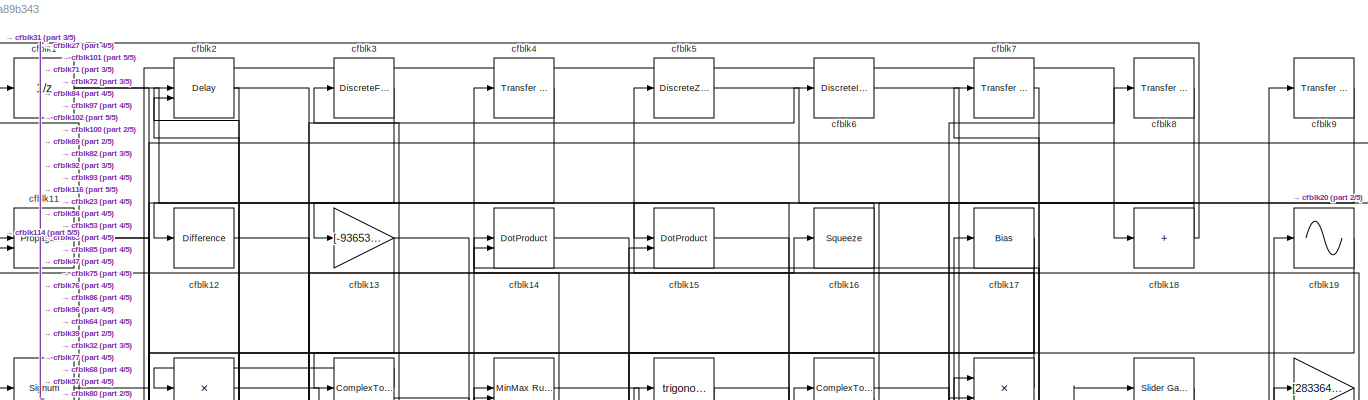
[diagram: root canvas - part 1/5, full width, top band]
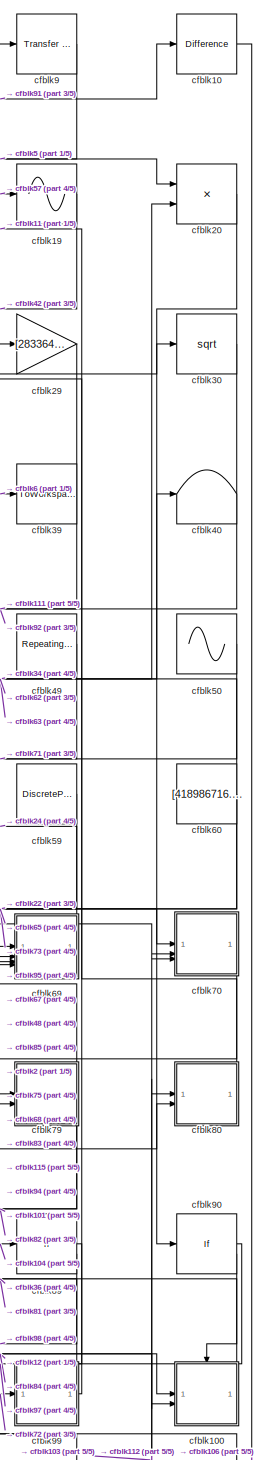
[diagram: root canvas - part 2/5, right side, full height]
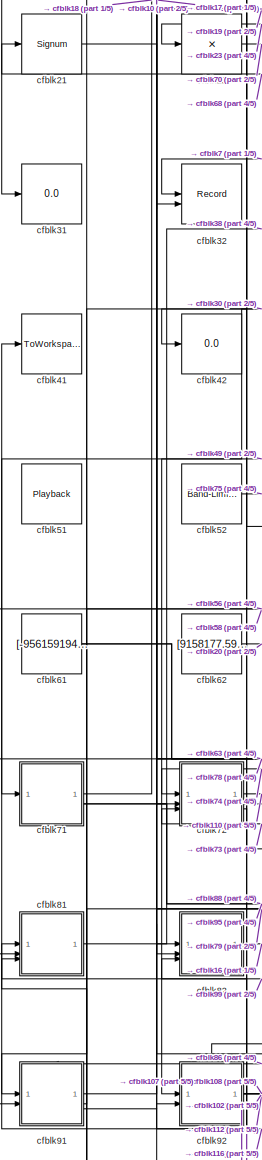
[diagram: root canvas - part 3/5, middle left region]
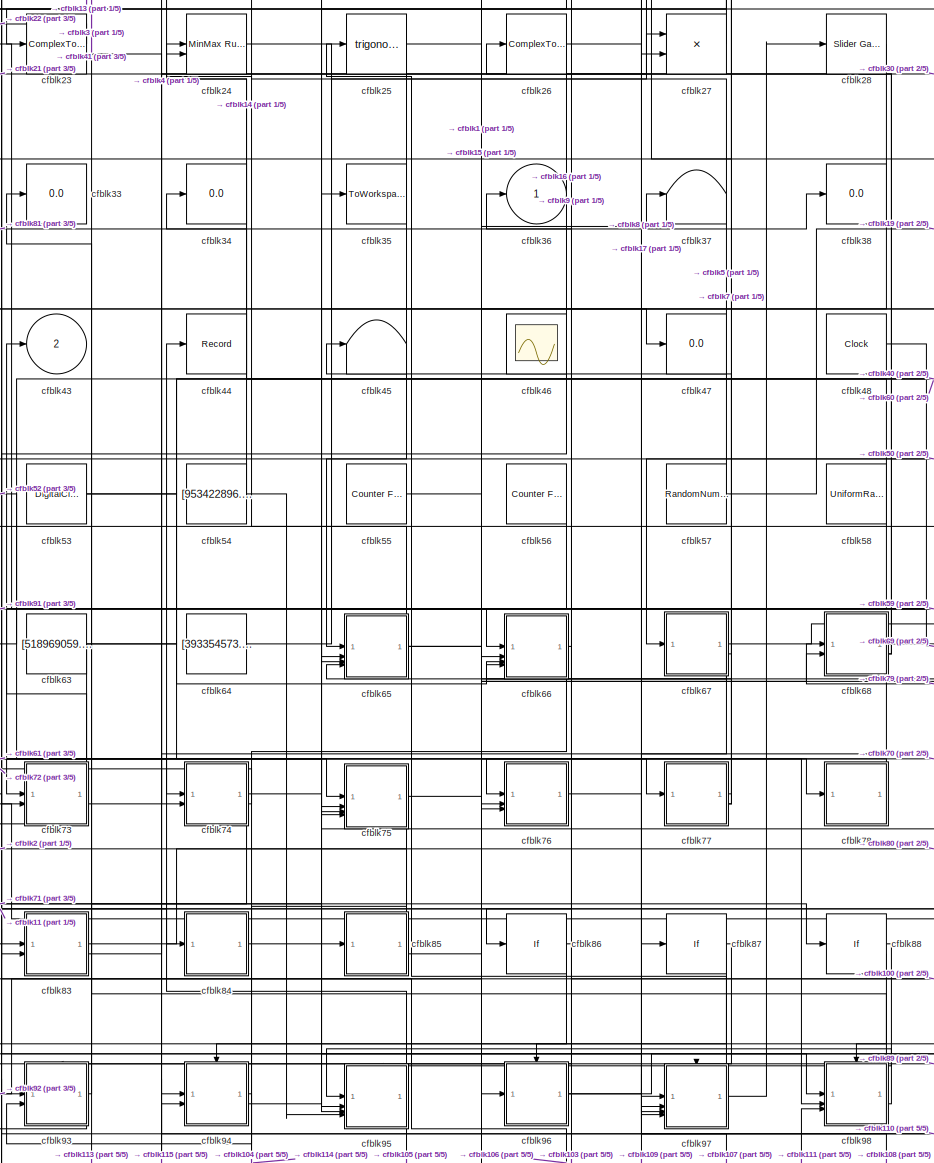
[diagram: root canvas - part 4/5, central region]
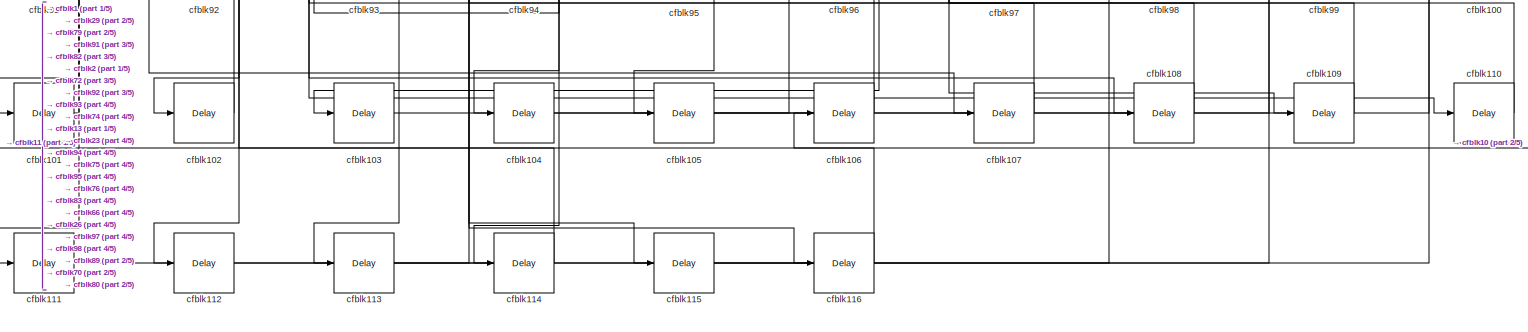
[diagram: root canvas - part 5/5, full width, bottom band]
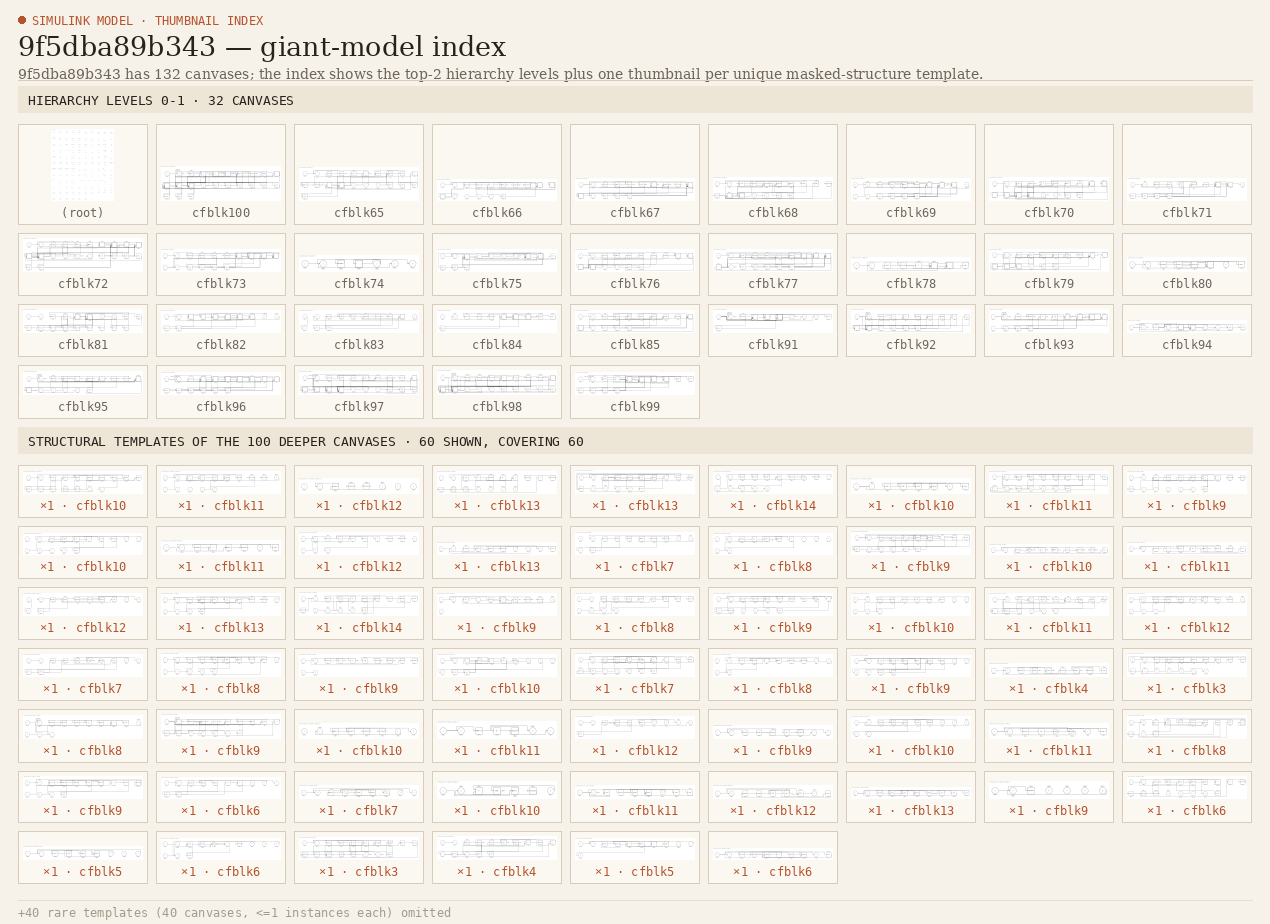
[diagram: thumbnail index - top-2 hierarchy levels (32 canvases) + 60 structural-template representatives of the remaining 100 canvases]
MODEL slx_9f5dba89b343
KIND model
CONFIG AbsTol = auto
CONFIG EnableMultiTasking = off
CONFIG FixedStep = auto
CONFIG MaxStep = auto
CONFIG MinStep = auto
CONFIG RelTol = 1e-3
CONFIG SampleTimeConstraint = Unconstrained
CONFIG SolverName = VariableStepAuto
CONFIG StartTime = 0.0
CONFIG StopTime = 10.0
BLOCK [UnitDelay] cfblk1
  HasFrameUpgradeWarning = on
BLOCK [Reference] cfblk10  REF=simulink/Discrete/Difference
  SourceBlock = simulink/Discrete/Difference
  SourceType = Difference
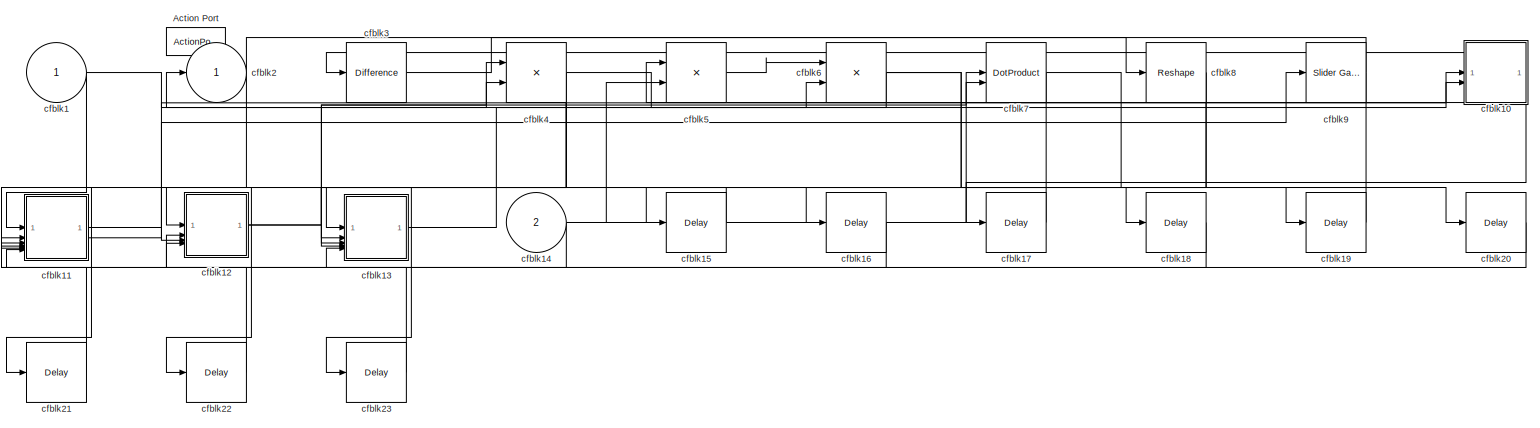
[diagram: cfblk100 - part 1/1, most of the canvas]
BLOCK [SubSystem] cfblk100
  TreatAsAtomicUnit = on
BLOCK [ActionPort] cfblk100/Action Port
  ActionPortLabel = else
BLOCK [Inport] cfblk100/cfblk1
BLOCK [SubSystem] cfblk100/cfblk10
BLOCK [Inport] cfblk100/cfblk10/cfblk1
BLOCK [Reference] cfblk100/cfblk10/cfblk10  REF=simulink/Math
Operations/MinMax
Running
Resettable
  SourceBlock = simulink/Math\nOperations/MinMax\nRunning\nResettable
  SourceType = MinMax Running Resettable
BLOCK [Math] cfblk100/cfblk10/cfblk11
  Operator = transpose
BLOCK [Constant] cfblk100/cfblk10/cfblk12
  SampleTime = 1
  Value = [636761665.784552]
BLOCK [Constant] cfblk100/cfblk10/cfblk13
  SampleTime = 1
  Value = [-211906745.955713]
BLOCK [Constant] cfblk100/cfblk10/cfblk14
  SampleTime = 1
  Value = [150860289.272291]
BLOCK [Constant] cfblk100/cfblk10/cfblk15
  SampleTime = 1
  Value = [368874745.790174]
BLOCK [Inport] cfblk100/cfblk10/cfblk16
  Port = 2
BLOCK [Outport] cfblk100/cfblk10/cfblk17
  Port = 2
BLOCK [Outport] cfblk100/cfblk10/cfblk2
BLOCK [Delay] cfblk100/cfblk10/cfblk3
  InputPortMap = u0
BLOCK [Delay] cfblk100/cfblk10/cfblk4
  InputPortMap = u0,e6
  ShowEnablePort = on
BLOCK [Reference] cfblk100/cfblk10/cfblk5  REF=simulink/Discrete/Difference
  SourceBlock = simulink/Discrete/Difference
  SourceType = Difference
BLOCK [Reference] cfblk100/cfblk10/cfblk6  REF=slpidlib/PID Controller
  LibrarySourceBlock = simulink/Discrete/Discrete PID Controller
  SourceBlock = slpidlib/PID Controller
  SourceType = PID 1dof
BLOCK [Reference] cfblk100/cfblk10/cfblk7  REF=simulink/Discrete/Tapped Delay
  SourceBlock = simulink/Discrete/Tapped Delay
  SourceType = Tapped Delay Line
BLOCK [ComplexToRealImag] cfblk100/cfblk10/cfblk8
BLOCK [Reference] cfblk100/cfblk10/cfblk9  REF=simulink/Math
Operations/Slider
Gain
  SourceBlock = simulink/Math\nOperations/Slider\nGain
  SourceType = Slider Gain
BLOCK [SubSystem] cfblk100/cfblk11
BLOCK [Inport] cfblk100/cfblk11/cfblk1
BLOCK [Inport] cfblk100/cfblk11/cfblk10
  Port = 2
BLOCK [Inport] cfblk100/cfblk11/cfblk11
  Port = 3
BLOCK [Inport] cfblk100/cfblk11/cfblk12
  Port = 4
BLOCK [Inport] cfblk100/cfblk11/cfblk13
  Port = 5
BLOCK [Inport] cfblk100/cfblk11/cfblk14
  Port = 6
BLOCK [Outport] cfblk100/cfblk11/cfblk15
  Port = 2
BLOCK [Outport] cfblk100/cfblk11/cfblk2
BLOCK [Product] cfblk100/cfblk11/cfblk3
  Inputs = **
BLOCK [Sum] cfblk100/cfblk11/cfblk4
  IconShape = rectangular
  Inputs = +-
BLOCK [Polyval] cfblk100/cfblk11/cfblk5
  Coefs = [ +2.081618890e-019, -1.441693666e-014, +4.719686976e-010, -8.536869453e-006, +1.621573104e-001, -8.087801117e+001 ]
BLOCK [Assignment] cfblk100/cfblk11/cfblk6
  DiagnosticForDimensions = Warning
  IndexOptions = Index vector (dialog)
  Indices = 1
  OutputSizes = 1
BLOCK [PermuteDimensions] cfblk100/cfblk11/cfblk7
BLOCK [Constant] cfblk100/cfblk11/cfblk8
  SampleTime = 1
  Value = [971807182.995786]
BLOCK [Constant] cfblk100/cfblk11/cfblk9
  SampleTime = 1
  Value = [534137876.527184]
BLOCK [SubSystem] cfblk100/cfblk12
BLOCK [Inport] cfblk100/cfblk12/cfblk1
BLOCK [Outport] cfblk100/cfblk12/cfblk2
BLOCK [MinMax] cfblk100/cfblk12/cfblk3
BLOCK [Constant] cfblk100/cfblk12/cfblk4
  SampleTime = 1
  Value = [120528931.292564]
BLOCK [Constant] cfblk100/cfblk12/cfblk5
  SampleTime = 1
  Value = [473078262.944689]
BLOCK [Inport] cfblk100/cfblk12/cfblk6
  Port = 2
BLOCK [Inport] cfblk100/cfblk12/cfblk7
  Port = 3
BLOCK [Inport] cfblk100/cfblk12/cfblk8
  Port = 4
BLOCK [SubSystem] cfblk100/cfblk13
BLOCK [Inport] cfblk100/cfblk13/cfblk1
BLOCK [Constant] cfblk100/cfblk13/cfblk10
  SampleTime = 1
  Value = [-106226316.947558]
BLOCK [Constant] cfblk100/cfblk13/cfblk11
  SampleTime = 1
  Value = [-816921342.665887]
BLOCK [Constant] cfblk100/cfblk13/cfblk12
  SampleTime = 1
  Value = [662496764.095145]
BLOCK [Constant] cfblk100/cfblk13/cfblk13
  SampleTime = 1
  Value = [-996755298.723096]
BLOCK [Inport] cfblk100/cfblk13/cfblk14
  Port = 2
BLOCK [Inport] cfblk100/cfblk13/cfblk15
  Port = 3
BLOCK [Inport] cfblk100/cfblk13/cfblk16
  Port = 4
BLOCK [Inport] cfblk100/cfblk13/cfblk17
  Port = 5
BLOCK [Outport] cfblk100/cfblk13/cfblk2
BLOCK [Bias] cfblk100/cfblk13/cfblk3
  Bias = [632524479.688455]
  SaturateOnIntegerOverflow = off
BLOCK [Abs] cfblk100/cfblk13/cfblk4
  SaturateOnIntegerOverflow = off
BLOCK [PermuteDimensions] cfblk100/cfblk13/cfblk5
BLOCK [Abs] cfblk100/cfblk13/cfblk6
  SaturateOnIntegerOverflow = off
BLOCK [Sum] cfblk100/cfblk13/cfblk7
  IconShape = rectangular
  Inputs = +-
BLOCK [Rounding] cfblk100/cfblk13/cfblk8
BLOCK [Product] cfblk100/cfblk13/cfblk9
  Inputs = *
BLOCK [Inport] cfblk100/cfblk14
  Port = 2
BLOCK [Delay] cfblk100/cfblk15
  InputPortMap = u0
BLOCK [Delay] cfblk100/cfblk16
  InputPortMap = u0
BLOCK [Delay] cfblk100/cfblk17
  InputPortMap = u0
BLOCK [Delay] cfblk100/cfblk18
  InputPortMap = u0
BLOCK [Delay] cfblk100/cfblk19
  InputPortMap = u0
BLOCK [Outport] cfblk100/cfblk2
BLOCK [Delay] cfblk100/cfblk20
  InputPortMap = u0
BLOCK [Delay] cfblk100/cfblk21
  InputPortMap = u0
BLOCK [Delay] cfblk100/cfblk22
  InputPortMap = u0
BLOCK [Delay] cfblk100/cfblk23
  InputPortMap = u0
BLOCK [Reference] cfblk100/cfblk3  REF=simulink/Discrete/Difference
  SourceBlock = simulink/Discrete/Difference
  SourceType = Difference
BLOCK [Product] cfblk100/cfblk4
  Inputs = **
BLOCK [Product] cfblk100/cfblk5
BLOCK [Product] cfblk100/cfblk6
BLOCK [DotProduct] cfblk100/cfblk7
  OutDataTypeStr = Inherit: Inherit via internal rule
BLOCK [Reshape] cfblk100/cfblk8
BLOCK [Reference] cfblk100/cfblk9  REF=simulink/Math
Operations/Slider
Gain
  SourceBlock = simulink/Math\nOperations/Slider\nGain
  SourceType = Slider Gain
BLOCK [Delay] cfblk101
  InputPortMap = u0
  SampleTime = 1
BLOCK [Delay] cfblk102
  InputPortMap = u0
  SampleTime = 1
BLOCK [Delay] cfblk103
  InputPortMap = u0
  SampleTime = 1
BLOCK [Delay] cfblk104
  InputPortMap = u0
  SampleTime = 1
BLOCK [Delay] cfblk105
  InputPortMap = u0
  SampleTime = 1
BLOCK [Delay] cfblk106
  InputPortMap = u0
  SampleTime = 1
BLOCK [Delay] cfblk107
  InputPortMap = u0
  SampleTime = 1
BLOCK [Delay] cfblk108
  InputPortMap = u0
  SampleTime = 1
BLOCK [Delay] cfblk109
  InputPortMap = u0
  SampleTime = 1
BLOCK [PropagationDelay] cfblk11
  SampleTime = 1
BLOCK [Delay] cfblk110
  InputPortMap = u0
  SampleTime = 1
BLOCK [Delay] cfblk111
  InputPortMap = u0
  SampleTime = 1
BLOCK [Delay] cfblk112
  InputPortMap = u0
  SampleTime = 1
BLOCK [Delay] cfblk113
  InputPortMap = u0
  SampleTime = 1
BLOCK [Delay] cfblk114
  InputPortMap = u0
  SampleTime = 1
BLOCK [Delay] cfblk115
  InputPortMap = u0
  SampleTime = 1
BLOCK [Delay] cfblk116
  InputPortMap = u0
  SampleTime = 1
BLOCK [Reference] cfblk12  REF=simulink/Discrete/Difference
  SourceBlock = simulink/Discrete/Difference
  SourceType = Difference
BLOCK [Gain] cfblk13
  Gain = [-936539405.495449]
BLOCK [DotProduct] cfblk14
  OutDataTypeStr = Inherit: Inherit via internal rule
BLOCK [DotProduct] cfblk15
  OutDataTypeStr = Inherit: Inherit via internal rule
BLOCK [Squeeze] cfblk16
BLOCK [Bias] cfblk17
  Bias = [215482398.943548]
  SaturateOnIntegerOverflow = off
BLOCK [Sum] cfblk18
  IconShape = rectangular
  Inputs = +
BLOCK [Sin] cfblk19
  SampleTime = 0
  TimeSource = Use external signal
BLOCK [Delay] cfblk2
  DelayLengthSource = Input port
  InputPortMap = u0,p1
  SampleTime = 1
BLOCK [Product] cfblk20
  Inputs = **
BLOCK [Signum] cfblk21
BLOCK [Product] cfblk22
  Inputs = *
BLOCK [ComplexToMagnitudeAngle] cfblk23
BLOCK [Reference] cfblk24  REF=simulink/Math
Operations/MinMax
Running
Resettable
  SourceBlock = simulink/Math\nOperations/MinMax\nRunning\nResettable
  SourceType = MinMax Running Resettable
BLOCK [Trigonometry] cfblk25
BLOCK [ComplexToRealImag] cfblk26
BLOCK [Product] cfblk27
  Inputs = **
BLOCK [Reference] cfblk28  REF=simulink/Math
Operations/Slider
Gain
  SourceBlock = simulink/Math\nOperations/Slider\nGain
  SourceType = Slider Gain
BLOCK [Gain] cfblk29
  Gain = [28336415.487357]
BLOCK [DiscreteFilter] cfblk3
  InputPortMap = u0
  SampleTime = 1
BLOCK [Sqrt] cfblk30
BLOCK [Display] cfblk31
  Decimation = 1
BLOCK [Record] cfblk32
  CompatibilityTag = XY
  FileSettingsInternal = {"entries":[{"content":{"excelSettings":{"content":{},"type":"Streamout.ExcelSettings"}},"type":"Streamout.FileSettingStorage","uuid":""}],"packageUris":["http:\/\/schema.mathworks.com\/mf0\/streamout_blocks\/R2020a"],"version":"1.0"}
  Layout = [1 1]
  SignalsInternal = {"entries":[{"content":{"signals":[{"content":{"blockPath":[],"dimensions":[1],"domain":"","lineColor":"#a2142f","plots":[1],"port":1,"signalID":333,"signalName":"XY Graph:1"},"type":"RecordBlkView.Signal","uuid":""},{"content":{"blockPath":[],"dimensions":[1],"domain":"","lineColor":"#139fff","plots":[1],"port":2,"signalID":336,"signalName":"XY Graph:2"},"type":"RecordBlkView.Signal","uuid":""}]}...<+144ch>
  VisualizationBindings = {"xyplotplugin":{"info":[{"series":[{"bindingParametersList":[{"parameter":"X-Axis","signalID":333,"signalName":"XY Graph:1"},{"parameter":"Y-Axis","signalID":336,"signalName":"XY Graph:2"}],"seriesID":1381}],"subplotID":1}]}}
BLOCK [Display] cfblk33
  Decimation = 1
BLOCK [Display] cfblk34
  Decimation = 1
BLOCK [ToWorkspace] cfblk35
  FixptAsFi = on
  MaxDataPoints = inf
  SampleTime = -1
  SaveFormat = Timeseries
  VariableName = qvkohrc
BLOCK [Outport] cfblk36
BLOCK [Terminator] cfblk37
BLOCK [Display] cfblk38
  Decimation = 1
BLOCK [ToWorkspace] cfblk39
  FixptAsFi = on
  MaxDataPoints = inf
  SampleTime = -1
  SaveFormat = Timeseries
  VariableName = rimrngn
BLOCK [Reference] cfblk4  REF=simulink/Discrete/Transfer Fcn
Lead or Lag
  SourceBlock = simulink/Discrete/Transfer Fcn\nLead or Lag
  SourceType = Lead or Lag Compensator
BLOCK [Terminator] cfblk40
BLOCK [ToWorkspace] cfblk41
  FixptAsFi = on
  MaxDataPoints = inf
  SampleTime = -1
  SaveFormat = Timeseries
  VariableName = qsecuhp
BLOCK [Display] cfblk42
  Decimation = 1
BLOCK [Outport] cfblk43
  Port = 2
BLOCK [Record] cfblk44
  FileSettingsInternal = {"entries":[{"content":{"excelSettings":{"content":{},"type":"Streamout.ExcelSettings"}},"type":"Streamout.FileSettingStorage","uuid":""}],"packageUris":["http:\/\/schema.mathworks.com\/mf0\/streamout_blocks\/R2020a"],"version":"1.0"}
  SignalsInternal = {"entries":[{"content":{},"type":"RecordBlkView.InputSignals","uuid":""}],"packageUris":["http:\/\/schema.mathworks.com\/mf0\/streamout_blocks\/R2020a"],"version":"1.0"}
  VisualizationBindings = {"sparklinesplugin":{"info":[{"bindingParametersList":[],"subplotID":1}]}}
BLOCK [Terminator] cfblk45
BLOCK [Scope] cfblk46
  Floating = on
  NumInputPorts = 1
BLOCK [Display] cfblk47
  Decimation = 1
BLOCK [Clock] cfblk48
BLOCK [Reference] cfblk49  REF=simulink/Sources/Repeating
Sequence
Interpolated
  SourceBlock = simulink/Sources/Repeating\nSequence\nInterpolated
  SourceType = Repeating Sequence Interpolated
BLOCK [DiscreteZeroPole] cfblk5
  Gain = 1
  Poles = [0 0.5]
BLOCK [Sin] cfblk50
  Amplitude = [622397523.758489]
  Bias = [68547005.057914]
  SampleTime = 0
BLOCK [Playback] cfblk51
  NumPorts = 0
  PartName = a58537c8-2575-4d09-a253-a483c26d3aa4
BLOCK [Reference] cfblk52  REF=simulink/Sources/Band-Limited
White Noise
  SourceBlock = simulink/Sources/Band-Limited\nWhite Noise
  SourceType = Band-Limited White Noise.
BLOCK [DigitalClock] cfblk53
BLOCK [Constant] cfblk54
  SampleTime = 1
  Value = [953422896.119423]
BLOCK [Reference] cfblk55  REF=simulink/Sources/Counter
Free-Running
  SourceBlock = simulink/Sources/Counter\nFree-Running
  SourceType = Counter Free-Running
BLOCK [Reference] cfblk56  REF=simulink/Sources/Counter
Free-Running
  SourceBlock = simulink/Sources/Counter\nFree-Running
  SourceType = Counter Free-Running
BLOCK [RandomNumber] cfblk57
  Mean = [27099.703573]
  SampleTime = 0.1
  Seed = [492554018.000000]
  Variance = [54296.355318]
BLOCK [UniformRandomNumber] cfblk58
  Maximum = [6087892347.861098]
  Minimum = [-5476740076.138133]
  SampleTime = 0.1
  Seed = [38639628.000000]
BLOCK [DiscretePulseGenerator] cfblk59
  Amplitude = [-963513943.362810]
  Period = [45867571.560506]
  PhaseDelay = [2.000000]
  PulseType = Time based
  PulseWidth = 5
BLOCK [DiscreteIntegrator] cfblk6
  ICPrevOutput = DiscIntNeverNeededParam
  ICPrevScaledInput = DiscIntNeverNeededParam
  InitialConditionSetting = Auto
BLOCK [Constant] cfblk60
  SampleTime = 1
  Value = [418986716.376509]
BLOCK [Constant] cfblk61
  SampleTime = 1
  Value = [-956159194.166770]
BLOCK [Constant] cfblk62
  SampleTime = 1
  Value = [9158177.599742]
BLOCK [Constant] cfblk63
  SampleTime = 1
  Value = [518969059.614273]
BLOCK [Constant] cfblk64
  SampleTime = 1
  Value = [393354573.265745]
BLOCK [SubSystem] cfblk65
BLOCK [Inport] cfblk65/cfblk1
BLOCK [Product] cfblk65/cfblk10
BLOCK [DotProduct] cfblk65/cfblk11
  OutDataTypeStr = Inherit: Inherit via internal rule
BLOCK [Constant] cfblk65/cfblk12
  SampleTime = 1
  Value = [674418696.266429]
BLOCK [SubSystem] cfblk65/cfblk13
BLOCK [Inport] cfblk65/cfblk13/cfblk1
BLOCK [Gain] cfblk65/cfblk13/cfblk10
  Gain = [31942379.189756]
BLOCK [MinMax] cfblk65/cfblk13/cfblk11
  Inputs = 2
BLOCK [Inport] cfblk65/cfblk13/cfblk12
  Port = 2
BLOCK [Inport] cfblk65/cfblk13/cfblk13
  Port = 3
BLOCK [Outport] cfblk65/cfblk13/cfblk14
  Port = 2
BLOCK [Outport] cfblk65/cfblk13/cfblk15
  Port = 3
BLOCK [Delay] cfblk65/cfblk13/cfblk16
  InputPortMap = u0
  SampleTime = 1
BLOCK [Outport] cfblk65/cfblk13/cfblk2
BLOCK [Delay] cfblk65/cfblk13/cfblk3
  DelayLengthSource = Input port
  InputPortMap = u0,p1
  SampleTime = 1
BLOCK [PropagationDelay] cfblk65/cfblk13/cfblk4
  SampleTime = 1
BLOCK [DiscreteStateSpace] cfblk65/cfblk13/cfblk5
BLOCK [UnitDelay] cfblk65/cfblk13/cfblk6
  HasFrameUpgradeWarning = on
BLOCK [Reference] cfblk65/cfblk13/cfblk7  REF=slpidlib/PID Controller
  LibrarySourceBlock = simulink/Discrete/Discrete PID Controller
  SourceBlock = slpidlib/PID Controller
  SourceType = PID 1dof
BLOCK [Sum] cfblk65/cfblk13/cfblk8
  Inputs = |++
BLOCK [Sqrt] cfblk65/cfblk13/cfblk9
BLOCK [SubSystem] cfblk65/cfblk14
BLOCK [Inport] cfblk65/cfblk14/cfblk1
BLOCK [Inport] cfblk65/cfblk14/cfblk10
  Port = 2
BLOCK [Inport] cfblk65/cfblk14/cfblk11
  Port = 3
BLOCK [Inport] cfblk65/cfblk14/cfblk12
  Port = 4
BLOCK [Outport] cfblk65/cfblk14/cfblk13
  Port = 2
BLOCK [Outport] cfblk65/cfblk14/cfblk14
  Port = 3
BLOCK [Outport] cfblk65/cfblk14/cfblk15
  Port = 4
BLOCK [Outport] cfblk65/cfblk14/cfblk2
BLOCK [Reference] cfblk65/cfblk14/cfblk3  REF=slpidlib/PID Controller
  LibrarySourceBlock = simulink/Discrete/Discrete PID Controller
  SourceBlock = slpidlib/PID Controller
  SourceType = PID 1dof
BLOCK [Reference] cfblk65/cfblk14/cfblk4  REF=simulink/Discrete/Transfer Fcn
First Order
  SourceBlock = simulink/Discrete/Transfer Fcn\nFirst Order
  SourceType = First Order Transfer Fcn
BLOCK [DiscreteTransferFcn] cfblk65/cfblk14/cfblk5
  InputPortMap = u0
  SampleTime = 1
BLOCK [Delay] cfblk65/cfblk14/cfblk6
  InputPortMap = u0,e6
  SampleTime = 1
  ShowEnablePort = on
BLOCK [Reference] cfblk65/cfblk14/cfblk7  REF=simulink/Discrete/Transfer Fcn
First Order
  SourceBlock = simulink/Discrete/Transfer Fcn\nFirst Order
  SourceType = First Order Transfer Fcn
BLOCK [Gain] cfblk65/cfblk14/cfblk8
  Gain = [-907888824.165032]
BLOCK [Constant] cfblk65/cfblk14/cfblk9
  SampleTime = 1
  Value = [263984584.005114]
BLOCK [Inport] cfblk65/cfblk15
  Port = 2
BLOCK [Inport] cfblk65/cfblk16
  Port = 3
BLOCK [Inport] cfblk65/cfblk17
  Port = 4
BLOCK [Delay] cfblk65/cfblk18
  InputPortMap = u0
  SampleTime = 1
BLOCK [Delay] cfblk65/cfblk19
  InputPortMap = u0
  SampleTime = 1
BLOCK [Outport] cfblk65/cfblk2
BLOCK [Delay] cfblk65/cfblk20
  InputPortMap = u0
  SampleTime = 1
BLOCK [Delay] cfblk65/cfblk21
  InputPortMap = u0
  SampleTime = 1
BLOCK [Reference] cfblk65/cfblk3  REF=simulink/Discrete/Transfer Fcn
First Order
  SourceBlock = simulink/Discrete/Transfer Fcn\nFirst Order
  SourceType = First Order Transfer Fcn
BLOCK [Reference] cfblk65/cfblk4  REF=simulink/Discrete/Transfer Fcn
Real Zero
  SourceBlock = simulink/Discrete/Transfer Fcn\nReal Zero
  SourceType = Transfer Fcn Real Zero
BLOCK [Bias] cfblk65/cfblk5
  Bias = [337448912.234430]
  SaturateOnIntegerOverflow = off
BLOCK [Sum] cfblk65/cfblk6
  IconShape = rectangular
  Inputs = +
BLOCK [MinMax] cfblk65/cfblk7
  Inputs = 2
BLOCK [DotProduct] cfblk65/cfblk8
  OutDataTypeStr = Inherit: Inherit via internal rule
BLOCK [Polyval] cfblk65/cfblk9
  Coefs = [ +2.081618890e-019, -1.441693666e-014, +4.719686976e-010, -8.536869453e-006, +1.621573104e-001, -8.087801117e+001 ]
BLOCK [SubSystem] cfblk66
BLOCK [Inport] cfblk66/cfblk1
BLOCK [SubSystem] cfblk66/cfblk10
BLOCK [Inport] cfblk66/cfblk10/cfblk1
BLOCK [Outport] cfblk66/cfblk10/cfblk2
BLOCK [Delay] cfblk66/cfblk10/cfblk3
  InputPortMap = u0
  SampleTime = 1
BLOCK [Sqrt] cfblk66/cfblk10/cfblk4
BLOCK [Math] cfblk66/cfblk10/cfblk5
  Operator = conj
BLOCK [Reference] cfblk66/cfblk10/cfblk6  REF=simulink/Math
Operations/MinMax
Running
Resettable
  SourceBlock = simulink/Math\nOperations/MinMax\nRunning\nResettable
  SourceType = MinMax Running Resettable
BLOCK [Outport] cfblk66/cfblk10/cfblk7
  Port = 2
BLOCK [Delay] cfblk66/cfblk10/cfblk8
  InputPortMap = u0
  SampleTime = 1
BLOCK [SubSystem] cfblk66/cfblk11
BLOCK [Inport] cfblk66/cfblk11/cfblk1
BLOCK [Sqrt] cfblk66/cfblk11/cfblk10
BLOCK [Product] cfblk66/cfblk11/cfblk11
BLOCK [Sum] cfblk66/cfblk11/cfblk12
  Inputs = |++
BLOCK [Rounding] cfblk66/cfblk11/cfblk13
BLOCK [Outport] cfblk66/cfblk11/cfblk14
  Port = 2
BLOCK [Outport] cfblk66/cfblk11/cfblk15
  Port = 3
BLOCK [Outport] cfblk66/cfblk11/cfblk16
  Port = 4
BLOCK [Delay] cfblk66/cfblk11/cfblk17
  InputPortMap = u0
  SampleTime = 1
BLOCK [Outport] cfblk66/cfblk11/cfblk2
BLOCK [PropagationDelay] cfblk66/cfblk11/cfblk3
  SampleTime = 1
BLOCK [DiscreteFilter] cfblk66/cfblk11/cfblk4
  InputPortMap = u0
  SampleTime = 1
BLOCK [Reference] cfblk66/cfblk11/cfblk5  REF=simulink/Discrete/Transfer Fcn
Real Zero
  SourceBlock = simulink/Discrete/Transfer Fcn\nReal Zero
  SourceType = Transfer Fcn Real Zero
BLOCK [Reference] cfblk66/cfblk11/cfblk6  REF=simulink/Discrete/Transfer Fcn
First Order
  SourceBlock = simulink/Discrete/Transfer Fcn\nFirst Order
  SourceType = First Order Transfer Fcn
BLOCK [Sqrt] cfblk66/cfblk11/cfblk7
BLOCK [Reshape] cfblk66/cfblk11/cfblk8
BLOCK [Product] cfblk66/cfblk11/cfblk9
  Inputs = *
BLOCK [Inport] cfblk66/cfblk12
  Port = 2
BLOCK [Inport] cfblk66/cfblk13
  Port = 3
BLOCK [Inport] cfblk66/cfblk14
  Port = 4
BLOCK [Outport] cfblk66/cfblk15
  Port = 2
BLOCK [Delay] cfblk66/cfblk16
  InputPortMap = u0
  SampleTime = 1
BLOCK [Outport] cfblk66/cfblk2
BLOCK [PropagationDelay] cfblk66/cfblk3
  SampleTime = 1
BLOCK [ComplexToRealImag] cfblk66/cfblk4
BLOCK [Product] cfblk66/cfblk5
  Inputs = *
BLOCK [Trigonometry] cfblk66/cfblk6
BLOCK [Constant] cfblk66/cfblk7
  SampleTime = 1
  Value = [628183486.568107]
BLOCK [Constant] cfblk66/cfblk8
  SampleTime = 1
  Value = [532735345.573752]
BLOCK [SubSystem] cfblk66/cfblk9
BLOCK [Inport] cfblk66/cfblk9/cfblk1
BLOCK [Constant] cfblk66/cfblk9/cfblk10
  SampleTime = 1
  Value = [-598054874.618713]
BLOCK [Constant] cfblk66/cfblk9/cfblk11
  SampleTime = 1
  Value = [-182307291.985765]
BLOCK [Inport] cfblk66/cfblk9/cfblk12
  Port = 2
BLOCK [Inport] cfblk66/cfblk9/cfblk13
  Port = 3
BLOCK [Inport] cfblk66/cfblk9/cfblk14
  Port = 4
BLOCK [Inport] cfblk66/cfblk9/cfblk15
  Port = 5
BLOCK [Outport] cfblk66/cfblk9/cfblk16
  Port = 2
BLOCK [Delay] cfblk66/cfblk9/cfblk17
  InputPortMap = u0
  SampleTime = 1
BLOCK [Outport] cfblk66/cfblk9/cfblk2
BLOCK [Delay] cfblk66/cfblk9/cfblk3
  DelayLengthSource = Input port
  InputPortMap = u0,p1
  SampleTime = 1
BLOCK [DiscreteStateSpace] cfblk66/cfblk9/cfblk4
BLOCK [Sqrt] cfblk66/cfblk9/cfblk5
BLOCK [Math] cfblk66/cfblk9/cfblk6
  Operator = magnitude^2
BLOCK [Product] cfblk66/cfblk9/cfblk7
  Inputs = **
BLOCK [Sum] cfblk66/cfblk9/cfblk8
  IconShape = rectangular
  Inputs = -+
BLOCK [Constant] cfblk66/cfblk9/cfblk9
  SampleTime = 1
  Value = [-430698735.578265]
BLOCK [SubSystem] cfblk67
BLOCK [Inport] cfblk67/cfblk1
BLOCK [SubSystem] cfblk67/cfblk10
BLOCK [Inport] cfblk67/cfblk10/cfblk1
BLOCK [Inport] cfblk67/cfblk10/cfblk10
  Port = 3
BLOCK [Inport] cfblk67/cfblk10/cfblk11
  Port = 4
BLOCK [Inport] cfblk67/cfblk10/cfblk12
  Port = 5
BLOCK [Outport] cfblk67/cfblk10/cfblk13
  Port = 2
BLOCK [Outport] cfblk67/cfblk10/cfblk14
  Port = 3
BLOCK [Delay] cfblk67/cfblk10/cfblk15
  InputPortMap = u0
  SampleTime = 1
BLOCK [Outport] cfblk67/cfblk10/cfblk2
BLOCK [DiscreteFilter] cfblk67/cfblk10/cfblk3
  InputPortMap = u0
  SampleTime = 1
BLOCK [Sqrt] cfblk67/cfblk10/cfblk4
BLOCK [Sum] cfblk67/cfblk10/cfblk5
  IconShape = rectangular
  Inputs = +-
BLOCK [Product] cfblk67/cfblk10/cfblk6
  Inputs = *
BLOCK [Polyval] cfblk67/cfblk10/cfblk7
  Coefs = [ +2.081618890e-019, -1.441693666e-014, +4.719686976e-010, -8.536869453e-006, +1.621573104e-001, -8.087801117e+001 ]
BLOCK [Constant] cfblk67/cfblk10/cfblk8
  SampleTime = 1
  Value = [-479611448.539397]
BLOCK [Inport] cfblk67/cfblk10/cfblk9
  Port = 2
BLOCK [SubSystem] cfblk67/cfblk11
BLOCK [Inport] cfblk67/cfblk11/cfblk1
BLOCK [Outport] cfblk67/cfblk11/cfblk2
BLOCK [DiscreteFir] cfblk67/cfblk11/cfblk3
  InputPortMap = u0
  OutputPortMap = o0
  SampleTime = 1
BLOCK [Sum] cfblk67/cfblk11/cfblk4
  IconShape = rectangular
  Inputs = +
BLOCK [Trigonometry] cfblk67/cfblk11/cfblk5
BLOCK [Constant] cfblk67/cfblk11/cfblk6
  SampleTime = 1
  Value = [49582587.309329]
BLOCK [Inport] cfblk67/cfblk11/cfblk7
  Port = 2
BLOCK [Delay] cfblk67/cfblk11/cfblk8
  InputPortMap = u0
  SampleTime = 1
BLOCK [Outport] cfblk67/cfblk12
  Port = 2
BLOCK [Delay] cfblk67/cfblk13
  InputPortMap = u0
  SampleTime = 1
BLOCK [Delay] cfblk67/cfblk14
  InputPortMap = u0
  SampleTime = 1
BLOCK [Delay] cfblk67/cfblk15
  InputPortMap = u0
  SampleTime = 1
BLOCK [Outport] cfblk67/cfblk2
BLOCK [Reference] cfblk67/cfblk3  REF=simulink/Discrete/Tapped Delay
  SourceBlock = simulink/Discrete/Tapped Delay
  SourceType = Tapped Delay Line
BLOCK [Reference] cfblk67/cfblk4  REF=simulink/Discrete/Difference
  SourceBlock = simulink/Discrete/Difference
  SourceType = Difference
BLOCK [Reference] cfblk67/cfblk5  REF=simulink/Discrete/Transfer Fcn
Lead or Lag
  SourceBlock = simulink/Discrete/Transfer Fcn\nLead or Lag
  SourceType = Lead or Lag Compensator
BLOCK [Signum] cfblk67/cfblk6
BLOCK [Sum] cfblk67/cfblk7
  IconShape = rectangular
BLOCK [Reference] cfblk67/cfblk8  REF=simulink/Math
Operations/MinMax
Running
Resettable
  SourceBlock = simulink/Math\nOperations/MinMax\nRunning\nResettable
  SourceType = MinMax Running Resettable
BLOCK [Constant] cfblk67/cfblk9
  SampleTime = 1
  Value = [-707875031.415103]
BLOCK [SubSystem] cfblk68
BLOCK [Inport] cfblk68/cfblk1
BLOCK [Constant] cfblk68/cfblk10
  SampleTime = 1
  Value = [-460195986.517128]
BLOCK [Constant] cfblk68/cfblk11
  SampleTime = 1
  Value = [291746783.865006]
BLOCK [SubSystem] cfblk68/cfblk12
BLOCK [Inport] cfblk68/cfblk12/cfblk1
BLOCK [Inport] cfblk68/cfblk12/cfblk10
  Port = 2
BLOCK [Inport] cfblk68/cfblk12/cfblk11
  Port = 3
BLOCK [Inport] cfblk68/cfblk12/cfblk12
  Port = 4
BLOCK [Outport] cfblk68/cfblk12/cfblk13
  Port = 2
BLOCK [Outport] cfblk68/cfblk12/cfblk2
BLOCK [Reference] cfblk68/cfblk12/cfblk3  REF=simulink/Discrete/Transfer Fcn
Lead or Lag
  SourceBlock = simulink/Discrete/Transfer Fcn\nLead or Lag
  SourceType = Lead or Lag Compensator
BLOCK [UnitDelay] cfblk68/cfblk12/cfblk4
  HasFrameUpgradeWarning = on
BLOCK [Polyval] cfblk68/cfblk12/cfblk5
  Coefs = [ +2.081618890e-019, -1.441693666e-014, +4.719686976e-010, -8.536869453e-006, +1.621573104e-001, -8.087801117e+001 ]
BLOCK [Polyval] cfblk68/cfblk12/cfblk6
  Coefs = [ +2.081618890e-019, -1.441693666e-014, +4.719686976e-010, -8.536869453e-006, +1.621573104e-001, -8.087801117e+001 ]
BLOCK [Sum] cfblk68/cfblk12/cfblk7
  IconShape = rectangular
  Inputs = +
BLOCK [Constant] cfblk68/cfblk12/cfblk8
  SampleTime = 1
  Value = [-879986801.323946]
BLOCK [Constant] cfblk68/cfblk12/cfblk9
  SampleTime = 1
  Value = [-235399529.876834]
BLOCK [SubSystem] cfblk68/cfblk13
BLOCK [Inport] cfblk68/cfblk13/cfblk1
BLOCK [Delay] cfblk68/cfblk13/cfblk10
  InputPortMap = u0
  SampleTime = 1
BLOCK [Outport] cfblk68/cfblk13/cfblk2
BLOCK [DiscreteZeroPole] cfblk68/cfblk13/cfblk3
  Gain = 1
  Poles = [0 0.5]
BLOCK [Delay] cfblk68/cfblk13/cfblk4
  InputPortMap = u0,e6
  SampleTime = 1
  ShowEnablePort = on
BLOCK [Reference] cfblk68/cfblk13/cfblk5  REF=simulink/Math
Operations/MinMax
Running
Resettable
  SourceBlock = simulink/Math\nOperations/MinMax\nRunning\nResettable
  SourceType = MinMax Running Resettable
BLOCK [Constant] cfblk68/cfblk13/cfblk6
  SampleTime = 1
  Value = [-700906495.696172]
BLOCK [Inport] cfblk68/cfblk13/cfblk7
  Port = 2
BLOCK [Inport] cfblk68/cfblk13/cfblk8
  Port = 3
BLOCK [Outport] cfblk68/cfblk13/cfblk9
  Port = 2
BLOCK [Inport] cfblk68/cfblk14
  Port = 2
BLOCK [Outport] cfblk68/cfblk15
  Port = 2
BLOCK [Delay] cfblk68/cfblk16
  InputPortMap = u0
  SampleTime = 1
BLOCK [Delay] cfblk68/cfblk17
  InputPortMap = u0
  SampleTime = 1
BLOCK [Outport] cfblk68/cfblk2
BLOCK [Delay] cfblk68/cfblk3
  InputPortMap = u0,e6
  SampleTime = 1
  ShowEnablePort = on
BLOCK [Reference] cfblk68/cfblk4  REF=slpidlib/PID Controller
  LibrarySourceBlock = simulink/Discrete/Discrete PID Controller
  SourceBlock = slpidlib/PID Controller
  SourceType = PID 1dof
BLOCK [PropagationDelay] cfblk68/cfblk5
  SampleTime = 1
BLOCK [DotProduct] cfblk68/cfblk6
  OutDataTypeStr = Inherit: Inherit via internal rule
BLOCK [DotProduct] cfblk68/cfblk7
  OutDataTypeStr = Inherit: Inherit via internal rule
BLOCK [Sqrt] cfblk68/cfblk8
  AlgorithmType = Newton-Raphson
  Operator = rSqrt
BLOCK [Sqrt] cfblk68/cfblk9
  AlgorithmType = Newton-Raphson
  Operator = rSqrt
BLOCK [SubSystem] cfblk69
BLOCK [Inport] cfblk69/cfblk1
BLOCK [Inport] cfblk69/cfblk10
  Port = 2
BLOCK [Inport] cfblk69/cfblk11
  Port = 3
BLOCK [Inport] cfblk69/cfblk12
  Port = 4
BLOCK [Delay] cfblk69/cfblk13
  InputPortMap = u0
  SampleTime = 1
BLOCK [Delay] cfblk69/cfblk14
  InputPortMap = u0
  SampleTime = 1
BLOCK [Delay] cfblk69/cfblk15
  InputPortMap = u0
  SampleTime = 1
BLOCK [Delay] cfblk69/cfblk16
  InputPortMap = u0
  SampleTime = 1
BLOCK [Outport] cfblk69/cfblk2
BLOCK [Reference] cfblk69/cfblk3  REF=slpidlib/PID Controller
  LibrarySourceBlock = simulink/Discrete/Discrete PID Controller
  SourceBlock = slpidlib/PID Controller
  SourceType = PID 1dof
BLOCK [Math] cfblk69/cfblk4
  Operator = log
BLOCK [Trigonometry] cfblk69/cfblk5
BLOCK [UnaryMinus] cfblk69/cfblk6
BLOCK [SubSystem] cfblk69/cfblk7
BLOCK [Inport] cfblk69/cfblk7/cfblk1
BLOCK [Inport] cfblk69/cfblk7/cfblk10
  Port = 3
BLOCK [Outport] cfblk69/cfblk7/cfblk11
  Port = 2
BLOCK [Delay] cfblk69/cfblk7/cfblk12
  InputPortMap = u0
  SampleTime = 1
BLOCK [Outport] cfblk69/cfblk7/cfblk2
BLOCK [Reference] cfblk69/cfblk7/cfblk3  REF=simulink/Discrete/Transfer Fcn
Lead or Lag
  SourceBlock = simulink/Discrete/Transfer Fcn\nLead or Lag
  SourceType = Lead or Lag Compensator
BLOCK [Reference] cfblk69/cfblk7/cfblk4  REF=slpidlib/PID Controller
  LibrarySourceBlock = simulink/Discrete/Discrete PID Controller
  SourceBlock = slpidlib/PID Controller
  SourceType = PID 1dof
BLOCK [DiscreteStateSpace] cfblk69/cfblk7/cfblk5
BLOCK [Reference] cfblk69/cfblk7/cfblk6  REF=simulink/Discrete/Difference
  SourceBlock = simulink/Discrete/Difference
  SourceType = Difference
BLOCK [Constant] cfblk69/cfblk7/cfblk7
  SampleTime = 1
  Value = [-812243381.082024]
BLOCK [Constant] cfblk69/cfblk7/cfblk8
  SampleTime = 1
  Value = [854735168.793008]
BLOCK [Inport] cfblk69/cfblk7/cfblk9
  Port = 2
BLOCK [SubSystem] cfblk69/cfblk8
BLOCK [Inport] cfblk69/cfblk8/cfblk1
BLOCK [Inport] cfblk69/cfblk8/cfblk10
  Port = 4
BLOCK [Inport] cfblk69/cfblk8/cfblk11
  Port = 5
BLOCK [Outport] cfblk69/cfblk8/cfblk12
  Port = 2
BLOCK [Outport] cfblk69/cfblk8/cfblk2
BLOCK [DiscreteIntegrator] cfblk69/cfblk8/cfblk3
  ICPrevOutput = DiscIntNeverNeededParam
  ICPrevScaledInput = DiscIntNeverNeededParam
  InitialConditionSetting = Auto
BLOCK [Abs] cfblk69/cfblk8/cfblk4
  SaturateOnIntegerOverflow = off
BLOCK [ComplexToRealImag] cfblk69/cfblk8/cfblk5
BLOCK [Reference] cfblk69/cfblk8/cfblk6  REF=simulink/Math
Operations/MinMax
Running
Resettable
  SourceBlock = simulink/Math\nOperations/MinMax\nRunning\nResettable
  SourceType = MinMax Running Resettable
BLOCK [Sum] cfblk69/cfblk8/cfblk7
  IconShape = rectangular
  Inputs = +
BLOCK [Inport] cfblk69/cfblk8/cfblk8
  Port = 2
BLOCK [Inport] cfblk69/cfblk8/cfblk9
  Port = 3
BLOCK [SubSystem] cfblk69/cfblk9
BLOCK [Inport] cfblk69/cfblk9/cfblk1
BLOCK [Sqrt] cfblk69/cfblk9/cfblk10
BLOCK [Math] cfblk69/cfblk9/cfblk11
  Operator = rem
BLOCK [Inport] cfblk69/cfblk9/cfblk12
  Port = 2
BLOCK [Outport] cfblk69/cfblk9/cfblk13
  Port = 2
BLOCK [Outport] cfblk69/cfblk9/cfblk14
  Port = 3
BLOCK [Delay] cfblk69/cfblk9/cfblk15
  InputPortMap = u0
  SampleTime = 1
BLOCK [Delay] cfblk69/cfblk9/cfblk16
  InputPortMap = u0
  SampleTime = 1
BLOCK [Outport] cfblk69/cfblk9/cfblk2
BLOCK [DiscreteZeroPole] cfblk69/cfblk9/cfblk3
  Gain = 1
  Poles = [0 0.5]
BLOCK [Delay] cfblk69/cfblk9/cfblk4
  InputPortMap = u0,e6
  SampleTime = 1
  ShowEnablePort = on
BLOCK [Sin] cfblk69/cfblk9/cfblk5
  SampleTime = 0
  TimeSource = Use external signal
BLOCK [DotProduct] cfblk69/cfblk9/cfblk6
  OutDataTypeStr = Inherit: Inherit via internal rule
BLOCK [Assignment] cfblk69/cfblk9/cfblk7
  DiagnosticForDimensions = Warning
  IndexOptions = Index vector (dialog)
  Indices = 1
  OutputSizes = 1
BLOCK [Sum] cfblk69/cfblk9/cfblk8
  Inputs = |++
BLOCK [ComplexToRealImag] cfblk69/cfblk9/cfblk9
BLOCK [Reference] cfblk7  REF=simulink/Discrete/Transfer Fcn
Real Zero
  SourceBlock = simulink/Discrete/Transfer Fcn\nReal Zero
  SourceType = Transfer Fcn Real Zero
BLOCK [SubSystem] cfblk70
BLOCK [Inport] cfblk70/cfblk1
BLOCK [SubSystem] cfblk70/cfblk10
BLOCK [Inport] cfblk70/cfblk10/cfblk1
BLOCK [Delay] cfblk70/cfblk10/cfblk10
  InputPortMap = u0
  SampleTime = 1
BLOCK [Outport] cfblk70/cfblk10/cfblk2
BLOCK [DiscreteZeroPole] cfblk70/cfblk10/cfblk3
  Gain = 1
  Poles = [0 0.5]
BLOCK [Gain] cfblk70/cfblk10/cfblk4
  Gain = [-404484764.544552]
BLOCK [Abs] cfblk70/cfblk10/cfblk5
  SaturateOnIntegerOverflow = off
BLOCK [Trigonometry] cfblk70/cfblk10/cfblk6
BLOCK [Signum] cfblk70/cfblk10/cfblk7
BLOCK [Constant] cfblk70/cfblk10/cfblk8
  SampleTime = 1
  Value = [-856759673.840609]
BLOCK [Constant] cfblk70/cfblk10/cfblk9
  SampleTime = 1
  Value = [63198389.932601]
BLOCK [SubSystem] cfblk70/cfblk11
BLOCK [Inport] cfblk70/cfblk11/cfblk1
BLOCK [Delay] cfblk70/cfblk11/cfblk10
  InputPortMap = u0
  SampleTime = 1
BLOCK [Outport] cfblk70/cfblk11/cfblk2
BLOCK [DiscreteStateSpace] cfblk70/cfblk11/cfblk3
BLOCK [Product] cfblk70/cfblk11/cfblk4
  Inputs = *
BLOCK [Polyval] cfblk70/cfblk11/cfblk5
  Coefs = [ +2.081618890e-019, -1.441693666e-014, +4.719686976e-010, -8.536869453e-006, +1.621573104e-001, -8.087801117e+001 ]
BLOCK [Abs] cfblk70/cfblk11/cfblk6
  SaturateOnIntegerOverflow = off
BLOCK [Trigonometry] cfblk70/cfblk11/cfblk7
BLOCK [Reference] cfblk70/cfblk11/cfblk8  REF=simulink/Math
Operations/Slider
Gain
  SourceBlock = simulink/Math\nOperations/Slider\nGain
  SourceType = Slider Gain
BLOCK [Constant] cfblk70/cfblk11/cfblk9
  SampleTime = 1
  Value = [326549079.533010]
BLOCK [SubSystem] cfblk70/cfblk12
BLOCK [Inport] cfblk70/cfblk12/cfblk1
BLOCK [Outport] cfblk70/cfblk12/cfblk10
  Port = 2
BLOCK [Outport] cfblk70/cfblk12/cfblk11
  Port = 3
BLOCK [Delay] cfblk70/cfblk12/cfblk12
  InputPortMap = u0
  SampleTime = 1
BLOCK [Outport] cfblk70/cfblk12/cfblk2
BLOCK [DiscreteStateSpace] cfblk70/cfblk12/cfblk3
BLOCK [Signum] cfblk70/cfblk12/cfblk4
BLOCK [PermuteDimensions] cfblk70/cfblk12/cfblk5
BLOCK [Signum] cfblk70/cfblk12/cfblk6
BLOCK [ComplexToMagnitudeAngle] cfblk70/cfblk12/cfblk7
BLOCK [Bias] cfblk70/cfblk12/cfblk8
  Bias = [316908285.865711]
  SaturateOnIntegerOverflow = off
BLOCK [Inport] cfblk70/cfblk12/cfblk9
  Port = 2
BLOCK [SubSystem] cfblk70/cfblk13
BLOCK [Inport] cfblk70/cfblk13/cfblk1
BLOCK [Inport] cfblk70/cfblk13/cfblk10
  Port = 2
BLOCK [Inport] cfblk70/cfblk13/cfblk11
  Port = 3
BLOCK [Inport] cfblk70/cfblk13/cfblk12
  Port = 4
BLOCK [Outport] cfblk70/cfblk13/cfblk13
  Port = 2
BLOCK [Delay] cfblk70/cfblk13/cfblk14
  InputPortMap = u0
  SampleTime = 1
BLOCK [Outport] cfblk70/cfblk13/cfblk2
BLOCK [Reference] cfblk70/cfblk13/cfblk3  REF=slpidlib/PID Controller
  LibrarySourceBlock = simulink/Discrete/Discrete PID Controller
  SourceBlock = slpidlib/PID Controller
  SourceType = PID 1dof
BLOCK [PropagationDelay] cfblk70/cfblk13/cfblk4
  SampleTime = 1
BLOCK [Delay] cfblk70/cfblk13/cfblk5
  InputPortMap = u0,e6
  SampleTime = 1
  ShowEnablePort = on
BLOCK [UnitDelay] cfblk70/cfblk13/cfblk6
  HasFrameUpgradeWarning = on
BLOCK [MinMax] cfblk70/cfblk13/cfblk7
  Inputs = 2
BLOCK [ComplexToMagnitudeAngle] cfblk70/cfblk13/cfblk8
BLOCK [Constant] cfblk70/cfblk13/cfblk9
  SampleTime = 1
  Value = [59318251.157664]
BLOCK [SubSystem] cfblk70/cfblk14
BLOCK [Inport] cfblk70/cfblk14/cfblk1
BLOCK [Sqrt] cfblk70/cfblk14/cfblk10
BLOCK [Constant] cfblk70/cfblk14/cfblk11
  SampleTime = 1
  Value = [160043659.324022]
BLOCK [Inport] cfblk70/cfblk14/cfblk12
  Port = 2
BLOCK [Inport] cfblk70/cfblk14/cfblk13
  Port = 3
BLOCK [Outport] cfblk70/cfblk14/cfblk14
  Port = 2
BLOCK [Outport] cfblk70/cfblk14/cfblk15
  Port = 3
BLOCK [Delay] cfblk70/cfblk14/cfblk16
  InputPortMap = u0
  SampleTime = 1
BLOCK [Outport] cfblk70/cfblk14/cfblk2
BLOCK [Reference] cfblk70/cfblk14/cfblk3  REF=simulink/Discrete/Difference
  SourceBlock = simulink/Discrete/Difference
  SourceType = Difference
BLOCK [Sin] cfblk70/cfblk14/cfblk4
  SampleTime = 0
  TimeSource = Use external signal
BLOCK [Abs] cfblk70/cfblk14/cfblk5
  SaturateOnIntegerOverflow = off
BLOCK [Math] cfblk70/cfblk14/cfblk6
  Operator = square
BLOCK [Reference] cfblk70/cfblk14/cfblk7  REF=simulink/Math
Operations/MinMax
Running
Resettable
  SourceBlock = simulink/Math\nOperations/MinMax\nRunning\nResettable
  SourceType = MinMax Running Resettable
BLOCK [ComplexToRealImag] cfblk70/cfblk14/cfblk8
BLOCK [PermuteDimensions] cfblk70/cfblk14/cfblk9
BLOCK [Inport] cfblk70/cfblk15
  Port = 2
BLOCK [Inport] cfblk70/cfblk16
  Port = 3
BLOCK [Delay] cfblk70/cfblk17
  InputPortMap = u0
  SampleTime = 1
BLOCK [Delay] cfblk70/cfblk18
  InputPortMap = u0
  SampleTime = 1
BLOCK [Outport] cfblk70/cfblk2
BLOCK [Delay] cfblk70/cfblk3
  InputPortMap = u0,e6
  SampleTime = 1
  ShowEnablePort = on
BLOCK [MinMax] cfblk70/cfblk4
BLOCK [Product] cfblk70/cfblk5
BLOCK [Assignment] cfblk70/cfblk6
  DiagnosticForDimensions = Warning
  IndexOptions = Index vector (dialog)
  Indices = 1
  OutputSizes = 1
BLOCK [Trigonometry] cfblk70/cfblk7
BLOCK [Sqrt] cfblk70/cfblk8
BLOCK [SubSystem] cfblk70/cfblk9
BLOCK [Inport] cfblk70/cfblk9/cfblk1
BLOCK [Inport] cfblk70/cfblk9/cfblk10
  Port = 2
BLOCK [Inport] cfblk70/cfblk9/cfblk11
  Port = 3
BLOCK [Outport] cfblk70/cfblk9/cfblk2
BLOCK [Abs] cfblk70/cfblk9/cfblk3
  SaturateOnIntegerOverflow = off
BLOCK [Sum] cfblk70/cfblk9/cfblk4
  Inputs = |++
BLOCK [ComplexToRealImag] cfblk70/cfblk9/cfblk5
BLOCK [Product] cfblk70/cfblk9/cfblk6
  Inputs = **
BLOCK [Bias] cfblk70/cfblk9/cfblk7
  Bias = [-665396221.822448]
  SaturateOnIntegerOverflow = off
BLOCK [Constant] cfblk70/cfblk9/cfblk8
  SampleTime = 1
  Value = [380681705.872159]
BLOCK [Constant] cfblk70/cfblk9/cfblk9
  SampleTime = 1
  Value = [228527759.416245]
BLOCK [SubSystem] cfblk71
BLOCK [Inport] cfblk71/cfblk1
BLOCK [Outport] cfblk71/cfblk10
  Port = 2
BLOCK [Delay] cfblk71/cfblk11
  InputPortMap = u0
  SampleTime = 1
BLOCK [Delay] cfblk71/cfblk12
  InputPortMap = u0
  SampleTime = 1
BLOCK [Delay] cfblk71/cfblk13
  InputPortMap = u0
  SampleTime = 1
BLOCK [Delay] cfblk71/cfblk14
  InputPortMap = u0
  SampleTime = 1
BLOCK [Outport] cfblk71/cfblk2
BLOCK [DiscreteIntegrator] cfblk71/cfblk3
  ICPrevOutput = DiscIntNeverNeededParam
  ICPrevScaledInput = DiscIntNeverNeededParam
  InitialConditionSetting = Auto
BLOCK [ComplexToRealImag] cfblk71/cfblk4
BLOCK [Sin] cfblk71/cfblk5
  SampleTime = 0
  TimeSource = Use external signal
BLOCK [DotProduct] cfblk71/cfblk6
  OutDataTypeStr = Inherit: Inherit via internal rule
BLOCK [UnaryMinus] cfblk71/cfblk7
BLOCK [SubSystem] cfblk71/cfblk8
BLOCK [Inport] cfblk71/cfblk8/cfblk1
BLOCK [Constant] cfblk71/cfblk8/cfblk10
  SampleTime = 1
  Value = [-521651722.869503]
BLOCK [Inport] cfblk71/cfblk8/cfblk11
  Port = 2
BLOCK [Inport] cfblk71/cfblk8/cfblk12
  Port = 3
BLOCK [Outport] cfblk71/cfblk8/cfblk13
  Port = 2
BLOCK [Outport] cfblk71/cfblk8/cfblk14
  Port = 3
BLOCK [Outport] cfblk71/cfblk8/cfblk2
BLOCK [Reference] cfblk71/cfblk8/cfblk3  REF=simulink/Discrete/Transfer Fcn
Real Zero
  SourceBlock = simulink/Discrete/Transfer Fcn\nReal Zero
  SourceType = Transfer Fcn Real Zero
BLOCK [Reference] cfblk71/cfblk8/cfblk4  REF=slpidlib/PID Controller
  LibrarySourceBlock = simulink/Discrete/Discrete PID Controller
  SourceBlock = slpidlib/PID Controller
  SourceType = PID 1dof
BLOCK [DiscreteIntegrator] cfblk71/cfblk8/cfblk5
  ICPrevOutput = DiscIntNeverNeededParam
  ICPrevScaledInput = DiscIntNeverNeededParam
  InitialConditionSetting = Auto
BLOCK [DiscreteFilter] cfblk71/cfblk8/cfblk6
  InputPortMap = u0
  SampleTime = 1
BLOCK [UnaryMinus] cfblk71/cfblk8/cfblk7
BLOCK [Sqrt] cfblk71/cfblk8/cfblk8
BLOCK [Polyval] cfblk71/cfblk8/cfblk9
  Coefs = [ +2.081618890e-019, -1.441693666e-014, +4.719686976e-010, -8.536869453e-006, +1.621573104e-001, -8.087801117e+001 ]
BLOCK [SubSystem] cfblk71/cfblk9
BLOCK [Inport] cfblk71/cfblk9/cfblk1
BLOCK [Sum] cfblk71/cfblk9/cfblk10
  Inputs = |++
BLOCK [Sum] cfblk71/cfblk9/cfblk11
  IconShape = rectangular
  Inputs = +-
BLOCK [Constant] cfblk71/cfblk9/cfblk12
  SampleTime = 1
  Value = [541600438.753084]
BLOCK [Inport] cfblk71/cfblk9/cfblk13
  Port = 2
BLOCK [Inport] cfblk71/cfblk9/cfblk14
  Port = 3
BLOCK [Outport] cfblk71/cfblk9/cfblk15
  Port = 2
BLOCK [Delay] cfblk71/cfblk9/cfblk16
  InputPortMap = u0
  SampleTime = 1
BLOCK [Outport] cfblk71/cfblk9/cfblk2
BLOCK [Reference] cfblk71/cfblk9/cfblk3  REF=simulink/Discrete/Transfer Fcn
First Order
  SourceBlock = simulink/Discrete/Transfer Fcn\nFirst Order
  SourceType = First Order Transfer Fcn
BLOCK [Reference] cfblk71/cfblk9/cfblk4  REF=simulink/Discrete/Tapped Delay
  SourceBlock = simulink/Discrete/Tapped Delay
  SourceType = Tapped Delay Line
BLOCK [Reference] cfblk71/cfblk9/cfblk5  REF=simulink/Math
Operations/MinMax
Running
Resettable
  SourceBlock = simulink/Math\nOperations/MinMax\nRunning\nResettable
  SourceType = MinMax Running Resettable
BLOCK [Signum] cfblk71/cfblk9/cfblk6
BLOCK [PermuteDimensions] cfblk71/cfblk9/cfblk7
BLOCK [Sqrt] cfblk71/cfblk9/cfblk8
  AlgorithmType = Newton-Raphson
  Operator = rSqrt
BLOCK [Gain] cfblk71/cfblk9/cfblk9
  Gain = [-663261882.688644]
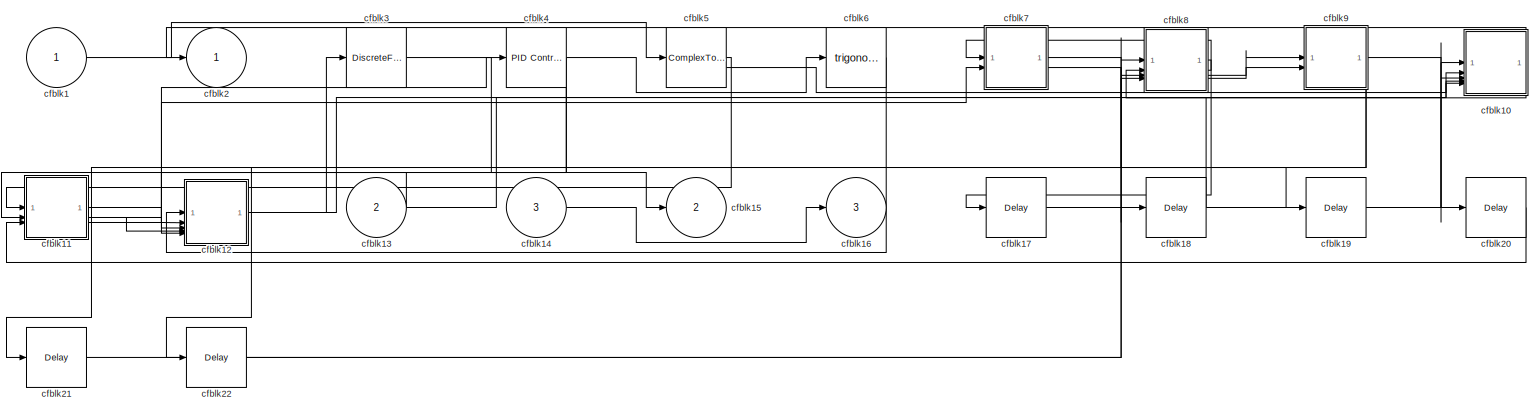
[diagram: cfblk72 - part 1/1, most of the canvas]
BLOCK [SubSystem] cfblk72
BLOCK [Inport] cfblk72/cfblk1
BLOCK [SubSystem] cfblk72/cfblk10
BLOCK [Inport] cfblk72/cfblk10/cfblk1
BLOCK [Inport] cfblk72/cfblk10/cfblk10
  Port = 3
BLOCK [Inport] cfblk72/cfblk10/cfblk11
  Port = 4
BLOCK [Inport] cfblk72/cfblk10/cfblk12
  Port = 5
BLOCK [Outport] cfblk72/cfblk10/cfblk13
  Port = 2
BLOCK [Outport] cfblk72/cfblk10/cfblk2
BLOCK [DiscreteZeroPole] cfblk72/cfblk10/cfblk3
  Gain = 1
  Poles = [0 0.5]
BLOCK [Reference] cfblk72/cfblk10/cfblk4  REF=simulink/Discrete/Tapped Delay
  SourceBlock = simulink/Discrete/Tapped Delay
  SourceType = Tapped Delay Line
BLOCK [Reshape] cfblk72/cfblk10/cfblk5
BLOCK [Sqrt] cfblk72/cfblk10/cfblk6
BLOCK [Rounding] cfblk72/cfblk10/cfblk7
BLOCK [Squeeze] cfblk72/cfblk10/cfblk8
BLOCK [Inport] cfblk72/cfblk10/cfblk9
  Port = 2
BLOCK [SubSystem] cfblk72/cfblk11
BLOCK [Inport] cfblk72/cfblk11/cfblk1
BLOCK [Gain] cfblk72/cfblk11/cfblk10
  Gain = [246370498.328920]
BLOCK [Sum] cfblk72/cfblk11/cfblk11
  IconShape = rectangular
BLOCK [ComplexToRealImag] cfblk72/cfblk11/cfblk12
BLOCK [Inport] cfblk72/cfblk11/cfblk13
  Port = 2
BLOCK [Inport] cfblk72/cfblk11/cfblk14
  Port = 3
BLOCK [Outport] cfblk72/cfblk11/cfblk15
  Port = 2
BLOCK [Outport] cfblk72/cfblk11/cfblk16
  Port = 3
BLOCK [Outport] cfblk72/cfblk11/cfblk2
BLOCK [Delay] cfblk72/cfblk11/cfblk3
  InputPortMap = u0
  SampleTime = 1
BLOCK [Sum] cfblk72/cfblk11/cfblk4
  IconShape = rectangular
BLOCK [Polyval] cfblk72/cfblk11/cfblk5
  Coefs = [ +2.081618890e-019, -1.441693666e-014, +4.719686976e-010, -8.536869453e-006, +1.621573104e-001, -8.087801117e+001 ]
BLOCK [Sqrt] cfblk72/cfblk11/cfblk6
BLOCK [Product] cfblk72/cfblk11/cfblk7
  Inputs = **
BLOCK [Gain] cfblk72/cfblk11/cfblk8
  Gain = [447781861.757790]
BLOCK [Sqrt] cfblk72/cfblk11/cfblk9
  AlgorithmType = Newton-Raphson
  Operator = rSqrt
BLOCK [SubSystem] cfblk72/cfblk12
BLOCK [Inport] cfblk72/cfblk12/cfblk1
BLOCK [Inport] cfblk72/cfblk12/cfblk10
  Port = 2
BLOCK [Inport] cfblk72/cfblk12/cfblk11
  Port = 3
BLOCK [Inport] cfblk72/cfblk12/cfblk12
  Port = 4
BLOCK [Inport] cfblk72/cfblk12/cfblk13
  Port = 5
BLOCK [Outport] cfblk72/cfblk12/cfblk2
BLOCK [Reference] cfblk72/cfblk12/cfblk3  REF=simulink/Discrete/Transfer Fcn
Real Zero
  SourceBlock = simulink/Discrete/Transfer Fcn\nReal Zero
  SourceType = Transfer Fcn Real Zero
BLOCK [DiscreteTransferFcn] cfblk72/cfblk12/cfblk4
  InputPortMap = u0
  SampleTime = 1
BLOCK [DiscreteIntegrator] cfblk72/cfblk12/cfblk5
  ICPrevOutput = DiscIntNeverNeededParam
  ICPrevScaledInput = DiscIntNeverNeededParam
  InitialConditionSetting = Auto
BLOCK [Bias] cfblk72/cfblk12/cfblk6
  Bias = [-15052744.562199]
  SaturateOnIntegerOverflow = off
BLOCK [Sum] cfblk72/cfblk12/cfblk7
  IconShape = rectangular
BLOCK [Reference] cfblk72/cfblk12/cfblk8  REF=simulink/Math
Operations/Slider
Gain
  SourceBlock = simulink/Math\nOperations/Slider\nGain
  SourceType = Slider Gain
BLOCK [UnaryMinus] cfblk72/cfblk12/cfblk9
BLOCK [Inport] cfblk72/cfblk13
  Port = 2
BLOCK [Inport] cfblk72/cfblk14
  Port = 3
BLOCK [Outport] cfblk72/cfblk15
  Port = 2
BLOCK [Outport] cfblk72/cfblk16
  Port = 3
BLOCK [Delay] cfblk72/cfblk17
  InputPortMap = u0
  SampleTime = 1
BLOCK [Delay] cfblk72/cfblk18
  InputPortMap = u0
  SampleTime = 1
BLOCK [Delay] cfblk72/cfblk19
  InputPortMap = u0
  SampleTime = 1
BLOCK [Outport] cfblk72/cfblk2
BLOCK [Delay] cfblk72/cfblk20
  InputPortMap = u0
  SampleTime = 1
BLOCK [Delay] cfblk72/cfblk21
  InputPortMap = u0
  SampleTime = 1
BLOCK [Delay] cfblk72/cfblk22
  InputPortMap = u0
  SampleTime = 1
BLOCK [DiscreteFir] cfblk72/cfblk3
  InputPortMap = u0
  OutputPortMap = o0
  SampleTime = 1
BLOCK [Reference] cfblk72/cfblk4  REF=slpidlib/PID Controller
  LibrarySourceBlock = simulink/Discrete/Discrete PID Controller
  SourceBlock = slpidlib/PID Controller
  SourceType = PID 1dof
BLOCK [ComplexToRealImag] cfblk72/cfblk5
BLOCK [Trigonometry] cfblk72/cfblk6
BLOCK [SubSystem] cfblk72/cfblk7
BLOCK [Inport] cfblk72/cfblk7/cfblk1
BLOCK [Outport] cfblk72/cfblk7/cfblk10
  Port = 2
BLOCK [Delay] cfblk72/cfblk7/cfblk11
  InputPortMap = u0
  SampleTime = 1
BLOCK [Delay] cfblk72/cfblk7/cfblk12
  InputPortMap = u0
  SampleTime = 1
BLOCK [Outport] cfblk72/cfblk7/cfblk2
BLOCK [DiscreteTransferFcn] cfblk72/cfblk7/cfblk3
  InputPortMap = u0
  SampleTime = 1
BLOCK [Reference] cfblk72/cfblk7/cfblk4  REF=simulink/Discrete/Difference
  SourceBlock = simulink/Discrete/Difference
  SourceType = Difference
BLOCK [Sqrt] cfblk72/cfblk7/cfblk5
  AlgorithmType = Newton-Raphson
  Operator = rSqrt
BLOCK [Gain] cfblk72/cfblk7/cfblk6
  Gain = [-617738521.278484]
BLOCK [Gain] cfblk72/cfblk7/cfblk7
  Gain = [159279642.441284]
BLOCK [Bias] cfblk72/cfblk7/cfblk8
  Bias = [676292214.071631]
  SaturateOnIntegerOverflow = off
BLOCK [Inport] cfblk72/cfblk7/cfblk9
  Port = 2
BLOCK [SubSystem] cfblk72/cfblk8
BLOCK [Inport] cfblk72/cfblk8/cfblk1
BLOCK [Inport] cfblk72/cfblk8/cfblk10
  Port = 2
BLOCK [Inport] cfblk72/cfblk8/cfblk11
  Port = 3
BLOCK [Inport] cfblk72/cfblk8/cfblk12
  Port = 4
BLOCK [Outport] cfblk72/cfblk8/cfblk13
  Port = 2
BLOCK [Outport] cfblk72/cfblk8/cfblk14
  Port = 3
BLOCK [Outport] cfblk72/cfblk8/cfblk15
  Port = 4
BLOCK [Outport] cfblk72/cfblk8/cfblk2
BLOCK [Delay] cfblk72/cfblk8/cfblk3
  InputPortMap = u0
  SampleTime = 1
BLOCK [Reference] cfblk72/cfblk8/cfblk4  REF=simulink/Discrete/Tapped Delay
  SourceBlock = simulink/Discrete/Tapped Delay
  SourceType = Tapped Delay Line
BLOCK [DiscreteFilter] cfblk72/cfblk8/cfblk5
  InputPortMap = u0
  SampleTime = 1
BLOCK [Sqrt] cfblk72/cfblk8/cfblk6
  AlgorithmType = Newton-Raphson
  Operator = rSqrt
BLOCK [DotProduct] cfblk72/cfblk8/cfblk7
  OutDataTypeStr = Inherit: Inherit via internal rule
BLOCK [Polyval] cfblk72/cfblk8/cfblk8
  Coefs = [ +2.081618890e-019, -1.441693666e-014, +4.719686976e-010, -8.536869453e-006, +1.621573104e-001, -8.087801117e+001 ]
BLOCK [DotProduct] cfblk72/cfblk8/cfblk9
  OutDataTypeStr = Inherit: Inherit via internal rule
BLOCK [SubSystem] cfblk72/cfblk9
BLOCK [Inport] cfblk72/cfblk9/cfblk1
BLOCK [Constant] cfblk72/cfblk9/cfblk10
  SampleTime = 1
  Value = [104482807.877236]
BLOCK [Inport] cfblk72/cfblk9/cfblk11
  Port = 2
BLOCK [Outport] cfblk72/cfblk9/cfblk12
  Port = 2
BLOCK [Outport] cfblk72/cfblk9/cfblk2
BLOCK [DiscreteStateSpace] cfblk72/cfblk9/cfblk3
BLOCK [Abs] cfblk72/cfblk9/cfblk4
  SaturateOnIntegerOverflow = off
BLOCK [Product] cfblk72/cfblk9/cfblk5
  Inputs = *
BLOCK [Sqrt] cfblk72/cfblk9/cfblk6
BLOCK [Signum] cfblk72/cfblk9/cfblk7
BLOCK [MinMax] cfblk72/cfblk9/cfblk8
BLOCK [Rounding] cfblk72/cfblk9/cfblk9
BLOCK [SubSystem] cfblk73
BLOCK [Inport] cfblk73/cfblk1
BLOCK [SubSystem] cfblk73/cfblk10
BLOCK [Inport] cfblk73/cfblk10/cfblk1
BLOCK [Inport] cfblk73/cfblk10/cfblk10
  Port = 4
BLOCK [Outport] cfblk73/cfblk10/cfblk11
  Port = 2
BLOCK [Delay] cfblk73/cfblk10/cfblk12
  InputPortMap = u0
  SampleTime = 1
BLOCK [Delay] cfblk73/cfblk10/cfblk13
  InputPortMap = u0
  SampleTime = 1
BLOCK [Outport] cfblk73/cfblk10/cfblk2
BLOCK [Sum] cfblk73/cfblk10/cfblk3
  Inputs = |++
BLOCK [DotProduct] cfblk73/cfblk10/cfblk4
  OutDataTypeStr = Inherit: Inherit via internal rule
BLOCK [Product] cfblk73/cfblk10/cfblk5
BLOCK [Bias] cfblk73/cfblk10/cfblk6
  Bias = [-243237379.866332]
  SaturateOnIntegerOverflow = off
BLOCK [Gain] cfblk73/cfblk10/cfblk7
  Gain = [-584610275.357395]
BLOCK [Inport] cfblk73/cfblk10/cfblk8
  Port = 2
BLOCK [Inport] cfblk73/cfblk10/cfblk9
  Port = 3
BLOCK [Inport] cfblk73/cfblk11
  Port = 2
BLOCK [Outport] cfblk73/cfblk12
  Port = 2
BLOCK [Delay] cfblk73/cfblk13
  InputPortMap = u0
  SampleTime = 1
BLOCK [Delay] cfblk73/cfblk14
  InputPortMap = u0
  SampleTime = 1
BLOCK [Delay] cfblk73/cfblk15
  InputPortMap = u0
  SampleTime = 1
BLOCK [Delay] cfblk73/cfblk16
  InputPortMap = u0
  SampleTime = 1
BLOCK [Outport] cfblk73/cfblk2
BLOCK [Reference] cfblk73/cfblk3  REF=simulink/Discrete/Transfer Fcn
Lead or Lag
  SourceBlock = simulink/Discrete/Transfer Fcn\nLead or Lag
  SourceType = Lead or Lag Compensator
BLOCK [DiscreteZeroPole] cfblk73/cfblk4
  Gain = 1
  Poles = [0 0.5]
BLOCK [Sqrt] cfblk73/cfblk5
BLOCK [Constant] cfblk73/cfblk6
  SampleTime = 1
  Value = [251991001.423929]
BLOCK [SubSystem] cfblk73/cfblk7
BLOCK [Inport] cfblk73/cfblk7/cfblk1
BLOCK [Reference] cfblk73/cfblk7/cfblk10  REF=simulink/Math
Operations/Slider
Gain
  SourceBlock = simulink/Math\nOperations/Slider\nGain
  SourceType = Slider Gain
BLOCK [Squeeze] cfblk73/cfblk7/cfblk11
BLOCK [Sqrt] cfblk73/cfblk7/cfblk12
BLOCK [Inport] cfblk73/cfblk7/cfblk13
  Port = 2
BLOCK [Inport] cfblk73/cfblk7/cfblk14
  Port = 3
BLOCK [Outport] cfblk73/cfblk7/cfblk15
  Port = 2
BLOCK [Outport] cfblk73/cfblk7/cfblk16
  Port = 3
BLOCK [Delay] cfblk73/cfblk7/cfblk17
  InputPortMap = u0
  SampleTime = 1
BLOCK [Outport] cfblk73/cfblk7/cfblk2
BLOCK [Reference] cfblk73/cfblk7/cfblk3  REF=simulink/Discrete/Transfer Fcn
First Order
  SourceBlock = simulink/Discrete/Transfer Fcn\nFirst Order
  SourceType = First Order Transfer Fcn
BLOCK [UnitDelay] cfblk73/cfblk7/cfblk4
  HasFrameUpgradeWarning = on
BLOCK [Product] cfblk73/cfblk7/cfblk5
BLOCK [Gain] cfblk73/cfblk7/cfblk6
  Gain = [80392786.599616]
BLOCK [Product] cfblk73/cfblk7/cfblk7
BLOCK [Sum] cfblk73/cfblk7/cfblk8
  IconShape = rectangular
  Inputs = +
BLOCK [Reference] cfblk73/cfblk7/cfblk9  REF=simulink/Math
Operations/Slider
Gain
  SourceBlock = simulink/Math\nOperations/Slider\nGain
  SourceType = Slider Gain
BLOCK [SubSystem] cfblk73/cfblk8
BLOCK [Inport] cfblk73/cfblk8/cfblk1
BLOCK [Inport] cfblk73/cfblk8/cfblk10
  Port = 3
BLOCK [Inport] cfblk73/cfblk8/cfblk11
  Port = 4
BLOCK [Outport] cfblk73/cfblk8/cfblk12
  Port = 2
BLOCK [Outport] cfblk73/cfblk8/cfblk2
BLOCK [Delay] cfblk73/cfblk8/cfblk3
  InputPortMap = u0
  SampleTime = 1
BLOCK [Rounding] cfblk73/cfblk8/cfblk4
BLOCK [Sum] cfblk73/cfblk8/cfblk5
  Inputs = |++
BLOCK [Trigonometry] cfblk73/cfblk8/cfblk6
BLOCK [Constant] cfblk73/cfblk8/cfblk7
  SampleTime = 1
  Value = [530709475.363478]
BLOCK [Constant] cfblk73/cfblk8/cfblk8
  SampleTime = 1
  Value = [996003819.397474]
BLOCK [Inport] cfblk73/cfblk8/cfblk9
  Port = 2
BLOCK [SubSystem] cfblk73/cfblk9
BLOCK [Inport] cfblk73/cfblk9/cfblk1
BLOCK [Inport] cfblk73/cfblk9/cfblk10
  Port = 3
BLOCK [Outport] cfblk73/cfblk9/cfblk11
  Port = 2
BLOCK [Outport] cfblk73/cfblk9/cfblk12
  Port = 3
BLOCK [Delay] cfblk73/cfblk9/cfblk13
  InputPortMap = u0
  SampleTime = 1
BLOCK [Delay] cfblk73/cfblk9/cfblk14
  InputPortMap = u0
  SampleTime = 1
BLOCK [Outport] cfblk73/cfblk9/cfblk2
BLOCK [UnitDelay] cfblk73/cfblk9/cfblk3
  HasFrameUpgradeWarning = on
BLOCK [PropagationDelay] cfblk73/cfblk9/cfblk4
  SampleTime = 1
BLOCK [Assignment] cfblk73/cfblk9/cfblk5
  DiagnosticForDimensions = Warning
  IndexOptions = Index vector (dialog)
  Indices = 1
  OutputSizes = 1
BLOCK [Trigonometry] cfblk73/cfblk9/cfblk6
BLOCK [MinMax] cfblk73/cfblk9/cfblk7
  Inputs = 3
BLOCK [Math] cfblk73/cfblk9/cfblk8
  Operator = magnitude^2
BLOCK [Inport] cfblk73/cfblk9/cfblk9
  Port = 2
BLOCK [SubSystem] cfblk74
BLOCK [Inport] cfblk74/cfblk1
BLOCK [Outport] cfblk74/cfblk2
BLOCK [DiscreteZeroPole] cfblk74/cfblk3
  Gain = 1
  Poles = [0 0.5]
BLOCK [SubSystem] cfblk74/cfblk4
BLOCK [Inport] cfblk74/cfblk4/cfblk1
BLOCK [Outport] cfblk74/cfblk4/cfblk2
BLOCK [DiscreteFir] cfblk74/cfblk4/cfblk3
  InputPortMap = u0
  OutputPortMap = o0
  SampleTime = 1
BLOCK [DiscreteFilter] cfblk74/cfblk4/cfblk4
  InputPortMap = u0
  SampleTime = 1
BLOCK [Math] cfblk74/cfblk4/cfblk5
  Operator = pow
BLOCK [Reshape] cfblk74/cfblk4/cfblk6
BLOCK [Reference] cfblk74/cfblk4/cfblk7  REF=simulink/Math
Operations/Slider
Gain
  SourceBlock = simulink/Math\nOperations/Slider\nGain
  SourceType = Slider Gain
BLOCK [Constant] cfblk74/cfblk4/cfblk8
  SampleTime = 1
  Value = [467980401.878410]
BLOCK [Delay] cfblk74/cfblk4/cfblk9
  InputPortMap = u0
  SampleTime = 1
BLOCK [Inport] cfblk74/cfblk5
  Port = 2
BLOCK [Outport] cfblk74/cfblk6
  Port = 2
BLOCK [Outport] cfblk74/cfblk7
  Port = 3
BLOCK [SubSystem] cfblk75
BLOCK [Inport] cfblk75/cfblk1
BLOCK [Delay] cfblk75/cfblk10
  InputPortMap = u0
  SampleTime = 1
BLOCK [Delay] cfblk75/cfblk11
  InputPortMap = u0
  SampleTime = 1
BLOCK [Delay] cfblk75/cfblk12
  InputPortMap = u0
  SampleTime = 1
BLOCK [Delay] cfblk75/cfblk13
  InputPortMap = u0
  SampleTime = 1
BLOCK [Outport] cfblk75/cfblk2
BLOCK [SubSystem] cfblk75/cfblk3
BLOCK [Inport] cfblk75/cfblk3/cfblk1
BLOCK [Squeeze] cfblk75/cfblk3/cfblk10
BLOCK [Polyval] cfblk75/cfblk3/cfblk11
  Coefs = [ +2.081618890e-019, -1.441693666e-014, +4.719686976e-010, -8.536869453e-006, +1.621573104e-001, -8.087801117e+001 ]
BLOCK [Sum] cfblk75/cfblk3/cfblk12
  IconShape = rectangular
  Inputs = +
BLOCK [Inport] cfblk75/cfblk3/cfblk13
  Port = 2
BLOCK [Inport] cfblk75/cfblk3/cfblk14
  Port = 3
BLOCK [Inport] cfblk75/cfblk3/cfblk15
  Port = 4
BLOCK [Inport] cfblk75/cfblk3/cfblk16
  Port = 5
BLOCK [Outport] cfblk75/cfblk3/cfblk17
  Port = 2
BLOCK [Outport] cfblk75/cfblk3/cfblk2
BLOCK [Delay] cfblk75/cfblk3/cfblk3
  InputPortMap = u0
  SampleTime = 1
BLOCK [DiscreteFilter] cfblk75/cfblk3/cfblk4
  InputPortMap = u0
  SampleTime = 1
BLOCK [Reference] cfblk75/cfblk3/cfblk5  REF=simulink/Discrete/Transfer Fcn
Lead or Lag
  SourceBlock = simulink/Discrete/Transfer Fcn\nLead or Lag
  SourceType = Lead or Lag Compensator
BLOCK [DiscreteStateSpace] cfblk75/cfblk3/cfblk6
BLOCK [DiscreteFilter] cfblk75/cfblk3/cfblk7
  InputPortMap = u0
  SampleTime = 1
BLOCK [Delay] cfblk75/cfblk3/cfblk8
  DelayLengthSource = Input port
  InputPortMap = u0,p1
  SampleTime = 1
BLOCK [Reference] cfblk75/cfblk3/cfblk9  REF=simulink/Discrete/Tapped Delay
  SourceBlock = simulink/Discrete/Tapped Delay
  SourceType = Tapped Delay Line
BLOCK [If] cfblk75/cfblk4
  IfExpression = u1 >= 0
  SampleTime = 1
BLOCK [Inport] cfblk75/cfblk5
  Port = 2
BLOCK [Inport] cfblk75/cfblk6
  Port = 3
BLOCK [Inport] cfblk75/cfblk7
  Port = 4
BLOCK [SubSystem] cfblk75/cfblk8
  TreatAsAtomicUnit = on
BLOCK [ActionPort] cfblk75/cfblk8/Action Port
  ActionPortLabel = if(u1 >= 0)
BLOCK [Inport] cfblk75/cfblk8/cfblk1
BLOCK [Inport] cfblk75/cfblk8/cfblk10
  Port = 2
BLOCK [Inport] cfblk75/cfblk8/cfblk11
  Port = 3
BLOCK [Inport] cfblk75/cfblk8/cfblk12
  Port = 4
BLOCK [Outport] cfblk75/cfblk8/cfblk13
  Port = 2
BLOCK [Outport] cfblk75/cfblk8/cfblk2
BLOCK [DiscreteFir] cfblk75/cfblk8/cfblk3
  InputPortMap = u0
  OutputPortMap = o0
BLOCK [DiscreteTransferFcn] cfblk75/cfblk8/cfblk4
  InputPortMap = u0
BLOCK [DiscreteFir] cfblk75/cfblk8/cfblk5
  InputPortMap = u0
  OutputPortMap = o0
BLOCK [Abs] cfblk75/cfblk8/cfblk6
  SaturateOnIntegerOverflow = off
BLOCK [ComplexToMagnitudeAngle] cfblk75/cfblk8/cfblk7
BLOCK [Product] cfblk75/cfblk8/cfblk8
  Inputs = **
BLOCK [Bias] cfblk75/cfblk8/cfblk9
  Bias = [-477688470.259057]
  SaturateOnIntegerOverflow = off
BLOCK [SubSystem] cfblk75/cfblk9
  TreatAsAtomicUnit = on
BLOCK [ActionPort] cfblk75/cfblk9/Action Port
  ActionPortLabel = else
BLOCK [Inport] cfblk75/cfblk9/cfblk1
BLOCK [Sum] cfblk75/cfblk9/cfblk10
  IconShape = rectangular
BLOCK [ComplexToRealImag] cfblk75/cfblk9/cfblk11
BLOCK [Rounding] cfblk75/cfblk9/cfblk12
BLOCK [Inport] cfblk75/cfblk9/cfblk13
  Port = 2
BLOCK [Outport] cfblk75/cfblk9/cfblk14
  Port = 2
BLOCK [Outport] cfblk75/cfblk9/cfblk15
  Port = 3
BLOCK [Outport] cfblk75/cfblk9/cfblk16
  Port = 4
BLOCK [Delay] cfblk75/cfblk9/cfblk17
  InputPortMap = u0
BLOCK [Outport] cfblk75/cfblk9/cfblk2
BLOCK [Reference] cfblk75/cfblk9/cfblk3  REF=simulink/Discrete/Difference
  SourceBlock = simulink/Discrete/Difference
  SourceType = Difference
BLOCK [Reference] cfblk75/cfblk9/cfblk4  REF=slpidlib/PID Controller (2DOF)
  LibrarySourceBlock = simulink/Discrete/Discrete PID Controller (2DOF)
  SourceBlock = slpidlib/PID Controller (2DOF)
  SourceType = PID 2dof
BLOCK [UnitDelay] cfblk75/cfblk9/cfblk5
  HasFrameUpgradeWarning = on
  SampleTime = -1
BLOCK [Delay] cfblk75/cfblk9/cfblk6
  InputPortMap = u0,e6
  ShowEnablePort = on
BLOCK [DiscreteStateSpace] cfblk75/cfblk9/cfblk7
  SampleTime = -1
BLOCK [Reference] cfblk75/cfblk9/cfblk8  REF=simulink/Discrete/Difference
  SourceBlock = simulink/Discrete/Difference
  SourceType = Difference
BLOCK [Delay] cfblk75/cfblk9/cfblk9
  DelayLengthSource = Input port
  InputPortMap = u0,p1
BLOCK [SubSystem] cfblk76
BLOCK [Inport] cfblk76/cfblk1
BLOCK [SubSystem] cfblk76/cfblk10
BLOCK [Inport] cfblk76/cfblk10/cfblk1
BLOCK [Outport] cfblk76/cfblk10/cfblk2
BLOCK [Reference] cfblk76/cfblk10/cfblk3  REF=simulink/Discrete/Difference
  SourceBlock = simulink/Discrete/Difference
  SourceType = Difference
BLOCK [DiscreteStateSpace] cfblk76/cfblk10/cfblk4
BLOCK [Constant] cfblk76/cfblk10/cfblk5
  SampleTime = 1
  Value = [864890575.417065]
BLOCK [Constant] cfblk76/cfblk10/cfblk6
  SampleTime = 1
  Value = [531728027.758929]
BLOCK [Inport] cfblk76/cfblk10/cfblk7
  Port = 2
BLOCK [Outport] cfblk76/cfblk10/cfblk8
  Port = 2
BLOCK [SubSystem] cfblk76/cfblk11
BLOCK [Inport] cfblk76/cfblk11/cfblk1
BLOCK [Outport] cfblk76/cfblk11/cfblk2
BLOCK [Reference] cfblk76/cfblk11/cfblk3  REF=simulink/Discrete/Difference
  SourceBlock = simulink/Discrete/Difference
  SourceType = Difference
BLOCK [Abs] cfblk76/cfblk11/cfblk4
  SaturateOnIntegerOverflow = off
BLOCK [Constant] cfblk76/cfblk11/cfblk5
  SampleTime = 1
  Value = [-519528448.667871]
BLOCK [Outport] cfblk76/cfblk11/cfblk6
  Port = 2
BLOCK [Outport] cfblk76/cfblk11/cfblk7
  Port = 3
BLOCK [SubSystem] cfblk76/cfblk12
BLOCK [Inport] cfblk76/cfblk12/cfblk1
BLOCK [Outport] cfblk76/cfblk12/cfblk10
  Port = 3
BLOCK [Delay] cfblk76/cfblk12/cfblk11
  InputPortMap = u0
  SampleTime = 1
BLOCK [Outport] cfblk76/cfblk12/cfblk2
BLOCK [DiscreteStateSpace] cfblk76/cfblk12/cfblk3
BLOCK [PropagationDelay] cfblk76/cfblk12/cfblk4
  SampleTime = 1
BLOCK [Reference] cfblk76/cfblk12/cfblk5  REF=slpidlib/PID Controller
  LibrarySourceBlock = simulink/Discrete/Discrete PID Controller
  SourceBlock = slpidlib/PID Controller
  SourceType = PID 1dof
BLOCK [Trigonometry] cfblk76/cfblk12/cfblk6
BLOCK [Inport] cfblk76/cfblk12/cfblk7
  Port = 2
BLOCK [Inport] cfblk76/cfblk12/cfblk8
  Port = 3
BLOCK [Outport] cfblk76/cfblk12/cfblk9
  Port = 2
BLOCK [Inport] cfblk76/cfblk13
  Port = 2
BLOCK [Inport] cfblk76/cfblk14
  Port = 3
BLOCK [Delay] cfblk76/cfblk15
  InputPortMap = u0
  SampleTime = 1
BLOCK [Delay] cfblk76/cfblk16
  InputPortMap = u0
  SampleTime = 1
BLOCK [Outport] cfblk76/cfblk2
BLOCK [Reference] cfblk76/cfblk3  REF=simulink/Discrete/Tapped Delay
  SourceBlock = simulink/Discrete/Tapped Delay
  SourceType = Tapped Delay Line
BLOCK [Reference] cfblk76/cfblk4  REF=simulink/Discrete/Difference
  SourceBlock = simulink/Discrete/Difference
  SourceType = Difference
BLOCK [DiscreteZeroPole] cfblk76/cfblk5
  Gain = 1
  Poles = [0 0.5]
BLOCK [Reference] cfblk76/cfblk6  REF=simulink/Math
Operations/Slider
Gain
  SourceBlock = simulink/Math\nOperations/Slider\nGain
  SourceType = Slider Gain
BLOCK [UnaryMinus] cfblk76/cfblk7
BLOCK [PermuteDimensions] cfblk76/cfblk8
BLOCK [SubSystem] cfblk76/cfblk9
BLOCK [Inport] cfblk76/cfblk9/cfblk1
BLOCK [Outport] cfblk76/cfblk9/cfblk2
BLOCK [DiscreteZeroPole] cfblk76/cfblk9/cfblk3
  Gain = 1
  Poles = [0 0.5]
BLOCK [DiscreteZeroPole] cfblk76/cfblk9/cfblk4
  Gain = 1
  Poles = [0 0.5]
BLOCK [Reference] cfblk76/cfblk9/cfblk5  REF=simulink/Discrete/Transfer Fcn
Real Zero
  SourceBlock = simulink/Discrete/Transfer Fcn\nReal Zero
  SourceType = Transfer Fcn Real Zero
BLOCK [Bias] cfblk76/cfblk9/cfblk6
  Bias = [54486648.024942]
  SaturateOnIntegerOverflow = off
BLOCK [Constant] cfblk76/cfblk9/cfblk7
  SampleTime = 1
  Value = [-151068412.570256]
BLOCK [Outport] cfblk76/cfblk9/cfblk8
  Port = 2
BLOCK [Outport] cfblk76/cfblk9/cfblk9
  Port = 3
BLOCK [SubSystem] cfblk77
BLOCK [Inport] cfblk77/cfblk1
BLOCK [SubSystem] cfblk77/cfblk10
BLOCK [Inport] cfblk77/cfblk10/cfblk1
BLOCK [Inport] cfblk77/cfblk10/cfblk10
  Port = 4
BLOCK [Outport] cfblk77/cfblk10/cfblk11
  Port = 2
BLOCK [Outport] cfblk77/cfblk10/cfblk12
  Port = 3
BLOCK [Outport] cfblk77/cfblk10/cfblk2
BLOCK [Reference] cfblk77/cfblk10/cfblk3  REF=simulink/Discrete/Tapped Delay
  SourceBlock = simulink/Discrete/Tapped Delay
  SourceType = Tapped Delay Line
BLOCK [DiscreteFir] cfblk77/cfblk10/cfblk4
  InputPortMap = u0
  OutputPortMap = o0
  SampleTime = 1
BLOCK [PropagationDelay] cfblk77/cfblk10/cfblk5
  SampleTime = 1
BLOCK [Sqrt] cfblk77/cfblk10/cfblk6
BLOCK [PermuteDimensions] cfblk77/cfblk10/cfblk7
BLOCK [Inport] cfblk77/cfblk10/cfblk8
  Port = 2
BLOCK [Inport] cfblk77/cfblk10/cfblk9
  Port = 3
BLOCK [SubSystem] cfblk77/cfblk11
BLOCK [Inport] cfblk77/cfblk11/cfblk1
BLOCK [Outport] cfblk77/cfblk11/cfblk2
BLOCK [Reference] cfblk77/cfblk11/cfblk3  REF=simulink/Discrete/Transfer Fcn
Lead or Lag
  SourceBlock = simulink/Discrete/Transfer Fcn\nLead or Lag
  SourceType = Lead or Lag Compensator
BLOCK [UnitDelay] cfblk77/cfblk11/cfblk4
  HasFrameUpgradeWarning = on
BLOCK [Gain] cfblk77/cfblk11/cfblk5
  Gain = [-179159594.674313]
BLOCK [Gain] cfblk77/cfblk11/cfblk6
  Gain = [639974739.916101]
BLOCK [Outport] cfblk77/cfblk11/cfblk7
  Port = 2
BLOCK [Delay] cfblk77/cfblk11/cfblk8
  InputPortMap = u0
  SampleTime = 1
BLOCK [Outport] cfblk77/cfblk12
  Port = 2
BLOCK [Delay] cfblk77/cfblk13
  InputPortMap = u0
  SampleTime = 1
BLOCK [Delay] cfblk77/cfblk14
  InputPortMap = u0
  SampleTime = 1
BLOCK [Delay] cfblk77/cfblk15
  InputPortMap = u0
  SampleTime = 1
BLOCK [Delay] cfblk77/cfblk16
  InputPortMap = u0
  SampleTime = 1
BLOCK [Delay] cfblk77/cfblk17
  InputPortMap = u0
  SampleTime = 1
BLOCK [Outport] cfblk77/cfblk2
BLOCK [Delay] cfblk77/cfblk3
  InputPortMap = u0,e6
  SampleTime = 1
  ShowEnablePort = on
BLOCK [UnaryMinus] cfblk77/cfblk4
BLOCK [MinMax] cfblk77/cfblk5
  Function = max
BLOCK [Sqrt] cfblk77/cfblk6
BLOCK [Reference] cfblk77/cfblk7  REF=simulink/Math
Operations/MinMax
Running
Resettable
  SourceBlock = simulink/Math\nOperations/MinMax\nRunning\nResettable
  SourceType = MinMax Running Resettable
BLOCK [SubSystem] cfblk77/cfblk8
BLOCK [Inport] cfblk77/cfblk8/cfblk1
BLOCK [Abs] cfblk77/cfblk8/cfblk10
  SaturateOnIntegerOverflow = off
BLOCK [Constant] cfblk77/cfblk8/cfblk11
  SampleTime = 1
  Value = [636549642.696747]
BLOCK [Inport] cfblk77/cfblk8/cfblk12
  Port = 2
BLOCK [Delay] cfblk77/cfblk8/cfblk13
  InputPortMap = u0
  SampleTime = 1
BLOCK [Outport] cfblk77/cfblk8/cfblk2
BLOCK [Delay] cfblk77/cfblk8/cfblk3
  DelayLengthSource = Input port
  InputPortMap = u0,p1
  SampleTime = 1
BLOCK [Delay] cfblk77/cfblk8/cfblk4
  InputPortMap = u0,e6
  SampleTime = 1
  ShowEnablePort = on
BLOCK [Delay] cfblk77/cfblk8/cfblk5
  InputPortMap = u0
  SampleTime = 1
BLOCK [ComplexToRealImag] cfblk77/cfblk8/cfblk6
BLOCK [Reference] cfblk77/cfblk8/cfblk7  REF=simulink/Math
Operations/MinMax
Running
Resettable
  SourceBlock = simulink/Math\nOperations/MinMax\nRunning\nResettable
  SourceType = MinMax Running Resettable
BLOCK [Signum] cfblk77/cfblk8/cfblk8
BLOCK [Sqrt] cfblk77/cfblk8/cfblk9
BLOCK [SubSystem] cfblk77/cfblk9
BLOCK [Inport] cfblk77/cfblk9/cfblk1
BLOCK [Reshape] cfblk77/cfblk9/cfblk10
BLOCK [Inport] cfblk77/cfblk9/cfblk11
  Port = 2
BLOCK [Inport] cfblk77/cfblk9/cfblk12
  Port = 3
BLOCK [Outport] cfblk77/cfblk9/cfblk13
  Port = 2
BLOCK [Delay] cfblk77/cfblk9/cfblk14
  InputPortMap = u0
  SampleTime = 1
BLOCK [Outport] cfblk77/cfblk9/cfblk2
BLOCK [Delay] cfblk77/cfblk9/cfblk3
  InputPortMap = u0,e6
  SampleTime = 1
  ShowEnablePort = on
BLOCK [Reference] cfblk77/cfblk9/cfblk4  REF=simulink/Discrete/Transfer Fcn
Real Zero
  SourceBlock = simulink/Discrete/Transfer Fcn\nReal Zero
  SourceType = Transfer Fcn Real Zero
BLOCK [DiscreteZeroPole] cfblk77/cfblk9/cfblk5
  Gain = 1
  Poles = [0 0.5]
BLOCK [Delay] cfblk77/cfblk9/cfblk6
  InputPortMap = u0
  SampleTime = 1
BLOCK [ComplexToRealImag] cfblk77/cfblk9/cfblk7
BLOCK [Sum] cfblk77/cfblk9/cfblk8
  IconShape = rectangular
  Inputs = -+
BLOCK [UnaryMinus] cfblk77/cfblk9/cfblk9
BLOCK [SubSystem] cfblk78
BLOCK [Inport] cfblk78/cfblk1
BLOCK [Outport] cfblk78/cfblk2
BLOCK [Delay] cfblk78/cfblk3
  InputPortMap = u0
  SampleTime = 1
BLOCK [Reshape] cfblk78/cfblk4
BLOCK [Sum] cfblk78/cfblk5
  IconShape = rectangular
  Inputs = +
BLOCK [SubSystem] cfblk78/cfblk6
BLOCK [Inport] cfblk78/cfblk6/cfblk1
BLOCK [Outport] cfblk78/cfblk6/cfblk10
  Port = 2
BLOCK [Delay] cfblk78/cfblk6/cfblk11
  InputPortMap = u0
  SampleTime = 1
BLOCK [Delay] cfblk78/cfblk6/cfblk12
  InputPortMap = u0
  SampleTime = 1
BLOCK [Outport] cfblk78/cfblk6/cfblk2
BLOCK [DiscreteStateSpace] cfblk78/cfblk6/cfblk3
BLOCK [Reference] cfblk78/cfblk6/cfblk4  REF=slpidlib/PID Controller
  LibrarySourceBlock = simulink/Discrete/Discrete PID Controller
  SourceBlock = slpidlib/PID Controller
  SourceType = PID 1dof
BLOCK [Reference] cfblk78/cfblk6/cfblk5  REF=simulink/Discrete/Difference
  SourceBlock = simulink/Discrete/Difference
  SourceType = Difference
BLOCK [Abs] cfblk78/cfblk6/cfblk6
  SaturateOnIntegerOverflow = off
BLOCK [Product] cfblk78/cfblk6/cfblk7
BLOCK [Inport] cfblk78/cfblk6/cfblk8
  Port = 2
BLOCK [Inport] cfblk78/cfblk6/cfblk9
  Port = 3
BLOCK [SubSystem] cfblk78/cfblk7
BLOCK [Inport] cfblk78/cfblk7/cfblk1
BLOCK [Outport] cfblk78/cfblk7/cfblk2
BLOCK [Reference] cfblk78/cfblk7/cfblk3  REF=simulink/Discrete/Difference
  SourceBlock = simulink/Discrete/Difference
  SourceType = Difference
BLOCK [Sin] cfblk78/cfblk7/cfblk4
  SampleTime = 0
  TimeSource = Use external signal
BLOCK [Sqrt] cfblk78/cfblk7/cfblk5
BLOCK [ComplexToRealImag] cfblk78/cfblk7/cfblk6
BLOCK [Sin] cfblk78/cfblk7/cfblk7
  SampleTime = 0
  TimeSource = Use external signal
BLOCK [Inport] cfblk78/cfblk7/cfblk8
  Port = 2
BLOCK [Outport] cfblk78/cfblk7/cfblk9
  Port = 2
BLOCK [Delay] cfblk78/cfblk8
  InputPortMap = u0
  SampleTime = 1
BLOCK [SubSystem] cfblk79
BLOCK [Inport] cfblk79/cfblk1
BLOCK [SubSystem] cfblk79/cfblk10
BLOCK [Inport] cfblk79/cfblk10/cfblk1
BLOCK [Outport] cfblk79/cfblk10/cfblk2
BLOCK [Sum] cfblk79/cfblk10/cfblk3
  IconShape = rectangular
  Inputs = +-
BLOCK [Sqrt] cfblk79/cfblk10/cfblk4
  AlgorithmType = Newton-Raphson
  Operator = rSqrt
BLOCK [Trigonometry] cfblk79/cfblk10/cfblk5
BLOCK [Constant] cfblk79/cfblk10/cfblk6
  SampleTime = 1
  Value = [-560462625.237605]
BLOCK [Inport] cfblk79/cfblk10/cfblk7
  Port = 2
BLOCK [SubSystem] cfblk79/cfblk11
BLOCK [Inport] cfblk79/cfblk11/cfblk1
BLOCK [Outport] cfblk79/cfblk11/cfblk2
BLOCK [Delay] cfblk79/cfblk11/cfblk3
  DelayLengthSource = Input port
  InputPortMap = u0,p1
  SampleTime = 1
BLOCK [Reference] cfblk79/cfblk11/cfblk4  REF=slpidlib/PID Controller
  LibrarySourceBlock = simulink/Discrete/Discrete PID Controller
  SourceBlock = slpidlib/PID Controller
  SourceType = PID 1dof
BLOCK [Reference] cfblk79/cfblk11/cfblk5  REF=simulink/Math
Operations/Slider
Gain
  SourceBlock = simulink/Math\nOperations/Slider\nGain
  SourceType = Slider Gain
BLOCK [MinMax] cfblk79/cfblk11/cfblk6
  Function = max
  Inputs = 3
BLOCK [Inport] cfblk79/cfblk11/cfblk7
  Port = 2
BLOCK [Delay] cfblk79/cfblk11/cfblk8
  InputPortMap = u0
  SampleTime = 1
BLOCK [Delay] cfblk79/cfblk11/cfblk9
  InputPortMap = u0
  SampleTime = 1
BLOCK [SubSystem] cfblk79/cfblk12
BLOCK [Inport] cfblk79/cfblk12/cfblk1
BLOCK [Outport] cfblk79/cfblk12/cfblk2
BLOCK [DiscreteFilter] cfblk79/cfblk12/cfblk3
  InputPortMap = u0
  SampleTime = 1
BLOCK [Reference] cfblk79/cfblk12/cfblk4  REF=slpidlib/PID Controller
  LibrarySourceBlock = simulink/Discrete/Discrete PID Controller
  SourceBlock = slpidlib/PID Controller
  SourceType = PID 1dof
BLOCK [Sqrt] cfblk79/cfblk12/cfblk5
BLOCK [Bias] cfblk79/cfblk12/cfblk6
  Bias = [-649397499.226623]
  SaturateOnIntegerOverflow = off
BLOCK [Math] cfblk79/cfblk12/cfblk7
  Operator = mod
BLOCK [Outport] cfblk79/cfblk12/cfblk8
  Port = 2
BLOCK [Delay] cfblk79/cfblk12/cfblk9
  InputPortMap = u0
  SampleTime = 1
BLOCK [SubSystem] cfblk79/cfblk13
BLOCK [Inport] cfblk79/cfblk13/cfblk1
BLOCK [Delay] cfblk79/cfblk13/cfblk10
  InputPortMap = u0
  SampleTime = 1
BLOCK [Outport] cfblk79/cfblk13/cfblk2
BLOCK [DiscreteStateSpace] cfblk79/cfblk13/cfblk3
BLOCK [Delay] cfblk79/cfblk13/cfblk4
  DelayLengthSource = Input port
  InputPortMap = u0,p1
  SampleTime = 1
BLOCK [Delay] cfblk79/cfblk13/cfblk5
  DelayLengthSource = Input port
  InputPortMap = u0,p1
  SampleTime = 1
BLOCK [DotProduct] cfblk79/cfblk13/cfblk6
  OutDataTypeStr = Inherit: Inherit via internal rule
BLOCK [Sqrt] cfblk79/cfblk13/cfblk7
  AlgorithmType = Newton-Raphson
  Operator = rSqrt
BLOCK [Delay] cfblk79/cfblk13/cfblk8
  InputPortMap = u0
  SampleTime = 1
BLOCK [Delay] cfblk79/cfblk13/cfblk9
  InputPortMap = u0
  SampleTime = 1
BLOCK [Inport] cfblk79/cfblk14
  Port = 2
BLOCK [Delay] cfblk79/cfblk15
  InputPortMap = u0
  SampleTime = 1
BLOCK [Delay] cfblk79/cfblk16
  InputPortMap = u0
  SampleTime = 1
BLOCK [Outport] cfblk79/cfblk2
BLOCK [Reference] cfblk79/cfblk3  REF=simulink/Discrete/Difference
  SourceBlock = simulink/Discrete/Difference
  SourceType = Difference
BLOCK [Delay] cfblk79/cfblk4
  DelayLengthSource = Input port
  InputPortMap = u0,p1
  SampleTime = 1
BLOCK [Delay] cfblk79/cfblk5
  InputPortMap = u0,e6
  SampleTime = 1
  ShowEnablePort = on
BLOCK [Delay] cfblk79/cfblk6
  InputPortMap = u0,e6
  SampleTime = 1
  ShowEnablePort = on
BLOCK [Gain] cfblk79/cfblk7
  Gain = [-633947602.308004]
BLOCK [Constant] cfblk79/cfblk8
  SampleTime = 1
  Value = [6845603.135488]
BLOCK [SubSystem] cfblk79/cfblk9
BLOCK [Inport] cfblk79/cfblk9/cfblk1
BLOCK [Outport] cfblk79/cfblk9/cfblk2
BLOCK [DiscreteIntegrator] cfblk79/cfblk9/cfblk3
  ICPrevOutput = DiscIntNeverNeededParam
  ICPrevScaledInput = DiscIntNeverNeededParam
  InitialConditionSetting = Auto
BLOCK [Inport] cfblk79/cfblk9/cfblk4
  Port = 2
BLOCK [Inport] cfblk79/cfblk9/cfblk5
  Port = 3
BLOCK [Inport] cfblk79/cfblk9/cfblk6
  Port = 4
BLOCK [Inport] cfblk79/cfblk9/cfblk7
  Port = 5
BLOCK [Reference] cfblk8  REF=simulink/Discrete/Transfer Fcn
First Order
  SourceBlock = simulink/Discrete/Transfer Fcn\nFirst Order
  SourceType = First Order Transfer Fcn
BLOCK [SubSystem] cfblk80
BLOCK [Inport] cfblk80/cfblk1
BLOCK [Outport] cfblk80/cfblk2
BLOCK [DiscreteFilter] cfblk80/cfblk3
  InputPortMap = u0
  SampleTime = 1
BLOCK [ComplexToRealImag] cfblk80/cfblk4
BLOCK [Constant] cfblk80/cfblk5
  SampleTime = 1
  Value = [-268454467.432629]
BLOCK [SubSystem] cfblk80/cfblk6
BLOCK [Inport] cfblk80/cfblk6/cfblk1
BLOCK [Constant] cfblk80/cfblk6/cfblk10
  SampleTime = 1
  Value = [-610964446.423040]
BLOCK [Constant] cfblk80/cfblk6/cfblk11
  SampleTime = 1
  Value = [-968158037.750619]
BLOCK [Constant] cfblk80/cfblk6/cfblk12
  SampleTime = 1
  Value = [-788575425.640667]
BLOCK [Constant] cfblk80/cfblk6/cfblk13
  SampleTime = 1
  Value = [458421568.545373]
BLOCK [Inport] cfblk80/cfblk6/cfblk14
  Port = 2
BLOCK [Inport] cfblk80/cfblk6/cfblk15
  Port = 3
BLOCK [Inport] cfblk80/cfblk6/cfblk16
  Port = 4
BLOCK [Outport] cfblk80/cfblk6/cfblk17
  Port = 2
BLOCK [Delay] cfblk80/cfblk6/cfblk18
  InputPortMap = u0
  SampleTime = 1
BLOCK [Outport] cfblk80/cfblk6/cfblk2
BLOCK [Reference] cfblk80/cfblk6/cfblk3  REF=slpidlib/PID Controller
  LibrarySourceBlock = simulink/Discrete/Discrete PID Controller
  SourceBlock = slpidlib/PID Controller
  SourceType = PID 1dof
BLOCK [Reference] cfblk80/cfblk6/cfblk4  REF=simulink/Discrete/Difference
  SourceBlock = simulink/Discrete/Difference
  SourceType = Difference
BLOCK [DiscreteStateSpace] cfblk80/cfblk6/cfblk5
BLOCK [Reference] cfblk80/cfblk6/cfblk6  REF=simulink/Discrete/Difference
  SourceBlock = simulink/Discrete/Difference
  SourceType = Difference
BLOCK [Reference] cfblk80/cfblk6/cfblk7  REF=simulink/Math
Operations/Slider
Gain
  SourceBlock = simulink/Math\nOperations/Slider\nGain
  SourceType = Slider Gain
BLOCK [Sum] cfblk80/cfblk6/cfblk8
  IconShape = rectangular
BLOCK [Product] cfblk80/cfblk6/cfblk9
  Inputs = **
BLOCK [Inport] cfblk80/cfblk7
  Port = 2
BLOCK [Delay] cfblk80/cfblk8
  InputPortMap = u0
  SampleTime = 1
BLOCK [SubSystem] cfblk81
BLOCK [Inport] cfblk81/cfblk1
BLOCK [Delay] cfblk81/cfblk10
  InputPortMap = u0
  SampleTime = 1
BLOCK [Delay] cfblk81/cfblk11
  InputPortMap = u0
  SampleTime = 1
BLOCK [Delay] cfblk81/cfblk12
  InputPortMap = u0
  SampleTime = 1
BLOCK [DataTypeConversion] cfblk81/cfblk13
  RndMeth = Floor
  SaturateOnIntegerOverflow = off
BLOCK [DataTypeConversion] cfblk81/cfblk14
  RndMeth = Floor
  SaturateOnIntegerOverflow = off
BLOCK [DataTypeConversion] cfblk81/cfblk15
  RndMeth = Floor
  SaturateOnIntegerOverflow = off
BLOCK [DataTypeConversion] cfblk81/cfblk16
  RndMeth = Floor
  SaturateOnIntegerOverflow = off
BLOCK [DataTypeConversion] cfblk81/cfblk17
  RndMeth = Floor
  SaturateOnIntegerOverflow = off
BLOCK [DataTypeConversion] cfblk81/cfblk18
  RndMeth = Floor
  SaturateOnIntegerOverflow = off
BLOCK [DataTypeConversion] cfblk81/cfblk19
  RndMeth = Floor
  SaturateOnIntegerOverflow = off
BLOCK [Outport] cfblk81/cfblk2
BLOCK [DiscreteStateSpace] cfblk81/cfblk3
BLOCK [Reference] cfblk81/cfblk4  REF=slpidlib/PID Controller
  LibrarySourceBlock = simulink/Discrete/Discrete PID Controller
  SourceBlock = slpidlib/PID Controller
  SourceType = PID 1dof
BLOCK [SubSystem] cfblk81/cfblk5
BLOCK [Inport] cfblk81/cfblk5/cfblk1
BLOCK [Outport] cfblk81/cfblk5/cfblk2
BLOCK [Delay] cfblk81/cfblk5/cfblk3
  InputPortMap = u0
  SampleTime = 1
BLOCK [Delay] cfblk81/cfblk5/cfblk4
  InputPortMap = u0
  SampleTime = 1
BLOCK [Reference] cfblk81/cfblk5/cfblk5  REF=simulink/Discrete/Difference
  SourceBlock = simulink/Discrete/Difference
  SourceType = Difference
BLOCK [DotProduct] cfblk81/cfblk5/cfblk6
  OutDataTypeStr = Inherit: Inherit via internal rule
BLOCK [Inport] cfblk81/cfblk5/cfblk7
  Port = 2
BLOCK [Inport] cfblk81/cfblk5/cfblk8
  Port = 3
BLOCK [Inport] cfblk81/cfblk5/cfblk9
  Port = 4
BLOCK [SubSystem] cfblk81/cfblk6
BLOCK [Inport] cfblk81/cfblk6/cfblk1
BLOCK [Inport] cfblk81/cfblk6/cfblk10
  Port = 4
BLOCK [Inport] cfblk81/cfblk6/cfblk11
  Port = 5
BLOCK [Outport] cfblk81/cfblk6/cfblk12
  Port = 2
BLOCK [Delay] cfblk81/cfblk6/cfblk13
  InputPortMap = u0
  SampleTime = 1
BLOCK [Outport] cfblk81/cfblk6/cfblk2
BLOCK [Delay] cfblk81/cfblk6/cfblk3
  InputPortMap = u0,e6
  SampleTime = 1
  ShowEnablePort = on
BLOCK [Reference] cfblk81/cfblk6/cfblk4  REF=simulink/Discrete/Transfer Fcn
First Order
  SourceBlock = simulink/Discrete/Transfer Fcn\nFirst Order
  SourceType = First Order Transfer Fcn
BLOCK [Gain] cfblk81/cfblk6/cfblk5
  Gain = [760081011.756104]
BLOCK [Sum] cfblk81/cfblk6/cfblk6
  Inputs = |++
BLOCK [Constant] cfblk81/cfblk6/cfblk7
  SampleTime = 1
  Value = [338544888.973729]
BLOCK [Inport] cfblk81/cfblk6/cfblk8
  Port = 2
BLOCK [Inport] cfblk81/cfblk6/cfblk9
  Port = 3
BLOCK [Inport] cfblk81/cfblk7
  Port = 2
BLOCK [Inport] cfblk81/cfblk8
  Port = 3
BLOCK [Delay] cfblk81/cfblk9
  InputPortMap = u0
  SampleTime = 1
BLOCK [SubSystem] cfblk82
BLOCK [Inport] cfblk82/cfblk1
BLOCK [Inport] cfblk82/cfblk10
  Port = 3
BLOCK [Delay] cfblk82/cfblk11
  InputPortMap = u0
  SampleTime = 1
BLOCK [Delay] cfblk82/cfblk12
  InputPortMap = u0
  SampleTime = 1
BLOCK [Outport] cfblk82/cfblk2
BLOCK [SubSystem] cfblk82/cfblk3
BLOCK [Inport] cfblk82/cfblk3/cfblk1
BLOCK [Squeeze] cfblk82/cfblk3/cfblk10
BLOCK [Reference] cfblk82/cfblk3/cfblk11  REF=simulink/Math
Operations/MinMax
Running
Resettable
  SourceBlock = simulink/Math\nOperations/MinMax\nRunning\nResettable
  SourceType = MinMax Running Resettable
BLOCK [Squeeze] cfblk82/cfblk3/cfblk12
BLOCK [Math] cfblk82/cfblk3/cfblk13
  Operator = hypot
BLOCK [Constant] cfblk82/cfblk3/cfblk14
  SampleTime = 1
  Value = [628693298.029140]
BLOCK [Constant] cfblk82/cfblk3/cfblk15
  SampleTime = 1
  Value = [903402095.401888]
BLOCK [Inport] cfblk82/cfblk3/cfblk16
  Port = 2
BLOCK [Outport] cfblk82/cfblk3/cfblk17
  Port = 2
BLOCK [Delay] cfblk82/cfblk3/cfblk18
  InputPortMap = u0
  SampleTime = 1
BLOCK [Outport] cfblk82/cfblk3/cfblk2
BLOCK [DiscreteStateSpace] cfblk82/cfblk3/cfblk3
BLOCK [Reference] cfblk82/cfblk3/cfblk4  REF=slpidlib/PID Controller
  LibrarySourceBlock = simulink/Discrete/Discrete PID Controller
  SourceBlock = slpidlib/PID Controller
  SourceType = PID 1dof
BLOCK [UnitDelay] cfblk82/cfblk3/cfblk5
  HasFrameUpgradeWarning = on
BLOCK [Delay] cfblk82/cfblk3/cfblk6
  InputPortMap = u0,e6
  SampleTime = 1
  ShowEnablePort = on
BLOCK [Assignment] cfblk82/cfblk3/cfblk7
  DiagnosticForDimensions = Warning
  IndexOptions = Index vector (dialog)
  Indices = 1
  OutputSizes = 1
BLOCK [Gain] cfblk82/cfblk3/cfblk8
  Gain = [-531305790.832366]
BLOCK [Trigonometry] cfblk82/cfblk3/cfblk9
BLOCK [SubSystem] cfblk82/cfblk4
BLOCK [Inport] cfblk82/cfblk4/cfblk1
BLOCK [Sum] cfblk82/cfblk4/cfblk10
  IconShape = rectangular
  Inputs = --
BLOCK [Sum] cfblk82/cfblk4/cfblk11
  Inputs = |++
BLOCK [Constant] cfblk82/cfblk4/cfblk12
  SampleTime = 1
  Value = [-251911620.863527]
BLOCK [Outport] cfblk82/cfblk4/cfblk13
  Port = 2
BLOCK [Delay] cfblk82/cfblk4/cfblk14
  InputPortMap = u0
  SampleTime = 1
BLOCK [Delay] cfblk82/cfblk4/cfblk15
  InputPortMap = u0
  SampleTime = 1
BLOCK [Outport] cfblk82/cfblk4/cfblk2
BLOCK [DiscreteStateSpace] cfblk82/cfblk4/cfblk3
BLOCK [Reference] cfblk82/cfblk4/cfblk4  REF=simulink/Discrete/Tapped Delay
  SourceBlock = simulink/Discrete/Tapped Delay
  SourceType = Tapped Delay Line
BLOCK [Squeeze] cfblk82/cfblk4/cfblk5
BLOCK [Bias] cfblk82/cfblk4/cfblk6
  Bias = [781036472.939986]
  SaturateOnIntegerOverflow = off
BLOCK [Reference] cfblk82/cfblk4/cfblk7  REF=simulink/Math
Operations/Slider
Gain
  SourceBlock = simulink/Math\nOperations/Slider\nGain
  SourceType = Slider Gain
BLOCK [Sum] cfblk82/cfblk4/cfblk8
  IconShape = rectangular
  Inputs = +-
BLOCK [UnaryMinus] cfblk82/cfblk4/cfblk9
BLOCK [SubSystem] cfblk82/cfblk5
BLOCK [Inport] cfblk82/cfblk5/cfblk1
BLOCK [Inport] cfblk82/cfblk5/cfblk10
  Port = 3
BLOCK [Outport] cfblk82/cfblk5/cfblk11
  Port = 2
BLOCK [Outport] cfblk82/cfblk5/cfblk2
BLOCK [DiscreteTransferFcn] cfblk82/cfblk5/cfblk3
  InputPortMap = u0
  SampleTime = 1
BLOCK [ComplexToMagnitudeAngle] cfblk82/cfblk5/cfblk4
BLOCK [Sum] cfblk82/cfblk5/cfblk5
  IconShape = rectangular
  Inputs = +-
BLOCK [Trigonometry] cfblk82/cfblk5/cfblk6
BLOCK [Sum] cfblk82/cfblk5/cfblk7
  IconShape = rectangular
  Inputs = +-
BLOCK [Sqrt] cfblk82/cfblk5/cfblk8
  AlgorithmType = Newton-Raphson
  Operator = rSqrt
BLOCK [Inport] cfblk82/cfblk5/cfblk9
  Port = 2
BLOCK [SubSystem] cfblk82/cfblk6
BLOCK [Inport] cfblk82/cfblk6/cfblk1
BLOCK [Delay] cfblk82/cfblk6/cfblk10
  InputPortMap = u0
  SampleTime = 1
BLOCK [Outport] cfblk82/cfblk6/cfblk2
BLOCK [Reference] cfblk82/cfblk6/cfblk3  REF=simulink/Discrete/Tapped Delay
  SourceBlock = simulink/Discrete/Tapped Delay
  SourceType = Tapped Delay Line
BLOCK [DiscreteZeroPole] cfblk82/cfblk6/cfblk4
  Gain = 1
  Poles = [0 0.5]
BLOCK [PropagationDelay] cfblk82/cfblk6/cfblk5
  SampleTime = 1
BLOCK [Product] cfblk82/cfblk6/cfblk6
  Inputs = *
BLOCK [Sqrt] cfblk82/cfblk6/cfblk7
BLOCK [Reference] cfblk82/cfblk6/cfblk8  REF=simulink/Math
Operations/MinMax
Running
Resettable
  SourceBlock = simulink/Math\nOperations/MinMax\nRunning\nResettable
  SourceType = MinMax Running Resettable
BLOCK [Outport] cfblk82/cfblk6/cfblk9
  Port = 2
BLOCK [SubSystem] cfblk82/cfblk7
BLOCK [Inport] cfblk82/cfblk7/cfblk1
BLOCK [Outport] cfblk82/cfblk7/cfblk10
  Port = 2
BLOCK [Outport] cfblk82/cfblk7/cfblk2
BLOCK [DiscreteFir] cfblk82/cfblk7/cfblk3
  InputPortMap = u0
  OutputPortMap = o0
  SampleTime = 1
BLOCK [Delay] cfblk82/cfblk7/cfblk4
  DelayLengthSource = Input port
  InputPortMap = u0,p1
  SampleTime = 1
BLOCK [Reference] cfblk82/cfblk7/cfblk5  REF=simulink/Math
Operations/MinMax
Running
Resettable
  SourceBlock = simulink/Math\nOperations/MinMax\nRunning\nResettable
  SourceType = MinMax Running Resettable
BLOCK [ComplexToMagnitudeAngle] cfblk82/cfblk7/cfblk6
BLOCK [Constant] cfblk82/cfblk7/cfblk7
  SampleTime = 1
  Value = [172482873.055151]
BLOCK [Inport] cfblk82/cfblk7/cfblk8
  Port = 2
BLOCK [Inport] cfblk82/cfblk7/cfblk9
  Port = 3
BLOCK [SubSystem] cfblk82/cfblk8
BLOCK [Inport] cfblk82/cfblk8/cfblk1
BLOCK [ComplexToMagnitudeAngle] cfblk82/cfblk8/cfblk10
BLOCK [Sum] cfblk82/cfblk8/cfblk11
  IconShape = rectangular
  Inputs = +
BLOCK [Trigonometry] cfblk82/cfblk8/cfblk12
BLOCK [Inport] cfblk82/cfblk8/cfblk13
  Port = 2
BLOCK [Outport] cfblk82/cfblk8/cfblk14
  Port = 2
BLOCK [Delay] cfblk82/cfblk8/cfblk15
  InputPortMap = u0
  SampleTime = 1
BLOCK [Outport] cfblk82/cfblk8/cfblk2
BLOCK [Delay] cfblk82/cfblk8/cfblk3
  DelayLengthSource = Input port
  InputPortMap = u0,p1
  SampleTime = 1
BLOCK [DiscreteFir] cfblk82/cfblk8/cfblk4
  InputPortMap = u0
  OutputPortMap = o0
  SampleTime = 1
BLOCK [Sin] cfblk82/cfblk8/cfblk5
  SampleTime = 0
  TimeSource = Use external signal
BLOCK [Product] cfblk82/cfblk8/cfblk6
  Inputs = **
BLOCK [Product] cfblk82/cfblk8/cfblk7
BLOCK [Polyval] cfblk82/cfblk8/cfblk8
  Coefs = [ +2.081618890e-019, -1.441693666e-014, +4.719686976e-010, -8.536869453e-006, +1.621573104e-001, -8.087801117e+001 ]
BLOCK [Product] cfblk82/cfblk8/cfblk9
  Inputs = *
BLOCK [Inport] cfblk82/cfblk9
  Port = 2
BLOCK [SubSystem] cfblk83
BLOCK [Inport] cfblk83/cfblk1
BLOCK [Inport] cfblk83/cfblk10
  Port = 2
BLOCK [Outport] cfblk83/cfblk11
  Port = 2
BLOCK [Delay] cfblk83/cfblk12
  InputPortMap = u0
  SampleTime = 1
BLOCK [Delay] cfblk83/cfblk13
  InputPortMap = u0
  SampleTime = 1
BLOCK [Outport] cfblk83/cfblk2
BLOCK [DiscreteIntegrator] cfblk83/cfblk3
  ICPrevOutput = DiscIntNeverNeededParam
  ICPrevScaledInput = DiscIntNeverNeededParam
  InitialConditionSetting = Auto
BLOCK [DiscreteStateSpace] cfblk83/cfblk4
BLOCK [Sqrt] cfblk83/cfblk5
BLOCK [PermuteDimensions] cfblk83/cfblk6
BLOCK [Reshape] cfblk83/cfblk7
BLOCK [Squeeze] cfblk83/cfblk8
BLOCK [SubSystem] cfblk83/cfblk9
BLOCK [Inport] cfblk83/cfblk9/cfblk1
BLOCK [Inport] cfblk83/cfblk9/cfblk10
  Port = 2
BLOCK [Outport] cfblk83/cfblk9/cfblk11
  Port = 2
BLOCK [Outport] cfblk83/cfblk9/cfblk2
BLOCK [Reference] cfblk83/cfblk9/cfblk3  REF=slpidlib/PID Controller (2DOF)
  LibrarySourceBlock = simulink/Discrete/Discrete PID Controller (2DOF)
  SourceBlock = slpidlib/PID Controller (2DOF)
  SourceType = PID 2dof
BLOCK [Abs] cfblk83/cfblk9/cfblk4
  SaturateOnIntegerOverflow = off
BLOCK [ComplexToMagnitudeAngle] cfblk83/cfblk9/cfblk5
BLOCK [Bias] cfblk83/cfblk9/cfblk6
  Bias = [462681283.060604]
  SaturateOnIntegerOverflow = off
BLOCK [Rounding] cfblk83/cfblk9/cfblk7
BLOCK [Constant] cfblk83/cfblk9/cfblk8
  SampleTime = 1
  Value = [170222183.759431]
BLOCK [Constant] cfblk83/cfblk9/cfblk9
  SampleTime = 1
  Value = [-251999069.102924]
BLOCK [SubSystem] cfblk84
BLOCK [Inport] cfblk84/cfblk1
BLOCK [Delay] cfblk84/cfblk10
  InputPortMap = u0
  SampleTime = 1
BLOCK [Delay] cfblk84/cfblk11
  InputPortMap = u0
  SampleTime = 1
BLOCK [Outport] cfblk84/cfblk2
BLOCK [Reference] cfblk84/cfblk3  REF=simulink/Discrete/Transfer Fcn
Real Zero
  SourceBlock = simulink/Discrete/Transfer Fcn\nReal Zero
  SourceType = Transfer Fcn Real Zero
BLOCK [UnaryMinus] cfblk84/cfblk4
BLOCK [Constant] cfblk84/cfblk5
  SampleTime = 1
  Value = [-837861540.979902]
BLOCK [SubSystem] cfblk84/cfblk6
BLOCK [Inport] cfblk84/cfblk6/cfblk1
BLOCK [Constant] cfblk84/cfblk6/cfblk10
  SampleTime = 1
  Value = [646358385.719631]
BLOCK [Inport] cfblk84/cfblk6/cfblk11
  Port = 2
BLOCK [Inport] cfblk84/cfblk6/cfblk12
  Port = 3
BLOCK [Outport] cfblk84/cfblk6/cfblk13
  Port = 2
BLOCK [Outport] cfblk84/cfblk6/cfblk14
  Port = 3
BLOCK [Outport] cfblk84/cfblk6/cfblk2
BLOCK [DiscreteTransferFcn] cfblk84/cfblk6/cfblk3
  InputPortMap = u0
  SampleTime = 1
BLOCK [Signum] cfblk84/cfblk6/cfblk4
BLOCK [Sin] cfblk84/cfblk6/cfblk5
  SampleTime = 0
  TimeSource = Use external signal
BLOCK [Rounding] cfblk84/cfblk6/cfblk6
BLOCK [UnaryMinus] cfblk84/cfblk6/cfblk7
BLOCK [Abs] cfblk84/cfblk6/cfblk8
  SaturateOnIntegerOverflow = off
BLOCK [Constant] cfblk84/cfblk6/cfblk9
  SampleTime = 1
  Value = [-219256891.497715]
BLOCK [SubSystem] cfblk84/cfblk7
BLOCK [Inport] cfblk84/cfblk7/cfblk1
BLOCK [Outport] cfblk84/cfblk7/cfblk10
  Port = 2
BLOCK [Delay] cfblk84/cfblk7/cfblk11
  InputPortMap = u0
  SampleTime = 1
BLOCK [Outport] cfblk84/cfblk7/cfblk2
BLOCK [Delay] cfblk84/cfblk7/cfblk3
  DelayLengthSource = Input port
  InputPortMap = u0,p1
  SampleTime = 1
BLOCK [Reference] cfblk84/cfblk7/cfblk4  REF=simulink/Discrete/Transfer Fcn
First Order
  SourceBlock = simulink/Discrete/Transfer Fcn\nFirst Order
  SourceType = First Order Transfer Fcn
BLOCK [Polyval] cfblk84/cfblk7/cfblk5
  Coefs = [ +2.081618890e-019, -1.441693666e-014, +4.719686976e-010, -8.536869453e-006, +1.621573104e-001, -8.087801117e+001 ]
BLOCK [UnaryMinus] cfblk84/cfblk7/cfblk6
BLOCK [Inport] cfblk84/cfblk7/cfblk7
  Port = 2
BLOCK [Inport] cfblk84/cfblk7/cfblk8
  Port = 3
BLOCK [Inport] cfblk84/cfblk7/cfblk9
  Port = 4
BLOCK [SubSystem] cfblk84/cfblk8
BLOCK [Inport] cfblk84/cfblk8/cfblk1
BLOCK [Constant] cfblk84/cfblk8/cfblk10
  SampleTime = 1
  Value = [691932146.707693]
BLOCK [Constant] cfblk84/cfblk8/cfblk11
  SampleTime = 1
  Value = [-989477798.184547]
BLOCK [Constant] cfblk84/cfblk8/cfblk12
  SampleTime = 1
  Value = [-257878990.217560]
BLOCK [Outport] cfblk84/cfblk8/cfblk13
  Port = 2
BLOCK [Outport] cfblk84/cfblk8/cfblk14
  Port = 3
BLOCK [Outport] cfblk84/cfblk8/cfblk15
  Port = 4
BLOCK [Delay] cfblk84/cfblk8/cfblk16
  InputPortMap = u0
  SampleTime = 1
BLOCK [Outport] cfblk84/cfblk8/cfblk2
BLOCK [Reference] cfblk84/cfblk8/cfblk3  REF=slpidlib/PID Controller (2DOF)
  LibrarySourceBlock = simulink/Discrete/Discrete PID Controller (2DOF)
  SourceBlock = slpidlib/PID Controller (2DOF)
  SourceType = PID 2dof
BLOCK [Delay] cfblk84/cfblk8/cfblk4
  InputPortMap = u0,e6
  SampleTime = 1
  ShowEnablePort = on
BLOCK [DiscreteFir] cfblk84/cfblk8/cfblk5
  InputPortMap = u0
  OutputPortMap = o0
  SampleTime = 1
BLOCK [Reference] cfblk84/cfblk8/cfblk6  REF=simulink/Discrete/Transfer Fcn
Real Zero
  SourceBlock = simulink/Discrete/Transfer Fcn\nReal Zero
  SourceType = Transfer Fcn Real Zero
BLOCK [Reference] cfblk84/cfblk8/cfblk7  REF=slpidlib/PID Controller (2DOF)
  LibrarySourceBlock = simulink/Discrete/Discrete PID Controller (2DOF)
  SourceBlock = slpidlib/PID Controller (2DOF)
  SourceType = PID 2dof
BLOCK [Reference] cfblk84/cfblk8/cfblk8  REF=simulink/Discrete/Transfer Fcn
Lead or Lag
  SourceBlock = simulink/Discrete/Transfer Fcn\nLead or Lag
  SourceType = Lead or Lag Compensator
BLOCK [Bias] cfblk84/cfblk8/cfblk9
  Bias = [847795807.585696]
  SaturateOnIntegerOverflow = off
BLOCK [Delay] cfblk84/cfblk9
  InputPortMap = u0
  SampleTime = 1
BLOCK [SubSystem] cfblk85
BLOCK [Inport] cfblk85/cfblk1
BLOCK [SubSystem] cfblk85/cfblk10
BLOCK [Inport] cfblk85/cfblk10/cfblk1
BLOCK [Outport] cfblk85/cfblk10/cfblk2
BLOCK [Polyval] cfblk85/cfblk10/cfblk3
  Coefs = [ +2.081618890e-019, -1.441693666e-014, +4.719686976e-010, -8.536869453e-006, +1.621573104e-001, -8.087801117e+001 ]
BLOCK [Reshape] cfblk85/cfblk10/cfblk4
BLOCK [Inport] cfblk85/cfblk10/cfblk5
  Port = 2
BLOCK [Inport] cfblk85/cfblk10/cfblk6
  Port = 3
BLOCK [Outport] cfblk85/cfblk10/cfblk7
  Port = 2
BLOCK [SubSystem] cfblk85/cfblk11
BLOCK [Inport] cfblk85/cfblk11/cfblk1
BLOCK [Math] cfblk85/cfblk11/cfblk10
  Operator = square
BLOCK [Rounding] cfblk85/cfblk11/cfblk11
BLOCK [Inport] cfblk85/cfblk11/cfblk12
  Port = 2
BLOCK [Delay] cfblk85/cfblk11/cfblk13
  InputPortMap = u0
  SampleTime = 1
BLOCK [Delay] cfblk85/cfblk11/cfblk14
  InputPortMap = u0
  SampleTime = 1
BLOCK [Delay] cfblk85/cfblk11/cfblk15
  InputPortMap = u0
  SampleTime = 1
BLOCK [Outport] cfblk85/cfblk11/cfblk2
BLOCK [Delay] cfblk85/cfblk11/cfblk3
  DelayLengthSource = Input port
  InputPortMap = u0,p1
  SampleTime = 1
BLOCK [Reference] cfblk85/cfblk11/cfblk4  REF=simulink/Discrete/Transfer Fcn
Real Zero
  SourceBlock = simulink/Discrete/Transfer Fcn\nReal Zero
  SourceType = Transfer Fcn Real Zero
BLOCK [Delay] cfblk85/cfblk11/cfblk5
  InputPortMap = u0,e6
  SampleTime = 1
  ShowEnablePort = on
BLOCK [UnitDelay] cfblk85/cfblk11/cfblk6
  HasFrameUpgradeWarning = on
BLOCK [Product] cfblk85/cfblk11/cfblk7
  Inputs = *
BLOCK [Polyval] cfblk85/cfblk11/cfblk8
  Coefs = [ +2.081618890e-019, -1.441693666e-014, +4.719686976e-010, -8.536869453e-006, +1.621573104e-001, -8.087801117e+001 ]
BLOCK [Product] cfblk85/cfblk11/cfblk9
  Inputs = **
BLOCK [Outport] cfblk85/cfblk12
  Port = 2
BLOCK [Delay] cfblk85/cfblk13
  InputPortMap = u0
  SampleTime = 1
BLOCK [Delay] cfblk85/cfblk14
  InputPortMap = u0
  SampleTime = 1
BLOCK [Delay] cfblk85/cfblk15
  InputPortMap = u0
  SampleTime = 1
BLOCK [Outport] cfblk85/cfblk2
BLOCK [Reference] cfblk85/cfblk3  REF=simulink/Discrete/Transfer Fcn
Lead or Lag
  SourceBlock = simulink/Discrete/Transfer Fcn\nLead or Lag
  SourceType = Lead or Lag Compensator
BLOCK [DiscreteFir] cfblk85/cfblk4
  InputPortMap = u0
  OutputPortMap = o0
  SampleTime = 1
BLOCK [Trigonometry] cfblk85/cfblk5
BLOCK [Reference] cfblk85/cfblk6  REF=simulink/Math
Operations/Slider
Gain
  SourceBlock = simulink/Math\nOperations/Slider\nGain
  SourceType = Slider Gain
BLOCK [Reference] cfblk85/cfblk7  REF=simulink/Math
Operations/MinMax
Running
Resettable
  SourceBlock = simulink/Math\nOperations/MinMax\nRunning\nResettable
  SourceType = MinMax Running Resettable
BLOCK [MinMax] cfblk85/cfblk8
  Inputs = 2
BLOCK [Constant] cfblk85/cfblk9
  SampleTime = 1
  Value = [36903658.818854]
BLOCK [If] cfblk86
  IfExpression = u1 >= 0
  SampleTime = 1
BLOCK [If] cfblk87
  IfExpression = u1 >= 0
  SampleTime = 1
BLOCK [If] cfblk88
  IfExpression = u1 >= 0
  SampleTime = 1
BLOCK [If] cfblk89
  IfExpression = u1 >= 0
  SampleTime = 1
BLOCK [Reference] cfblk9  REF=simulink/Discrete/Transfer Fcn
First Order
  SourceBlock = simulink/Discrete/Transfer Fcn\nFirst Order
  SourceType = First Order Transfer Fcn
BLOCK [If] cfblk90
  IfExpression = u1 >= 0
  SampleTime = 1
BLOCK [SubSystem] cfblk91
  TreatAsAtomicUnit = on
BLOCK [ActionPort] cfblk91/Action Port
  ActionPortLabel = if(u1 >= 0)
BLOCK [Inport] cfblk91/cfblk1
BLOCK [Delay] cfblk91/cfblk10
  InputPortMap = u0
BLOCK [Delay] cfblk91/cfblk11
  InputPortMap = u0
BLOCK [Outport] cfblk91/cfblk2
BLOCK [Rounding] cfblk91/cfblk3
BLOCK [SubSystem] cfblk91/cfblk4
BLOCK [Inport] cfblk91/cfblk4/cfblk1
BLOCK [Sum] cfblk91/cfblk4/cfblk10
  IconShape = rectangular
  Inputs = +-
BLOCK [Inport] cfblk91/cfblk4/cfblk11
  Port = 2
BLOCK [Inport] cfblk91/cfblk4/cfblk12
  Port = 3
BLOCK [Inport] cfblk91/cfblk4/cfblk13
  Port = 4
BLOCK [Inport] cfblk91/cfblk4/cfblk14
  Port = 5
BLOCK [Delay] cfblk91/cfblk4/cfblk15
  InputPortMap = u0
BLOCK [Outport] cfblk91/cfblk4/cfblk2
BLOCK [DiscreteFir] cfblk91/cfblk4/cfblk3
  InputPortMap = u0
  OutputPortMap = o0
BLOCK [Reference] cfblk91/cfblk4/cfblk4  REF=simulink/Discrete/Transfer Fcn
Lead or Lag
  SourceBlock = simulink/Discrete/Transfer Fcn\nLead or Lag
  SourceType = Lead or Lag Compensator
BLOCK [Sum] cfblk91/cfblk4/cfblk5
  Inputs = |++
BLOCK [UnaryMinus] cfblk91/cfblk4/cfblk6
BLOCK [Sin] cfblk91/cfblk4/cfblk7
  SampleTime = 0
  TimeSource = Use external signal
BLOCK [Abs] cfblk91/cfblk4/cfblk8
  SaturateOnIntegerOverflow = off
BLOCK [Reference] cfblk91/cfblk4/cfblk9  REF=simulink/Math
Operations/MinMax
Running
Resettable
  SourceBlock = simulink/Math\nOperations/MinMax\nRunning\nResettable
  SourceType = MinMax Running Resettable
BLOCK [SubSystem] cfblk91/cfblk5
BLOCK [Inport] cfblk91/cfblk5/cfblk1
BLOCK [Bias] cfblk91/cfblk5/cfblk10
  Bias = [-276520958.107613]
  SaturateOnIntegerOverflow = off
BLOCK [ComplexToMagnitudeAngle] cfblk91/cfblk5/cfblk11
BLOCK [Constant] cfblk91/cfblk5/cfblk12
  SampleTime = 1
  Value = [580358684.983409]
BLOCK [Constant] cfblk91/cfblk5/cfblk13
  SampleTime = 1
  Value = [-246574749.528408]
BLOCK [Constant] cfblk91/cfblk5/cfblk14
  SampleTime = 1
  Value = [-990100487.782353]
BLOCK [Inport] cfblk91/cfblk5/cfblk15
  Port = 2
BLOCK [Inport] cfblk91/cfblk5/cfblk16
  Port = 3
BLOCK [Outport] cfblk91/cfblk5/cfblk2
BLOCK [DiscreteZeroPole] cfblk91/cfblk5/cfblk3
  Gain = 1
  Poles = [0 0.5]
  SampleTime = -1
BLOCK [DiscreteIntegrator] cfblk91/cfblk5/cfblk4
  ICPrevOutput = DiscIntNeverNeededParam
  ICPrevScaledInput = DiscIntNeverNeededParam
  InitialConditionSetting = Auto
  SampleTime = -1
BLOCK [Delay] cfblk91/cfblk5/cfblk5
  InputPortMap = u0
BLOCK [Reference] cfblk91/cfblk5/cfblk6  REF=simulink/Discrete/Transfer Fcn
Real Zero
  SourceBlock = simulink/Discrete/Transfer Fcn\nReal Zero
  SourceType = Transfer Fcn Real Zero
BLOCK [Sum] cfblk91/cfblk5/cfblk7
  IconShape = rectangular
  Inputs = +
BLOCK [Signum] cfblk91/cfblk5/cfblk8
BLOCK [Sqrt] cfblk91/cfblk5/cfblk9
BLOCK [SubSystem] cfblk91/cfblk6
BLOCK [Inport] cfblk91/cfblk6/cfblk1
BLOCK [Sum] cfblk91/cfblk6/cfblk10
  IconShape = rectangular
BLOCK [Sum] cfblk91/cfblk6/cfblk11
  Inputs = |++
BLOCK [Product] cfblk91/cfblk6/cfblk12
  Inputs = *
BLOCK [Constant] cfblk91/cfblk6/cfblk13
  SampleTime = 1
  Value = [-146939815.075941]
BLOCK [Inport] cfblk91/cfblk6/cfblk14
  Port = 2
BLOCK [Inport] cfblk91/cfblk6/cfblk15
  Port = 3
BLOCK [Inport] cfblk91/cfblk6/cfblk16
  Port = 4
BLOCK [Inport] cfblk91/cfblk6/cfblk17
  Port = 5
BLOCK [Delay] cfblk91/cfblk6/cfblk18
  InputPortMap = u0
BLOCK [Outport] cfblk91/cfblk6/cfblk2
BLOCK [Reference] cfblk91/cfblk6/cfblk3  REF=simulink/Discrete/Transfer Fcn
Real Zero
  SourceBlock = simulink/Discrete/Transfer Fcn\nReal Zero
  SourceType = Transfer Fcn Real Zero
BLOCK [Reference] cfblk91/cfblk6/cfblk4  REF=simulink/Discrete/Tapped Delay
  SourceBlock = simulink/Discrete/Tapped Delay
  SourceType = Tapped Delay Line
BLOCK [DiscreteFir] cfblk91/cfblk6/cfblk5
  InputPortMap = u0
  OutputPortMap = o0
BLOCK [DiscreteStateSpace] cfblk91/cfblk6/cfblk6
  SampleTime = -1
BLOCK [Sum] cfblk91/cfblk6/cfblk7
  IconShape = rectangular
  Inputs = -+
BLOCK [Product] cfblk91/cfblk6/cfblk8
  Inputs = **
BLOCK [Product] cfblk91/cfblk6/cfblk9
  Inputs = *
BLOCK [Inport] cfblk91/cfblk7
  Port = 2
BLOCK [Outport] cfblk91/cfblk8
  Port = 2
BLOCK [Outport] cfblk91/cfblk9
  Port = 3
BLOCK [SubSystem] cfblk92
  TreatAsAtomicUnit = on
BLOCK [ActionPort] cfblk92/Action Port
  ActionPortLabel = else
BLOCK [Inport] cfblk92/cfblk1
BLOCK [Sin] cfblk92/cfblk10
  SampleTime = 0
  TimeSource = Use external signal
BLOCK [SubSystem] cfblk92/cfblk11
BLOCK [Inport] cfblk92/cfblk11/cfblk1
BLOCK [Outport] cfblk92/cfblk11/cfblk2
BLOCK [DiscreteZeroPole] cfblk92/cfblk11/cfblk3
  Gain = 1
  Poles = [0 0.5]
  SampleTime = -1
BLOCK [Signum] cfblk92/cfblk11/cfblk4
BLOCK [Sum] cfblk92/cfblk11/cfblk5
  Inputs = |++
BLOCK [Reshape] cfblk92/cfblk11/cfblk6
BLOCK [Inport] cfblk92/cfblk11/cfblk7
  Port = 2
BLOCK [Delay] cfblk92/cfblk11/cfblk8
  InputPortMap = u0
BLOCK [SubSystem] cfblk92/cfblk12
BLOCK [Inport] cfblk92/cfblk12/cfblk1
BLOCK [Inport] cfblk92/cfblk12/cfblk10
  Port = 4
BLOCK [Outport] cfblk92/cfblk12/cfblk11
  Port = 2
BLOCK [Outport] cfblk92/cfblk12/cfblk12
  Port = 3
BLOCK [Outport] cfblk92/cfblk12/cfblk2
BLOCK [Reference] cfblk92/cfblk12/cfblk3  REF=simulink/Discrete/Transfer Fcn
First Order
  SourceBlock = simulink/Discrete/Transfer Fcn\nFirst Order
  SourceType = First Order Transfer Fcn
BLOCK [DotProduct] cfblk92/cfblk12/cfblk4
  OutDataTypeStr = Inherit: Inherit via internal rule
BLOCK [Sum] cfblk92/cfblk12/cfblk5
  IconShape = rectangular
  Inputs = +
BLOCK [Constant] cfblk92/cfblk12/cfblk6
  SampleTime = 1
  Value = [-176489563.333503]
BLOCK [Constant] cfblk92/cfblk12/cfblk7
  SampleTime = 1
  Value = [-647829803.753933]
BLOCK [Inport] cfblk92/cfblk12/cfblk8
  Port = 2
BLOCK [Inport] cfblk92/cfblk12/cfblk9
  Port = 3
BLOCK [Inport] cfblk92/cfblk13
  Port = 2
BLOCK [Delay] cfblk92/cfblk14
  InputPortMap = u0
BLOCK [Delay] cfblk92/cfblk15
  InputPortMap = u0
BLOCK [Delay] cfblk92/cfblk16
  InputPortMap = u0
BLOCK [Outport] cfblk92/cfblk2
BLOCK [Reference] cfblk92/cfblk3  REF=simulink/Discrete/Transfer Fcn
Lead or Lag
  SourceBlock = simulink/Discrete/Transfer Fcn\nLead or Lag
  SourceType = Lead or Lag Compensator
BLOCK [Product] cfblk92/cfblk4
  Inputs = **
BLOCK [Sum] cfblk92/cfblk5
  IconShape = rectangular
  Inputs = +-
BLOCK [PermuteDimensions] cfblk92/cfblk6
BLOCK [Assignment] cfblk92/cfblk7
  DiagnosticForDimensions = Warning
  IndexOptions = Index vector (dialog)
  Indices = 1
  OutputSizes = 1
BLOCK [UnaryMinus] cfblk92/cfblk8
BLOCK [Product] cfblk92/cfblk9
  Inputs = **
BLOCK [SubSystem] cfblk93
  TreatAsAtomicUnit = on
BLOCK [ActionPort] cfblk93/Action Port
  ActionPortLabel = if(u1 >= 0)
BLOCK [Inport] cfblk93/cfblk1
BLOCK [SubSystem] cfblk93/cfblk10
BLOCK [Inport] cfblk93/cfblk10/cfblk1
BLOCK [Constant] cfblk93/cfblk10/cfblk10
  SampleTime = 1
  Value = [-703589950.528603]
BLOCK [Inport] cfblk93/cfblk10/cfblk11
  Port = 2
BLOCK [Inport] cfblk93/cfblk10/cfblk12
  Port = 3
BLOCK [Inport] cfblk93/cfblk10/cfblk13
  Port = 4
BLOCK [Delay] cfblk93/cfblk10/cfblk14
  InputPortMap = u0
BLOCK [Delay] cfblk93/cfblk10/cfblk15
  InputPortMap = u0
BLOCK [Outport] cfblk93/cfblk10/cfblk2
BLOCK [Reference] cfblk93/cfblk10/cfblk3  REF=slpidlib/PID Controller (2DOF)
  LibrarySourceBlock = simulink/Discrete/Discrete PID Controller (2DOF)
  SourceBlock = slpidlib/PID Controller (2DOF)
  SourceType = PID 2dof
BLOCK [Sqrt] cfblk93/cfblk10/cfblk4
  AlgorithmType = Newton-Raphson
  Operator = rSqrt
BLOCK [Reference] cfblk93/cfblk10/cfblk5  REF=simulink/Math
Operations/Slider
Gain
  SourceBlock = simulink/Math\nOperations/Slider\nGain
  SourceType = Slider Gain
BLOCK [MinMax] cfblk93/cfblk10/cfblk6
  Inputs = 3
BLOCK [Product] cfblk93/cfblk10/cfblk7
BLOCK [Sum] cfblk93/cfblk10/cfblk8
  IconShape = rectangular
  Inputs = -+
BLOCK [Sqrt] cfblk93/cfblk10/cfblk9
  AlgorithmType = Newton-Raphson
  Operator = rSqrt
BLOCK [Inport] cfblk93/cfblk11
  Port = 2
BLOCK [Delay] cfblk93/cfblk12
  InputPortMap = u0
BLOCK [Delay] cfblk93/cfblk13
  InputPortMap = u0
BLOCK [Delay] cfblk93/cfblk14
  InputPortMap = u0
BLOCK [Outport] cfblk93/cfblk2
BLOCK [Reference] cfblk93/cfblk3  REF=simulink/Discrete/Transfer Fcn
Lead or Lag
  SourceBlock = simulink/Discrete/Transfer Fcn\nLead or Lag
  SourceType = Lead or Lag Compensator
BLOCK [DiscreteZeroPole] cfblk93/cfblk4
  Gain = 1
  Poles = [0 0.5]
  SampleTime = -1
BLOCK [Product] cfblk93/cfblk5
  Inputs = **
BLOCK [Sqrt] cfblk93/cfblk6
BLOCK [SubSystem] cfblk93/cfblk7
BLOCK [Inport] cfblk93/cfblk7/cfblk1
BLOCK [Inport] cfblk93/cfblk7/cfblk10
  Port = 2
BLOCK [Delay] cfblk93/cfblk7/cfblk11
  InputPortMap = u0
BLOCK [Outport] cfblk93/cfblk7/cfblk2
BLOCK [DiscreteFir] cfblk93/cfblk7/cfblk3
  InputPortMap = u0
  OutputPortMap = o0
BLOCK [Delay] cfblk93/cfblk7/cfblk4
  DelayLengthSource = Input port
  InputPortMap = u0,p1
BLOCK [Reference] cfblk93/cfblk7/cfblk5  REF=slpidlib/PID Controller (2DOF)
  LibrarySourceBlock = simulink/Discrete/Discrete PID Controller (2DOF)
  SourceBlock = slpidlib/PID Controller (2DOF)
  SourceType = PID 2dof
BLOCK [Reference] cfblk93/cfblk7/cfblk6  REF=slpidlib/PID Controller (2DOF)
  LibrarySourceBlock = simulink/Discrete/Discrete PID Controller (2DOF)
  SourceBlock = slpidlib/PID Controller (2DOF)
  SourceType = PID 2dof
BLOCK [UnaryMinus] cfblk93/cfblk7/cfblk7
BLOCK [Reference] cfblk93/cfblk7/cfblk8  REF=simulink/Math
Operations/Slider
Gain
  SourceBlock = simulink/Math\nOperations/Slider\nGain
  SourceType = Slider Gain
BLOCK [Reshape] cfblk93/cfblk7/cfblk9
BLOCK [SubSystem] cfblk93/cfblk8
BLOCK [Inport] cfblk93/cfblk8/cfblk1
BLOCK [Product] cfblk93/cfblk8/cfblk10
  Inputs = **
BLOCK [Sum] cfblk93/cfblk8/cfblk11
  IconShape = rectangular
  Inputs = -+
BLOCK [Constant] cfblk93/cfblk8/cfblk12
  SampleTime = 1
  Value = [505162180.932722]
BLOCK [Inport] cfblk93/cfblk8/cfblk13
  Port = 2
BLOCK [Inport] cfblk93/cfblk8/cfblk14
  Port = 3
BLOCK [Outport] cfblk93/cfblk8/cfblk15
  Port = 2
BLOCK [Outport] cfblk93/cfblk8/cfblk2
BLOCK [DiscreteIntegrator] cfblk93/cfblk8/cfblk3
  ICPrevOutput = DiscIntNeverNeededParam
  ICPrevScaledInput = DiscIntNeverNeededParam
  InitialConditionSetting = Auto
  SampleTime = -1
BLOCK [UnitDelay] cfblk93/cfblk8/cfblk4
  HasFrameUpgradeWarning = on
  SampleTime = -1
BLOCK [Rounding] cfblk93/cfblk8/cfblk5
BLOCK [Product] cfblk93/cfblk8/cfblk6
  Inputs = **
BLOCK [Squeeze] cfblk93/cfblk8/cfblk7
BLOCK [Math] cfblk93/cfblk8/cfblk8
  Operator = 10^u
BLOCK [Sqrt] cfblk93/cfblk8/cfblk9
BLOCK [SubSystem] cfblk93/cfblk9
BLOCK [Inport] cfblk93/cfblk9/cfblk1
BLOCK [Product] cfblk93/cfblk9/cfblk10
BLOCK [UnaryMinus] cfblk93/cfblk9/cfblk11
BLOCK [Inport] cfblk93/cfblk9/cfblk12
  Port = 2
BLOCK [Outport] cfblk93/cfblk9/cfblk2
BLOCK [Reference] cfblk93/cfblk9/cfblk3  REF=simulink/Discrete/Difference
  SourceBlock = simulink/Discrete/Difference
  SourceType = Difference
BLOCK [DiscreteZeroPole] cfblk93/cfblk9/cfblk4
  Gain = 1
  Poles = [0 0.5]
  SampleTime = -1
BLOCK [Reference] cfblk93/cfblk9/cfblk5  REF=slpidlib/PID Controller (2DOF)
  LibrarySourceBlock = simulink/Discrete/Discrete PID Controller (2DOF)
  SourceBlock = slpidlib/PID Controller (2DOF)
  SourceType = PID 2dof
BLOCK [Reference] cfblk93/cfblk9/cfblk6  REF=simulink/Discrete/Transfer Fcn
First Order
  SourceBlock = simulink/Discrete/Transfer Fcn\nFirst Order
  SourceType = First Order Transfer Fcn
BLOCK [DiscreteFilter] cfblk93/cfblk9/cfblk7
  InputPortMap = u0
BLOCK [UnitDelay] cfblk93/cfblk9/cfblk8
  HasFrameUpgradeWarning = on
  SampleTime = -1
BLOCK [PermuteDimensions] cfblk93/cfblk9/cfblk9
BLOCK [SubSystem] cfblk94
  TreatAsAtomicUnit = on
BLOCK [ActionPort] cfblk94/Action Port
  ActionPortLabel = else
BLOCK [Inport] cfblk94/cfblk1
BLOCK [Delay] cfblk94/cfblk10
  InputPortMap = u0
BLOCK [Outport] cfblk94/cfblk2
BLOCK [Delay] cfblk94/cfblk3
  InputPortMap = u0
BLOCK [Sum] cfblk94/cfblk4
  Inputs = |++
BLOCK [SubSystem] cfblk94/cfblk5
BLOCK [Inport] cfblk94/cfblk5/cfblk1
BLOCK [Reference] cfblk94/cfblk5/cfblk10  REF=simulink/Math
Operations/MinMax
Running
Resettable
  SourceBlock = simulink/Math\nOperations/MinMax\nRunning\nResettable
  SourceType = MinMax Running Resettable
BLOCK [Sum] cfblk94/cfblk5/cfblk11
  IconShape = rectangular
BLOCK [ComplexToMagnitudeAngle] cfblk94/cfblk5/cfblk12
BLOCK [Constant] cfblk94/cfblk5/cfblk13
  SampleTime = 1
  Value = [-136806778.436882]
BLOCK [Constant] cfblk94/cfblk5/cfblk14
  SampleTime = 1
  Value = [-392377278.065022]
BLOCK [Constant] cfblk94/cfblk5/cfblk15
  SampleTime = 1
  Value = [-558327290.213967]
BLOCK [Inport] cfblk94/cfblk5/cfblk16
  Port = 2
BLOCK [Outport] cfblk94/cfblk5/cfblk17
  Port = 2
BLOCK [Outport] cfblk94/cfblk5/cfblk2
BLOCK [UnitDelay] cfblk94/cfblk5/cfblk3
  HasFrameUpgradeWarning = on
  SampleTime = -1
BLOCK [DiscreteFir] cfblk94/cfblk5/cfblk4
  InputPortMap = u0
  OutputPortMap = o0
BLOCK [DotProduct] cfblk94/cfblk5/cfblk5
  OutDataTypeStr = Inherit: Inherit via internal rule
BLOCK [Product] cfblk94/cfblk5/cfblk6
  Inputs = *
BLOCK [Gain] cfblk94/cfblk5/cfblk7
  Gain = [-173106684.930472]
BLOCK [Squeeze] cfblk94/cfblk5/cfblk8
BLOCK [Sin] cfblk94/cfblk5/cfblk9
  SampleTime = 0
  TimeSource = Use external signal
BLOCK [SubSystem] cfblk94/cfblk6
BLOCK [Inport] cfblk94/cfblk6/cfblk1
BLOCK [Outport] cfblk94/cfblk6/cfblk2
BLOCK [Reference] cfblk94/cfblk6/cfblk3  REF=simulink/Discrete/Transfer Fcn
Real Zero
  SourceBlock = simulink/Discrete/Transfer Fcn\nReal Zero
  SourceType = Transfer Fcn Real Zero
BLOCK [ComplexToMagnitudeAngle] cfblk94/cfblk6/cfblk4
BLOCK [Rounding] cfblk94/cfblk6/cfblk5
BLOCK [Inport] cfblk94/cfblk6/cfblk6
  Port = 2
BLOCK [Inport] cfblk94/cfblk6/cfblk7
  Port = 3
BLOCK [Inport] cfblk94/cfblk6/cfblk8
  Port = 4
BLOCK [Inport] cfblk94/cfblk7
  Port = 2
BLOCK [Outport] cfblk94/cfblk8
  Port = 2
BLOCK [Delay] cfblk94/cfblk9
  InputPortMap = u0
BLOCK [SubSystem] cfblk95
  TreatAsAtomicUnit = on
BLOCK [ActionPort] cfblk95/Action Port
  ActionPortLabel = if(u1 >= 0)
BLOCK [Inport] cfblk95/cfblk1
BLOCK [SubSystem] cfblk95/cfblk10
BLOCK [Inport] cfblk95/cfblk10/cfblk1
BLOCK [UnaryMinus] cfblk95/cfblk10/cfblk10
BLOCK [Sqrt] cfblk95/cfblk10/cfblk11
BLOCK [Constant] cfblk95/cfblk10/cfblk12
  SampleTime = 1
  Value = [-980805165.152056]
BLOCK [Inport] cfblk95/cfblk10/cfblk13
  Port = 2
BLOCK [Inport] cfblk95/cfblk10/cfblk14
  Port = 3
BLOCK [Inport] cfblk95/cfblk10/cfblk15
  Port = 4
BLOCK [Outport] cfblk95/cfblk10/cfblk16
  Port = 2
BLOCK [Delay] cfblk95/cfblk10/cfblk17
  InputPortMap = u0
BLOCK [Outport] cfblk95/cfblk10/cfblk2
BLOCK [DiscreteZeroPole] cfblk95/cfblk10/cfblk3
  Gain = 1
  Poles = [0 0.5]
  SampleTime = -1
BLOCK [Reference] cfblk95/cfblk10/cfblk4  REF=slpidlib/PID Controller
  LibrarySourceBlock = simulink/Discrete/Discrete PID Controller
  SourceBlock = slpidlib/PID Controller
  SourceType = PID 1dof
BLOCK [Reference] cfblk95/cfblk10/cfblk5  REF=simulink/Discrete/Transfer Fcn
Real Zero
  SourceBlock = simulink/Discrete/Transfer Fcn\nReal Zero
  SourceType = Transfer Fcn Real Zero
BLOCK [Reference] cfblk95/cfblk10/cfblk6  REF=simulink/Discrete/Difference
  SourceBlock = simulink/Discrete/Difference
  SourceType = Difference
BLOCK [MinMax] cfblk95/cfblk10/cfblk7
  Function = max
BLOCK [Sum] cfblk95/cfblk10/cfblk8
  IconShape = rectangular
  Inputs = +-
BLOCK [DotProduct] cfblk95/cfblk10/cfblk9
  OutDataTypeStr = Inherit: Inherit via internal rule
BLOCK [SubSystem] cfblk95/cfblk11
BLOCK [Inport] cfblk95/cfblk11/cfblk1
BLOCK [Delay] cfblk95/cfblk11/cfblk10
  InputPortMap = u0
BLOCK [Outport] cfblk95/cfblk11/cfblk2
BLOCK [Reference] cfblk95/cfblk11/cfblk3  REF=simulink/Discrete/Transfer Fcn
Lead or Lag
  SourceBlock = simulink/Discrete/Transfer Fcn\nLead or Lag
  SourceType = Lead or Lag Compensator
BLOCK [Reference] cfblk95/cfblk11/cfblk4  REF=simulink/Discrete/Difference
  SourceBlock = simulink/Discrete/Difference
  SourceType = Difference
BLOCK [Reshape] cfblk95/cfblk11/cfblk5
BLOCK [ComplexToMagnitudeAngle] cfblk95/cfblk11/cfblk6
BLOCK [Constant] cfblk95/cfblk11/cfblk7
  SampleTime = 1
  Value = [-762958509.611323]
BLOCK [Inport] cfblk95/cfblk11/cfblk8
  Port = 2
BLOCK [Outport] cfblk95/cfblk11/cfblk9
  Port = 2
BLOCK [Inport] cfblk95/cfblk12
  Port = 2
BLOCK [Inport] cfblk95/cfblk13
  Port = 3
BLOCK [Inport] cfblk95/cfblk14
  Port = 4
BLOCK [Outport] cfblk95/cfblk15
  Port = 2
BLOCK [Delay] cfblk95/cfblk16
  InputPortMap = u0
BLOCK [Outport] cfblk95/cfblk2
BLOCK [DiscreteZeroPole] cfblk95/cfblk3
  Gain = 1
  Poles = [0 0.5]
  SampleTime = -1
BLOCK [Reference] cfblk95/cfblk4  REF=simulink/Math
Operations/MinMax
Running
Resettable
  SourceBlock = simulink/Math\nOperations/MinMax\nRunning\nResettable
  SourceType = MinMax Running Resettable
BLOCK [Sum] cfblk95/cfblk5
  IconShape = rectangular
  Inputs = +
BLOCK [DotProduct] cfblk95/cfblk6
  OutDataTypeStr = Inherit: Inherit via internal rule
BLOCK [Product] cfblk95/cfblk7
BLOCK [Constant] cfblk95/cfblk8
  SampleTime = 1
  Value = [-122431666.096770]
BLOCK [Constant] cfblk95/cfblk9
  SampleTime = 1
  Value = [307298168.069237]
BLOCK [SubSystem] cfblk96
  TreatAsAtomicUnit = on
BLOCK [ActionPort] cfblk96/Action Port
  ActionPortLabel = else
BLOCK [Inport] cfblk96/cfblk1
BLOCK [SubSystem] cfblk96/cfblk10
BLOCK [Inport] cfblk96/cfblk10/cfblk1
BLOCK [Outport] cfblk96/cfblk10/cfblk10
  Port = 2
BLOCK [Outport] cfblk96/cfblk10/cfblk2
BLOCK [Reference] cfblk96/cfblk10/cfblk3  REF=slpidlib/PID Controller
  LibrarySourceBlock = simulink/Discrete/Discrete PID Controller
  SourceBlock = slpidlib/PID Controller
  SourceType = PID 1dof
BLOCK [Sqrt] cfblk96/cfblk10/cfblk4
BLOCK [Sum] cfblk96/cfblk10/cfblk5
  IconShape = rectangular
  Inputs = +-
BLOCK [Signum] cfblk96/cfblk10/cfblk6
BLOCK [Inport] cfblk96/cfblk10/cfblk7
  Port = 2
BLOCK [Inport] cfblk96/cfblk10/cfblk8
  Port = 3
BLOCK [Inport] cfblk96/cfblk10/cfblk9
  Port = 4
BLOCK [Delay] cfblk96/cfblk11
  InputPortMap = u0
BLOCK [Delay] cfblk96/cfblk12
  InputPortMap = u0
BLOCK [Delay] cfblk96/cfblk13
  InputPortMap = u0
BLOCK [Delay] cfblk96/cfblk14
  InputPortMap = u0
BLOCK [Delay] cfblk96/cfblk15
  InputPortMap = u0
BLOCK [Delay] cfblk96/cfblk16
  InputPortMap = u0
BLOCK [Outport] cfblk96/cfblk2
BLOCK [Rounding] cfblk96/cfblk3
BLOCK [SubSystem] cfblk96/cfblk4
BLOCK [Inport] cfblk96/cfblk4/cfblk1
BLOCK [Sum] cfblk96/cfblk4/cfblk10
  IconShape = rectangular
  Inputs = -+
BLOCK [Sum] cfblk96/cfblk4/cfblk11
  IconShape = rectangular
  Inputs = +
BLOCK [Constant] cfblk96/cfblk4/cfblk12
  SampleTime = 1
  Value = [-197007083.966071]
BLOCK [Constant] cfblk96/cfblk4/cfblk13
  SampleTime = 1
  Value = [-391669532.412952]
BLOCK [Inport] cfblk96/cfblk4/cfblk14
  Port = 2
BLOCK [Inport] cfblk96/cfblk4/cfblk15
  Port = 3
BLOCK [Outport] cfblk96/cfblk4/cfblk16
  Port = 2
BLOCK [Outport] cfblk96/cfblk4/cfblk2
BLOCK [DiscreteFir] cfblk96/cfblk4/cfblk3
  InputPortMap = u0
  OutputPortMap = o0
BLOCK [DiscreteIntegrator] cfblk96/cfblk4/cfblk4
  ICPrevOutput = DiscIntNeverNeededParam
  ICPrevScaledInput = DiscIntNeverNeededParam
  InitialConditionSetting = Auto
  SampleTime = -1
BLOCK [Reference] cfblk96/cfblk4/cfblk5  REF=slpidlib/PID Controller
  LibrarySourceBlock = simulink/Discrete/Discrete PID Controller
  SourceBlock = slpidlib/PID Controller
  SourceType = PID 1dof
BLOCK [MinMax] cfblk96/cfblk4/cfblk6
  Inputs = 3
BLOCK [Trigonometry] cfblk96/cfblk4/cfblk7
BLOCK [ComplexToMagnitudeAngle] cfblk96/cfblk4/cfblk8
BLOCK [Bias] cfblk96/cfblk4/cfblk9
  Bias = [3287291.733485]
  SaturateOnIntegerOverflow = off
BLOCK [SubSystem] cfblk96/cfblk5
BLOCK [Inport] cfblk96/cfblk5/cfblk1
BLOCK [Constant] cfblk96/cfblk5/cfblk10
  SampleTime = 1
  Value = [137475972.573325]
BLOCK [Constant] cfblk96/cfblk5/cfblk11
  SampleTime = 1
  Value = [666581526.944094]
BLOCK [Inport] cfblk96/cfblk5/cfblk12
  Port = 2
BLOCK [Inport] cfblk96/cfblk5/cfblk13
  Port = 3
BLOCK [Outport] cfblk96/cfblk5/cfblk2
BLOCK [Reference] cfblk96/cfblk5/cfblk3  REF=slpidlib/PID Controller (2DOF)
  LibrarySourceBlock = simulink/Discrete/Discrete PID Controller (2DOF)
  SourceBlock = slpidlib/PID Controller (2DOF)
  SourceType = PID 2dof
BLOCK [DiscreteIntegrator] cfblk96/cfblk5/cfblk4
  ICPrevOutput = DiscIntNeverNeededParam
  ICPrevScaledInput = DiscIntNeverNeededParam
  InitialConditionSetting = Auto
  SampleTime = -1
BLOCK [PermuteDimensions] cfblk96/cfblk5/cfblk5
BLOCK [Reference] cfblk96/cfblk5/cfblk6  REF=simulink/Math
Operations/MinMax
Running
Resettable
  SourceBlock = simulink/Math\nOperations/MinMax\nRunning\nResettable
  SourceType = MinMax Running Resettable
BLOCK [Sum] cfblk96/cfblk5/cfblk7
  Inputs = |++
BLOCK [Sin] cfblk96/cfblk5/cfblk8
  SampleTime = 0
  TimeSource = Use external signal
BLOCK [Constant] cfblk96/cfblk5/cfblk9
  SampleTime = 1
  Value = [775382780.258528]
BLOCK [SubSystem] cfblk96/cfblk6
BLOCK [Inport] cfblk96/cfblk6/cfblk1
BLOCK [Polyval] cfblk96/cfblk6/cfblk10
  Coefs = [ +2.081618890e-019, -1.441693666e-014, +4.719686976e-010, -8.536869453e-006, +1.621573104e-001, -8.087801117e+001 ]
BLOCK [Math] cfblk96/cfblk6/cfblk11
  Operator = 10^u
BLOCK [Gain] cfblk96/cfblk6/cfblk12
  Gain = [384853968.008428]
BLOCK [ComplexToRealImag] cfblk96/cfblk6/cfblk13
BLOCK [Constant] cfblk96/cfblk6/cfblk14
  SampleTime = 1
  Value = [-206664144.797994]
BLOCK [Inport] cfblk96/cfblk6/cfblk15
  Port = 2
BLOCK [Outport] cfblk96/cfblk6/cfblk16
  Port = 2
BLOCK [Outport] cfblk96/cfblk6/cfblk2
BLOCK [DiscreteFilter] cfblk96/cfblk6/cfblk3
  InputPortMap = u0
BLOCK [Delay] cfblk96/cfblk6/cfblk4
  InputPortMap = u0
BLOCK [Reference] cfblk96/cfblk6/cfblk5  REF=simulink/Discrete/Transfer Fcn
Lead or Lag
  SourceBlock = simulink/Discrete/Transfer Fcn\nLead or Lag
  SourceType = Lead or Lag Compensator
BLOCK [Sqrt] cfblk96/cfblk6/cfblk6
  AlgorithmType = Newton-Raphson
  Operator = rSqrt
BLOCK [Bias] cfblk96/cfblk6/cfblk7
  Bias = [931762083.540400]
  SaturateOnIntegerOverflow = off
BLOCK [Product] cfblk96/cfblk6/cfblk8
BLOCK [UnaryMinus] cfblk96/cfblk6/cfblk9
BLOCK [SubSystem] cfblk96/cfblk7
BLOCK [Inport] cfblk96/cfblk7/cfblk1
BLOCK [Constant] cfblk96/cfblk7/cfblk10
  SampleTime = 1
  Value = [-489231605.807286]
BLOCK [Constant] cfblk96/cfblk7/cfblk11
  SampleTime = 1
  Value = [-484829396.977487]
BLOCK [Constant] cfblk96/cfblk7/cfblk12
  SampleTime = 1
  Value = [801948512.818495]
BLOCK [Delay] cfblk96/cfblk7/cfblk13
  InputPortMap = u0
BLOCK [Delay] cfblk96/cfblk7/cfblk14
  InputPortMap = u0
BLOCK [Outport] cfblk96/cfblk7/cfblk2
BLOCK [DiscreteStateSpace] cfblk96/cfblk7/cfblk3
  SampleTime = -1
BLOCK [DiscreteTransferFcn] cfblk96/cfblk7/cfblk4
  InputPortMap = u0
BLOCK [Reference] cfblk96/cfblk7/cfblk5  REF=simulink/Discrete/Tapped Delay
  SourceBlock = simulink/Discrete/Tapped Delay
  SourceType = Tapped Delay Line
BLOCK [DiscreteZeroPole] cfblk96/cfblk7/cfblk6
  Gain = 1
  Poles = [0 0.5]
  SampleTime = -1
BLOCK [Product] cfblk96/cfblk7/cfblk7
  Inputs = **
BLOCK [Sin] cfblk96/cfblk7/cfblk8
  SampleTime = 0
  TimeSource = Use external signal
BLOCK [ComplexToRealImag] cfblk96/cfblk7/cfblk9
BLOCK [SubSystem] cfblk96/cfblk8
BLOCK [Inport] cfblk96/cfblk8/cfblk1
BLOCK [Outport] cfblk96/cfblk8/cfblk2
BLOCK [UnaryMinus] cfblk96/cfblk8/cfblk3
BLOCK [Product] cfblk96/cfblk8/cfblk4
  Inputs = *
BLOCK [Constant] cfblk96/cfblk8/cfblk5
  SampleTime = 1
  Value = [852272087.409749]
BLOCK [Inport] cfblk96/cfblk8/cfblk6
  Port = 2
BLOCK [Outport] cfblk96/cfblk8/cfblk7
  Port = 2
BLOCK [SubSystem] cfblk96/cfblk9
BLOCK [Inport] cfblk96/cfblk9/cfblk1
BLOCK [Reference] cfblk96/cfblk9/cfblk10  REF=simulink/Math
Operations/MinMax
Running
Resettable
  SourceBlock = simulink/Math\nOperations/MinMax\nRunning\nResettable
  SourceType = MinMax Running Resettable
BLOCK [ComplexToRealImag] cfblk96/cfblk9/cfblk11
BLOCK [Constant] cfblk96/cfblk9/cfblk12
  SampleTime = 1
  Value = [14898460.662269]
BLOCK [Constant] cfblk96/cfblk9/cfblk13
  SampleTime = 1
  Value = [527441959.588019]
BLOCK [Outport] cfblk96/cfblk9/cfblk14
  Port = 2
BLOCK [Delay] cfblk96/cfblk9/cfblk15
  InputPortMap = u0
BLOCK [Outport] cfblk96/cfblk9/cfblk2
BLOCK [DiscreteFir] cfblk96/cfblk9/cfblk3
  InputPortMap = u0
  OutputPortMap = o0
BLOCK [Reference] cfblk96/cfblk9/cfblk4  REF=slpidlib/PID Controller
  LibrarySourceBlock = simulink/Discrete/Discrete PID Controller
  SourceBlock = slpidlib/PID Controller
  SourceType = PID 1dof
BLOCK [ComplexToMagnitudeAngle] cfblk96/cfblk9/cfblk5
BLOCK [UnaryMinus] cfblk96/cfblk9/cfblk6
BLOCK [Squeeze] cfblk96/cfblk9/cfblk7
BLOCK [PermuteDimensions] cfblk96/cfblk9/cfblk8
BLOCK [ComplexToMagnitudeAngle] cfblk96/cfblk9/cfblk9
BLOCK [SubSystem] cfblk97
  TreatAsAtomicUnit = on
BLOCK [ActionPort] cfblk97/Action Port
  ActionPortLabel = if(u1 >= 0)
BLOCK [Inport] cfblk97/cfblk1
BLOCK [SubSystem] cfblk97/cfblk10
BLOCK [Inport] cfblk97/cfblk10/cfblk1
BLOCK [Outport] cfblk97/cfblk10/cfblk10
  Port = 2
BLOCK [Delay] cfblk97/cfblk10/cfblk11
  InputPortMap = u0
BLOCK [Outport] cfblk97/cfblk10/cfblk2
BLOCK [UnitDelay] cfblk97/cfblk10/cfblk3
  HasFrameUpgradeWarning = on
  SampleTime = -1
BLOCK [Rounding] cfblk97/cfblk10/cfblk4
BLOCK [Sum] cfblk97/cfblk10/cfblk5
  IconShape = rectangular
  Inputs = +
BLOCK [Bias] cfblk97/cfblk10/cfblk6
  Bias = [202565077.125717]
  SaturateOnIntegerOverflow = off
BLOCK [Sum] cfblk97/cfblk10/cfblk7
  IconShape = rectangular
  Inputs = +
BLOCK [Sin] cfblk97/cfblk10/cfblk8
  SampleTime = 0
  TimeSource = Use external signal
BLOCK [Inport] cfblk97/cfblk10/cfblk9
  Port = 2
BLOCK [SubSystem] cfblk97/cfblk11
BLOCK [Inport] cfblk97/cfblk11/cfblk1
BLOCK [Inport] cfblk97/cfblk11/cfblk10
  Port = 3
BLOCK [Outport] cfblk97/cfblk11/cfblk11
  Port = 2
BLOCK [Outport] cfblk97/cfblk11/cfblk2
BLOCK [Reference] cfblk97/cfblk11/cfblk3  REF=simulink/Discrete/Transfer Fcn
Real Zero
  SourceBlock = simulink/Discrete/Transfer Fcn\nReal Zero
  SourceType = Transfer Fcn Real Zero
BLOCK [DiscreteTransferFcn] cfblk97/cfblk11/cfblk4
  InputPortMap = u0
BLOCK [DiscreteIntegrator] cfblk97/cfblk11/cfblk5
  ICPrevOutput = DiscIntNeverNeededParam
  ICPrevScaledInput = DiscIntNeverNeededParam
  InitialConditionSetting = Auto
  SampleTime = -1
BLOCK [Rounding] cfblk97/cfblk11/cfblk6
BLOCK [Sqrt] cfblk97/cfblk11/cfblk7
BLOCK [Constant] cfblk97/cfblk11/cfblk8
  SampleTime = 1
  Value = [517582748.277408]
BLOCK [Inport] cfblk97/cfblk11/cfblk9
  Port = 2
BLOCK [SubSystem] cfblk97/cfblk12
BLOCK [Inport] cfblk97/cfblk12/cfblk1
BLOCK [Outport] cfblk97/cfblk12/cfblk2
BLOCK [Reference] cfblk97/cfblk12/cfblk3  REF=slpidlib/PID Controller
  LibrarySourceBlock = simulink/Discrete/Discrete PID Controller
  SourceBlock = slpidlib/PID Controller
  SourceType = PID 1dof
BLOCK [DiscreteStateSpace] cfblk97/cfblk12/cfblk4
  SampleTime = -1
BLOCK [Sqrt] cfblk97/cfblk12/cfblk5
BLOCK [Sum] cfblk97/cfblk12/cfblk6
  IconShape = rectangular
  Inputs = --
BLOCK [Constant] cfblk97/cfblk12/cfblk7
  SampleTime = 1
  Value = [-658046016.878051]
BLOCK [Inport] cfblk97/cfblk12/cfblk8
  Port = 2
BLOCK [Delay] cfblk97/cfblk12/cfblk9
  InputPortMap = u0
BLOCK [SubSystem] cfblk97/cfblk13
BLOCK [Inport] cfblk97/cfblk13/cfblk1
BLOCK [Constant] cfblk97/cfblk13/cfblk10
  SampleTime = 1
  Value = [-896068485.798635]
BLOCK [Inport] cfblk97/cfblk13/cfblk11
  Port = 2
BLOCK [Inport] cfblk97/cfblk13/cfblk12
  Port = 3
BLOCK [Inport] cfblk97/cfblk13/cfblk13
  Port = 4
BLOCK [Outport] cfblk97/cfblk13/cfblk2
BLOCK [DiscreteTransferFcn] cfblk97/cfblk13/cfblk3
  InputPortMap = u0
BLOCK [Reference] cfblk97/cfblk13/cfblk4  REF=slpidlib/PID Controller
  LibrarySourceBlock = simulink/Discrete/Discrete PID Controller
  SourceBlock = slpidlib/PID Controller
  SourceType = PID 1dof
BLOCK [DiscreteStateSpace] cfblk97/cfblk13/cfblk5
  SampleTime = -1
BLOCK [Abs] cfblk97/cfblk13/cfblk6
  SaturateOnIntegerOverflow = off
BLOCK [ComplexToMagnitudeAngle] cfblk97/cfblk13/cfblk7
BLOCK [Squeeze] cfblk97/cfblk13/cfblk8
BLOCK [Product] cfblk97/cfblk13/cfblk9
  Inputs = *
BLOCK [SubSystem] cfblk97/cfblk14
BLOCK [Inport] cfblk97/cfblk14/cfblk1
BLOCK [Constant] cfblk97/cfblk14/cfblk10
  SampleTime = 1
  Value = [675815857.678489]
BLOCK [Constant] cfblk97/cfblk14/cfblk11
  SampleTime = 1
  Value = [-542796137.714894]
BLOCK [Inport] cfblk97/cfblk14/cfblk12
  Port = 2
BLOCK [Inport] cfblk97/cfblk14/cfblk13
  Port = 3
BLOCK [Inport] cfblk97/cfblk14/cfblk14
  Port = 4
BLOCK [Inport] cfblk97/cfblk14/cfblk15
  Port = 5
BLOCK [Inport] cfblk97/cfblk14/cfblk16
  Port = 6
BLOCK [Outport] cfblk97/cfblk14/cfblk17
  Port = 2
BLOCK [Delay] cfblk97/cfblk14/cfblk18
  InputPortMap = u0
BLOCK [Outport] cfblk97/cfblk14/cfblk2
BLOCK [Reference] cfblk97/cfblk14/cfblk3  REF=simulink/Discrete/Difference
  SourceBlock = simulink/Discrete/Difference
  SourceType = Difference
BLOCK [Reference] cfblk97/cfblk14/cfblk4  REF=simulink/Discrete/Difference
  SourceBlock = simulink/Discrete/Difference
  SourceType = Difference
BLOCK [DiscreteStateSpace] cfblk97/cfblk14/cfblk5
  SampleTime = -1
BLOCK [Sum] cfblk97/cfblk14/cfblk6
  IconShape = rectangular
  Inputs = -+
BLOCK [Sum] cfblk97/cfblk14/cfblk7
  IconShape = rectangular
  Inputs = +
BLOCK [Polyval] cfblk97/cfblk14/cfblk8
  Coefs = [ +2.081618890e-019, -1.441693666e-014, +4.719686976e-010, -8.536869453e-006, +1.621573104e-001, -8.087801117e+001 ]
BLOCK [Reference] cfblk97/cfblk14/cfblk9  REF=simulink/Math
Operations/MinMax
Running
Resettable
  SourceBlock = simulink/Math\nOperations/MinMax\nRunning\nResettable
  SourceType = MinMax Running Resettable
BLOCK [Inport] cfblk97/cfblk15
  Port = 2
BLOCK [Inport] cfblk97/cfblk16
  Port = 3
BLOCK [Inport] cfblk97/cfblk17
  Port = 4
BLOCK [Delay] cfblk97/cfblk18
  InputPortMap = u0
BLOCK [Delay] cfblk97/cfblk19
  InputPortMap = u0
BLOCK [Outport] cfblk97/cfblk2
BLOCK [Delay] cfblk97/cfblk20
  InputPortMap = u0
BLOCK [Reference] cfblk97/cfblk3  REF=simulink/Discrete/Transfer Fcn
Lead or Lag
  SourceBlock = simulink/Discrete/Transfer Fcn\nLead or Lag
  SourceType = Lead or Lag Compensator
BLOCK [DiscreteFilter] cfblk97/cfblk4
  InputPortMap = u0
BLOCK [Delay] cfblk97/cfblk5
  InputPortMap = u0
BLOCK [Delay] cfblk97/cfblk6
  DelayLengthSource = Input port
  InputPortMap = u0,p1
BLOCK [Reference] cfblk97/cfblk7  REF=simulink/Math
Operations/MinMax
Running
Resettable
  SourceBlock = simulink/Math\nOperations/MinMax\nRunning\nResettable
  SourceType = MinMax Running Resettable
BLOCK [Constant] cfblk97/cfblk8
  SampleTime = 1
  Value = [-983024225.345589]
BLOCK [Constant] cfblk97/cfblk9
  SampleTime = 1
  Value = [784251388.397344]
BLOCK [SubSystem] cfblk98
  TreatAsAtomicUnit = on
BLOCK [ActionPort] cfblk98/Action Port
  ActionPortLabel = else
BLOCK [Inport] cfblk98/cfblk1
BLOCK [SubSystem] cfblk98/cfblk10
BLOCK [Inport] cfblk98/cfblk10/cfblk1
BLOCK [Outport] cfblk98/cfblk10/cfblk2
BLOCK [Sum] cfblk98/cfblk10/cfblk3
  IconShape = rectangular
  Inputs = +
BLOCK [Product] cfblk98/cfblk10/cfblk4
  Inputs = **
BLOCK [Inport] cfblk98/cfblk10/cfblk5
  Port = 2
BLOCK [Inport] cfblk98/cfblk10/cfblk6
  Port = 3
BLOCK [Inport] cfblk98/cfblk10/cfblk7
  Port = 4
BLOCK [Outport] cfblk98/cfblk10/cfblk8
  Port = 2
BLOCK [Delay] cfblk98/cfblk10/cfblk9
  InputPortMap = u0
BLOCK [SubSystem] cfblk98/cfblk11
BLOCK [Inport] cfblk98/cfblk11/cfblk1
BLOCK [Constant] cfblk98/cfblk11/cfblk10
  SampleTime = 1
  Value = [-860015868.180890]
BLOCK [Inport] cfblk98/cfblk11/cfblk11
  Port = 2
BLOCK [Inport] cfblk98/cfblk11/cfblk12
  Port = 3
BLOCK [Inport] cfblk98/cfblk11/cfblk13
  Port = 4
BLOCK [Inport] cfblk98/cfblk11/cfblk14
  Port = 5
BLOCK [Inport] cfblk98/cfblk11/cfblk15
  Port = 6
BLOCK [Outport] cfblk98/cfblk11/cfblk2
BLOCK [UnitDelay] cfblk98/cfblk11/cfblk3
  HasFrameUpgradeWarning = on
  SampleTime = -1
BLOCK [DiscreteFilter] cfblk98/cfblk11/cfblk4
  InputPortMap = u0
BLOCK [DiscreteFilter] cfblk98/cfblk11/cfblk5
  InputPortMap = u0
BLOCK [Reference] cfblk98/cfblk11/cfblk6  REF=simulink/Discrete/Difference
  SourceBlock = simulink/Discrete/Difference
  SourceType = Difference
BLOCK [Polyval] cfblk98/cfblk11/cfblk7
  Coefs = [ +2.081618890e-019, -1.441693666e-014, +4.719686976e-010, -8.536869453e-006, +1.621573104e-001, -8.087801117e+001 ]
BLOCK [Sum] cfblk98/cfblk11/cfblk8
  IconShape = rectangular
  Inputs = +
BLOCK [PermuteDimensions] cfblk98/cfblk11/cfblk9
BLOCK [SubSystem] cfblk98/cfblk12
BLOCK [Inport] cfblk98/cfblk12/cfblk1
BLOCK [Constant] cfblk98/cfblk12/cfblk10
  SampleTime = 1
  Value = [944300791.816161]
BLOCK [Inport] cfblk98/cfblk12/cfblk11
  Port = 2
BLOCK [Inport] cfblk98/cfblk12/cfblk12
  Port = 3
BLOCK [Inport] cfblk98/cfblk12/cfblk13
  Port = 4
BLOCK [Inport] cfblk98/cfblk12/cfblk14
  Port = 5
BLOCK [Inport] cfblk98/cfblk12/cfblk15
  Port = 6
BLOCK [Outport] cfblk98/cfblk12/cfblk16
  Port = 2
BLOCK [Outport] cfblk98/cfblk12/cfblk17
  Port = 3
BLOCK [Outport] cfblk98/cfblk12/cfblk2
BLOCK [DiscreteTransferFcn] cfblk98/cfblk12/cfblk3
  InputPortMap = u0
BLOCK [Reference] cfblk98/cfblk12/cfblk4  REF=slpidlib/PID Controller
  LibrarySourceBlock = simulink/Discrete/Discrete PID Controller
  SourceBlock = slpidlib/PID Controller
  SourceType = PID 1dof
BLOCK [DiscreteTransferFcn] cfblk98/cfblk12/cfblk5
  InputPortMap = u0
BLOCK [DiscreteStateSpace] cfblk98/cfblk12/cfblk6
  SampleTime = -1
BLOCK [UnaryMinus] cfblk98/cfblk12/cfblk7
BLOCK [Constant] cfblk98/cfblk12/cfblk8
  SampleTime = 1
  Value = [-763618907.237844]
BLOCK [Constant] cfblk98/cfblk12/cfblk9
  SampleTime = 1
  Value = [-676137855.426614]
BLOCK [Inport] cfblk98/cfblk13
  Port = 2
BLOCK [Inport] cfblk98/cfblk14
  Port = 3
BLOCK [Outport] cfblk98/cfblk15
  Port = 2
BLOCK [Delay] cfblk98/cfblk16
  InputPortMap = u0
BLOCK [Delay] cfblk98/cfblk17
  InputPortMap = u0
BLOCK [Delay] cfblk98/cfblk18
  InputPortMap = u0
BLOCK [Delay] cfblk98/cfblk19
  InputPortMap = u0
BLOCK [Outport] cfblk98/cfblk2
BLOCK [Delay] cfblk98/cfblk20
  InputPortMap = u0
BLOCK [Reference] cfblk98/cfblk3  REF=slpidlib/PID Controller
  LibrarySourceBlock = simulink/Discrete/Discrete PID Controller
  SourceBlock = slpidlib/PID Controller
  SourceType = PID 1dof
BLOCK [DiscreteFilter] cfblk98/cfblk4
  InputPortMap = u0
BLOCK [Reference] cfblk98/cfblk5  REF=simulink/Discrete/Tapped Delay
  SourceBlock = simulink/Discrete/Tapped Delay
  SourceType = Tapped Delay Line
BLOCK [Product] cfblk98/cfblk6
BLOCK [Sin] cfblk98/cfblk7
  SampleTime = 0
  TimeSource = Use external signal
BLOCK [Constant] cfblk98/cfblk8
  SampleTime = 1
  Value = [-650870611.466566]
BLOCK [Constant] cfblk98/cfblk9
  SampleTime = 1
  Value = [707641306.957052]
BLOCK [SubSystem] cfblk99
  TreatAsAtomicUnit = on
BLOCK [ActionPort] cfblk99/Action Port
  ActionPortLabel = if(u1 >= 0)
BLOCK [Inport] cfblk99/cfblk1
BLOCK [Delay] cfblk99/cfblk10
  InputPortMap = u0
BLOCK [Delay] cfblk99/cfblk11
  InputPortMap = u0
BLOCK [Delay] cfblk99/cfblk12
  InputPortMap = u0
BLOCK [Delay] cfblk99/cfblk13
  InputPortMap = u0
BLOCK [Delay] cfblk99/cfblk14
  InputPortMap = u0
BLOCK [Outport] cfblk99/cfblk2
BLOCK [DiscreteZeroPole] cfblk99/cfblk3
  Gain = 1
  Poles = [0 0.5]
  SampleTime = -1
BLOCK [Product] cfblk99/cfblk4
  Inputs = *
BLOCK [SubSystem] cfblk99/cfblk5
BLOCK [Inport] cfblk99/cfblk5/cfblk1
BLOCK [Inport] cfblk99/cfblk5/cfblk10
  Port = 2
BLOCK [Inport] cfblk99/cfblk5/cfblk11
  Port = 3
BLOCK [Inport] cfblk99/cfblk5/cfblk12
  Port = 4
BLOCK [Outport] cfblk99/cfblk5/cfblk2
BLOCK [Reference] cfblk99/cfblk5/cfblk3  REF=simulink/Discrete/Transfer Fcn
First Order
  SourceBlock = simulink/Discrete/Transfer Fcn\nFirst Order
  SourceType = First Order Transfer Fcn
BLOCK [DiscreteIntegrator] cfblk99/cfblk5/cfblk4
  ICPrevOutput = DiscIntNeverNeededParam
  ICPrevScaledInput = DiscIntNeverNeededParam
  InitialConditionSetting = Auto
  SampleTime = -1
BLOCK [Delay] cfblk99/cfblk5/cfblk5
  InputPortMap = u0,e6
  ShowEnablePort = on
BLOCK [Squeeze] cfblk99/cfblk5/cfblk6
BLOCK [Sin] cfblk99/cfblk5/cfblk7
  SampleTime = 0
  TimeSource = Use external signal
BLOCK [UnaryMinus] cfblk99/cfblk5/cfblk8
BLOCK [Sum] cfblk99/cfblk5/cfblk9
  Inputs = |++
BLOCK [SubSystem] cfblk99/cfblk6
BLOCK [Inport] cfblk99/cfblk6/cfblk1
BLOCK [Sqrt] cfblk99/cfblk6/cfblk10
BLOCK [Inport] cfblk99/cfblk6/cfblk11
  Port = 2
BLOCK [Inport] cfblk99/cfblk6/cfblk12
  Port = 3
BLOCK [Inport] cfblk99/cfblk6/cfblk13
  Port = 4
BLOCK [Inport] cfblk99/cfblk6/cfblk14
  Port = 5
BLOCK [Inport] cfblk99/cfblk6/cfblk15
  Port = 6
BLOCK [Outport] cfblk99/cfblk6/cfblk2
BLOCK [DiscreteTransferFcn] cfblk99/cfblk6/cfblk3
  InputPortMap = u0
BLOCK [DiscreteTransferFcn] cfblk99/cfblk6/cfblk4
  InputPortMap = u0
BLOCK [Delay] cfblk99/cfblk6/cfblk5
  InputPortMap = u0,e6
  ShowEnablePort = on
BLOCK [Reference] cfblk99/cfblk6/cfblk6  REF=simulink/Discrete/Transfer Fcn
First Order
  SourceBlock = simulink/Discrete/Transfer Fcn\nFirst Order
  SourceType = First Order Transfer Fcn
BLOCK [DiscreteIntegrator] cfblk99/cfblk6/cfblk7
  ICPrevOutput = DiscIntNeverNeededParam
  ICPrevScaledInput = DiscIntNeverNeededParam
  InitialConditionSetting = Auto
  SampleTime = -1
BLOCK [Delay] cfblk99/cfblk6/cfblk8
  InputPortMap = u0,e6
  ShowEnablePort = on
BLOCK [PermuteDimensions] cfblk99/cfblk6/cfblk9
BLOCK [SubSystem] cfblk99/cfblk7
BLOCK [Inport] cfblk99/cfblk7/cfblk1
BLOCK [Polyval] cfblk99/cfblk7/cfblk10
  Coefs = [ +2.081618890e-019, -1.441693666e-014, +4.719686976e-010, -8.536869453e-006, +1.621573104e-001, -8.087801117e+001 ]
BLOCK [Sum] cfblk99/cfblk7/cfblk11
  IconShape = rectangular
  Inputs = --
BLOCK [Bias] cfblk99/cfblk7/cfblk12
  Bias = [-338745011.283490]
  SaturateOnIntegerOverflow = off
BLOCK [Polyval] cfblk99/cfblk7/cfblk13
  Coefs = [ +2.081618890e-019, -1.441693666e-014, +4.719686976e-010, -8.536869453e-006, +1.621573104e-001, -8.087801117e+001 ]
BLOCK [UnaryMinus] cfblk99/cfblk7/cfblk14
BLOCK [Constant] cfblk99/cfblk7/cfblk15
  SampleTime = 1
  Value = [-587824277.986273]
BLOCK [Inport] cfblk99/cfblk7/cfblk16
  Port = 2
BLOCK [Inport] cfblk99/cfblk7/cfblk17
  Port = 3
BLOCK [Delay] cfblk99/cfblk7/cfblk18
  InputPortMap = u0
BLOCK [Delay] cfblk99/cfblk7/cfblk19
  InputPortMap = u0
BLOCK [Outport] cfblk99/cfblk7/cfblk2
BLOCK [DiscreteFir] cfblk99/cfblk7/cfblk3
  InputPortMap = u0
  OutputPortMap = o0
BLOCK [UnitDelay] cfblk99/cfblk7/cfblk4
  HasFrameUpgradeWarning = on
  SampleTime = -1
BLOCK [DiscreteTransferFcn] cfblk99/cfblk7/cfblk5
  InputPortMap = u0
BLOCK [DiscreteStateSpace] cfblk99/cfblk7/cfblk6
  SampleTime = -1
BLOCK [Sqrt] cfblk99/cfblk7/cfblk7
  AlgorithmType = Newton-Raphson
  Operator = rSqrt
BLOCK [DotProduct] cfblk99/cfblk7/cfblk8
  OutDataTypeStr = Inherit: Inherit via internal rule
BLOCK [ComplexToMagnitudeAngle] cfblk99/cfblk7/cfblk9
BLOCK [SubSystem] cfblk99/cfblk8
BLOCK [Inport] cfblk99/cfblk8/cfblk1
BLOCK [Constant] cfblk99/cfblk8/cfblk10
  SampleTime = 1
  Value = [-81612691.019034]
BLOCK [Constant] cfblk99/cfblk8/cfblk11
  SampleTime = 1
  Value = [737327961.166207]
BLOCK [Constant] cfblk99/cfblk8/cfblk12
  SampleTime = 1
  Value = [145074944.494130]
BLOCK [Constant] cfblk99/cfblk8/cfblk13
  SampleTime = 1
  Value = [462974796.025617]
BLOCK [Inport] cfblk99/cfblk8/cfblk14
  Port = 2
BLOCK [Outport] cfblk99/cfblk8/cfblk15
  Port = 2
BLOCK [Outport] cfblk99/cfblk8/cfblk16
  Port = 3
BLOCK [Outport] cfblk99/cfblk8/cfblk2
BLOCK [DiscreteIntegrator] cfblk99/cfblk8/cfblk3
  ICPrevOutput = DiscIntNeverNeededParam
  ICPrevScaledInput = DiscIntNeverNeededParam
  InitialConditionSetting = Auto
  SampleTime = -1
BLOCK [Reference] cfblk99/cfblk8/cfblk4  REF=simulink/Discrete/Difference
  SourceBlock = simulink/Discrete/Difference
  SourceType = Difference
BLOCK [Squeeze] cfblk99/cfblk8/cfblk5
BLOCK [MinMax] cfblk99/cfblk8/cfblk6
  Function = max
BLOCK [Sin] cfblk99/cfblk8/cfblk7
  SampleTime = 0
  TimeSource = Use external signal
BLOCK [ComplexToMagnitudeAngle] cfblk99/cfblk8/cfblk8
BLOCK [PermuteDimensions] cfblk99/cfblk8/cfblk9
BLOCK [Delay] cfblk99/cfblk9
  InputPortMap = u0
LINE cfblk100/cfblk10/cfblk11:1 -> cfblk100/cfblk10/cfblk2:1
LINE cfblk100/cfblk10/cfblk12:1 -> cfblk100/cfblk10/cfblk4:2
LINE cfblk100/cfblk10/cfblk14:1 -> cfblk100/cfblk10/cfblk10:2
LINE cfblk100/cfblk10/cfblk15:1 -> cfblk100/cfblk10/cfblk7:1
LINE cfblk100/cfblk10/cfblk16:1 -> cfblk100/cfblk10/cfblk4:1
LINE cfblk100/cfblk10/cfblk1:1 -> cfblk100/cfblk10/cfblk9:1
LINE cfblk100/cfblk10/cfblk3:1 -> cfblk100/cfblk10/cfblk11:1
LINE cfblk100/cfblk10/cfblk4:1 -> cfblk100/cfblk10/cfblk8:1
LINE cfblk100/cfblk10/cfblk6:1 -> cfblk100/cfblk10/cfblk5:1
LINE cfblk100/cfblk10/cfblk7:1 -> cfblk100/cfblk10/cfblk6:1
LINE cfblk100/cfblk10/cfblk8:1 -> cfblk100/cfblk10/cfblk17:1
LINE cfblk100/cfblk10/cfblk8:2 -> cfblk100/cfblk10/cfblk10:1
LINE cfblk100/cfblk10/cfblk9:1 -> cfblk100/cfblk10/cfblk3:1
LINE cfblk100/cfblk10:1 -> cfblk100/cfblk3:1
NET cfblk100/cfblk10:2 -> cfblk100/cfblk17:1, cfblk100/cfblk5:1
LINE cfblk100/cfblk11/cfblk10:1 -> cfblk100/cfblk11/cfblk3:2
LINE cfblk100/cfblk11/cfblk11:1 -> cfblk100/cfblk11/cfblk4:1
LINE cfblk100/cfblk11/cfblk14:1 -> cfblk100/cfblk11/cfblk6:2
LINE cfblk100/cfblk11/cfblk1:1 -> cfblk100/cfblk11/cfblk7:1
LINE cfblk100/cfblk11/cfblk3:1 -> cfblk100/cfblk11/cfblk4:2
LINE cfblk100/cfblk11/cfblk4:1 -> cfblk100/cfblk11/cfblk5:1
LINE cfblk100/cfblk11/cfblk5:1 -> cfblk100/cfblk11/cfblk2:1
LINE cfblk100/cfblk11/cfblk6:1 -> cfblk100/cfblk11/cfblk3:1
LINE cfblk100/cfblk11/cfblk7:1 -> cfblk100/cfblk11/cfblk6:1
LINE cfblk100/cfblk11/cfblk8:1 -> cfblk100/cfblk11/cfblk15:1
LINE cfblk100/cfblk11:1 -> cfblk100/cfblk9:1
LINE cfblk100/cfblk11:2 -> cfblk100/cfblk10:2
LINE cfblk100/cfblk12/cfblk3:1 -> cfblk100/cfblk12/cfblk2:1
LINE cfblk100/cfblk12/cfblk6:1 -> cfblk100/cfblk12/cfblk3:1
NET cfblk100/cfblk12:1 -> cfblk100/cfblk4:2, cfblk100/cfblk7:1
LINE cfblk100/cfblk13/cfblk10:1 -> cfblk100/cfblk13/cfblk8:1
LINE cfblk100/cfblk13/cfblk11:1 -> cfblk100/cfblk13/cfblk9:1
LINE cfblk100/cfblk13/cfblk12:1 -> cfblk100/cfblk13/cfblk4:1
LINE cfblk100/cfblk13/cfblk13:1 -> cfblk100/cfblk13/cfblk7:1
LINE cfblk100/cfblk13/cfblk15:1 -> cfblk100/cfblk13/cfblk3:1
LINE cfblk100/cfblk13/cfblk16:1 -> cfblk100/cfblk13/cfblk6:1
LINE cfblk100/cfblk13/cfblk17:1 -> cfblk100/cfblk13/cfblk5:1
LINE cfblk100/cfblk13/cfblk4:1 -> cfblk100/cfblk13/cfblk7:2
LINE cfblk100/cfblk13/cfblk5:1 -> cfblk100/cfblk13/cfblk2:1
LINE cfblk100/cfblk13:1 -> cfblk100/cfblk10:1
NET cfblk100/cfblk14:1 -> cfblk100/cfblk12:2, cfblk100/cfblk5:2, cfblk100/cfblk7:2
LINE cfblk100/cfblk15:1 -> cfblk100/cfblk13:3
LINE cfblk100/cfblk16:1 -> cfblk100/cfblk12:4
LINE cfblk100/cfblk17:1 -> cfblk100/cfblk13:2
LINE cfblk100/cfblk18:1 -> cfblk100/cfblk13:5
LINE cfblk100/cfblk19:1 -> cfblk100/cfblk11:3
NET cfblk100/cfblk1:1 -> cfblk100/cfblk11:1, cfblk100/cfblk4:1
LINE cfblk100/cfblk20:1 -> cfblk100/cfblk11:5
LINE cfblk100/cfblk21:1 -> cfblk100/cfblk11:2
LINE cfblk100/cfblk22:1 -> cfblk100/cfblk11:4
LINE cfblk100/cfblk23:1 -> cfblk100/cfblk11:6
LINE cfblk100/cfblk3:1 -> cfblk100/cfblk8:1
NET cfblk100/cfblk4:1 -> cfblk100/cfblk13:4, cfblk100/cfblk21:1, cfblk100/cfblk22:1, cfblk100/cfblk23:1, cfblk100/cfblk6:2
LINE cfblk100/cfblk5:1 -> cfblk100/cfblk6:1
NET cfblk100/cfblk6:1 -> cfblk100/cfblk18:1, cfblk100/cfblk19:1, cfblk100/cfblk2:1
NET cfblk100/cfblk7:1 -> cfblk100/cfblk13:1, cfblk100/cfblk20:1
NET cfblk100/cfblk8:1 -> cfblk100/cfblk15:1, cfblk100/cfblk16:1
NET cfblk100/cfblk9:1 -> cfblk100/cfblk12:1, cfblk100/cfblk12:3
LINE cfblk100:1 -> cfblk36:1
LINE cfblk101:1 -> cfblk1:1
LINE cfblk102:1 -> cfblk82:1
LINE cfblk103:1 -> cfblk80:1
LINE cfblk104:1 -> cfblk89:1
LINE cfblk105:1 -> cfblk76:3
LINE cfblk106:1 -> cfblk83:1
LINE cfblk107:1 -> cfblk93:1
LINE cfblk108:1 -> cfblk97:2
LINE cfblk109:1 -> cfblk97:1
LINE cfblk10:1 -> cfblk106:1
LINE cfblk110:1 -> cfblk94:1
LINE cfblk111:1 -> cfblk98:3
LINE cfblk112:1 -> cfblk70:3
LINE cfblk113:1 -> cfblk94:2
LINE cfblk114:1 -> cfblk11:1
LINE cfblk115:1 -> cfblk79:1
LINE cfblk116:1 -> cfblk82:3
NET cfblk11:1 -> cfblk84:1, cfblk97:4
LINE cfblk12:1 -> cfblk100:1
NET cfblk13:1 -> cfblk116:1, cfblk23:1
LINE cfblk14:1 -> cfblk85:1
LINE cfblk15:1 -> cfblk47:1
NET cfblk16:1 -> cfblk13:1, cfblk65:2
NET cfblk17:1 -> cfblk72:2, cfblk92:2
NET cfblk18:1 -> cfblk15:1, cfblk31:1
LINE cfblk19:1 -> cfblk42:1
NET cfblk1:1 -> cfblk75:3, cfblk76:2
LINE cfblk20:1 -> cfblk90:1
LINE cfblk21:1 -> cfblk74:1
LINE cfblk22:1 -> cfblk70:1
LINE cfblk23:1 -> cfblk22:1
LINE cfblk23:2 -> cfblk115:1
LINE cfblk24:1 -> cfblk66:1
NET cfblk25:1 -> cfblk65:1, cfblk77:1
LINE cfblk26:1 -> cfblk109:1
LINE cfblk26:2 -> cfblk73:2
LINE cfblk27:1 -> cfblk5:1
LINE cfblk28:1 -> cfblk75:2
LINE cfblk29:1 -> cfblk111:1
NET cfblk2:1 -> cfblk102:1, cfblk69:3
LINE cfblk30:1 -> cfblk92:1
LINE cfblk3:1 -> cfblk32:2
LINE cfblk48:1 -> cfblk69:1
LINE cfblk49:1 -> cfblk71:1
LINE cfblk4:1 -> cfblk12:1
LINE cfblk50:1 -> cfblk67:1
LINE cfblk52:1 -> cfblk75:1
NET cfblk53:1 -> cfblk15:2, cfblk98:2
NET cfblk54:1 -> cfblk24:2, cfblk95:4
LINE cfblk55:1 -> cfblk96:1
LINE cfblk56:1 -> cfblk81:2
NET cfblk57:1 -> cfblk14:2, cfblk19:1
NET cfblk58:1 -> cfblk4:1, cfblk91:1
LINE cfblk59:1 -> cfblk73:1
LINE cfblk5:1 -> cfblk20:1
NET cfblk60:1 -> cfblk34:1, cfblk65:3, cfblk95:3
NET cfblk61:1 -> cfblk75:4, cfblk78:1
LINE cfblk62:1 -> cfblk20:2
NET cfblk63:1 -> cfblk40:1, cfblk66:4, cfblk91:2
LINE cfblk64:1 -> cfblk17:1
LINE cfblk65/cfblk10:1 -> cfblk65/cfblk19:1
LINE cfblk65/cfblk11:1 -> cfblk65/cfblk9:1
LINE cfblk65/cfblk12:1 -> cfblk65/cfblk13:1
LINE cfblk65/cfblk13/cfblk10:1 -> cfblk65/cfblk13/cfblk6:1
LINE cfblk65/cfblk13/cfblk11:1 -> cfblk65/cfblk13/cfblk16:1
LINE cfblk65/cfblk13/cfblk12:1 -> cfblk65/cfblk13/cfblk10:1
LINE cfblk65/cfblk13/cfblk13:1 -> cfblk65/cfblk13/cfblk3:1
LINE cfblk65/cfblk13/cfblk16:1 -> cfblk65/cfblk13/cfblk8:1
LINE cfblk65/cfblk13/cfblk1:1 -> cfblk65/cfblk13/cfblk5:1
NET cfblk65/cfblk13/cfblk3:1 -> cfblk65/cfblk13/cfblk4:1, cfblk65/cfblk13/cfblk8:2, cfblk65/cfblk13/cfblk9:1
LINE cfblk65/cfblk13/cfblk4:1 -> cfblk65/cfblk13/cfblk15:1
NET cfblk65/cfblk13/cfblk5:1 -> cfblk65/cfblk13/cfblk3:2, cfblk65/cfblk13/cfblk7:1
LINE cfblk65/cfblk13/cfblk6:1 -> cfblk65/cfblk13/cfblk14:1
NET cfblk65/cfblk13/cfblk7:1 -> cfblk65/cfblk13/cfblk2:1, cfblk65/cfblk13/cfblk4:2
LINE cfblk65/cfblk13/cfblk8:1 -> cfblk65/cfblk13/cfblk11:1
LINE cfblk65/cfblk13/cfblk9:1 -> cfblk65/cfblk13/cfblk11:2
LINE cfblk65/cfblk13:1 -> cfblk65/cfblk10:1
LINE cfblk65/cfblk13:2 -> cfblk65/cfblk7:2
LINE cfblk65/cfblk13:3 -> cfblk65/cfblk21:1
LINE cfblk65/cfblk14/cfblk10:1 -> cfblk65/cfblk14/cfblk7:1
LINE cfblk65/cfblk14/cfblk11:1 -> cfblk65/cfblk14/cfblk6:1
LINE cfblk65/cfblk14/cfblk12:1 -> cfblk65/cfblk14/cfblk14:1
LINE cfblk65/cfblk14/cfblk1:1 -> cfblk65/cfblk14/cfblk15:1
LINE cfblk65/cfblk14/cfblk3:1 -> cfblk65/cfblk14/cfblk2:1
LINE cfblk65/cfblk14/cfblk4:1 -> cfblk65/cfblk14/cfblk3:1
LINE cfblk65/cfblk14/cfblk5:1 -> cfblk65/cfblk14/cfblk4:1
LINE cfblk65/cfblk14/cfblk6:1 -> cfblk65/cfblk14/cfblk13:1
LINE cfblk65/cfblk14/cfblk7:1 -> cfblk65/cfblk14/cfblk8:1
LINE cfblk65/cfblk14/cfblk8:1 -> cfblk65/cfblk14/cfblk6:2
LINE cfblk65/cfblk14/cfblk9:1 -> cfblk65/cfblk14/cfblk5:1
LINE cfblk65/cfblk14:1 -> cfblk65/cfblk5:1
LINE cfblk65/cfblk14:2 -> cfblk65/cfblk8:1
LINE cfblk65/cfblk14:3 -> cfblk65/cfblk13:2
LINE cfblk65/cfblk14:4 -> cfblk65/cfblk13:3
LINE cfblk65/cfblk15:1 -> cfblk65/cfblk6:1
LINE cfblk65/cfblk16:1 -> cfblk65/cfblk3:1
LINE cfblk65/cfblk17:1 -> cfblk65/cfblk8:2
LINE cfblk65/cfblk18:1 -> cfblk65/cfblk11:1
LINE cfblk65/cfblk19:1 -> cfblk65/cfblk14:3
LINE cfblk65/cfblk1:1 -> cfblk65/cfblk4:1
LINE cfblk65/cfblk20:1 -> cfblk65/cfblk14:1
LINE cfblk65/cfblk21:1 -> cfblk65/cfblk14:4
LINE cfblk65/cfblk3:1 -> cfblk65/cfblk14:2
LINE cfblk65/cfblk4:1 -> cfblk65/cfblk11:2
LINE cfblk65/cfblk5:1 -> cfblk65/cfblk10:2
LINE cfblk65/cfblk6:1 -> cfblk65/cfblk2:1
LINE cfblk65/cfblk7:1 -> cfblk65/cfblk18:1
LINE cfblk65/cfblk8:1 -> cfblk65/cfblk20:1
LINE cfblk65/cfblk9:1 -> cfblk65/cfblk7:1
NET cfblk65:1 -> cfblk2:2, cfblk37:1, cfblk68:2
NET cfblk66/cfblk10/cfblk1:1 -> cfblk66/cfblk10/cfblk2:1, cfblk66/cfblk10/cfblk6:2
LINE cfblk66/cfblk10/cfblk3:1 -> cfblk66/cfblk10/cfblk8:1
LINE cfblk66/cfblk10/cfblk4:1 -> cfblk66/cfblk10/cfblk7:1
NET cfblk66/cfblk10/cfblk5:1 -> cfblk66/cfblk10/cfblk3:1, cfblk66/cfblk10/cfblk4:1
LINE cfblk66/cfblk10/cfblk6:1 -> cfblk66/cfblk10/cfblk5:1
LINE cfblk66/cfblk10/cfblk8:1 -> cfblk66/cfblk10/cfblk6:1
LINE cfblk66/cfblk10:1 -> cfblk66/cfblk5:1
LINE cfblk66/cfblk11/cfblk10:1 -> cfblk66/cfblk11/cfblk16:1
LINE cfblk66/cfblk11/cfblk11:1 -> cfblk66/cfblk11/cfblk3:2
LINE cfblk66/cfblk11/cfblk12:1 -> cfblk66/cfblk11/cfblk11:1
LINE cfblk66/cfblk11/cfblk13:1 -> cfblk66/cfblk11/cfblk7:1
LINE cfblk66/cfblk11/cfblk17:1 -> cfblk66/cfblk11/cfblk11:2
LINE cfblk66/cfblk11/cfblk1:1 -> cfblk66/cfblk11/cfblk13:1
NET cfblk66/cfblk11/cfblk3:1 -> cfblk66/cfblk11/cfblk2:1, cfblk66/cfblk11/cfblk8:1
LINE cfblk66/cfblk11/cfblk4:1 -> cfblk66/cfblk11/cfblk12:1
LINE cfblk66/cfblk11/cfblk5:1 -> cfblk66/cfblk11/cfblk3:1
NET cfblk66/cfblk11/cfblk6:1 -> cfblk66/cfblk11/cfblk14:1, cfblk66/cfblk11/cfblk5:1, cfblk66/cfblk11/cfblk9:1
LINE cfblk66/cfblk11/cfblk7:1 -> cfblk66/cfblk11/cfblk6:1
NET cfblk66/cfblk11/cfblk8:1 -> cfblk66/cfblk11/cfblk10:1, cfblk66/cfblk11/cfblk15:1, cfblk66/cfblk11/cfblk17:1
NET cfblk66/cfblk11/cfblk9:1 -> cfblk66/cfblk11/cfblk12:2, cfblk66/cfblk11/cfblk4:1
LINE cfblk66/cfblk11:1 -> cfblk66/cfblk3:2
LINE cfblk66/cfblk11:2 -> cfblk66/cfblk9:3
LINE cfblk66/cfblk12:1 -> cfblk66/cfblk11:1
LINE cfblk66/cfblk13:1 -> cfblk66/cfblk9:5
LINE cfblk66/cfblk14:1 -> cfblk66/cfblk15:1
LINE cfblk66/cfblk16:1 -> cfblk66/cfblk9:4
LINE cfblk66/cfblk1:1 -> cfblk66/cfblk9:2
LINE cfblk66/cfblk3:1 -> cfblk66/cfblk10:1
LINE cfblk66/cfblk4:1 -> cfblk66/cfblk16:1
LINE cfblk66/cfblk5:1 -> cfblk66/cfblk9:1
LINE cfblk66/cfblk6:1 -> cfblk66/cfblk4:1
LINE cfblk66/cfblk7:1 -> cfblk66/cfblk3:1
LINE cfblk66/cfblk8:1 -> cfblk66/cfblk2:1
LINE cfblk66/cfblk9/cfblk11:1 -> cfblk66/cfblk9/cfblk8:2
LINE cfblk66/cfblk9/cfblk12:1 -> cfblk66/cfblk9/cfblk5:1
LINE cfblk66/cfblk9/cfblk13:1 -> cfblk66/cfblk9/cfblk3:1
LINE cfblk66/cfblk9/cfblk15:1 -> cfblk66/cfblk9/cfblk16:1
LINE cfblk66/cfblk9/cfblk17:1 -> cfblk66/cfblk9/cfblk3:2
LINE cfblk66/cfblk9/cfblk1:1 -> cfblk66/cfblk9/cfblk2:1
LINE cfblk66/cfblk9/cfblk3:1 -> cfblk66/cfblk9/cfblk6:1
LINE cfblk66/cfblk9/cfblk5:1 -> cfblk66/cfblk9/cfblk7:2
LINE cfblk66/cfblk9/cfblk6:1 -> cfblk66/cfblk9/cfblk8:1
LINE cfblk66/cfblk9/cfblk7:1 -> cfblk66/cfblk9/cfblk17:1
LINE cfblk66/cfblk9/cfblk8:1 -> cfblk66/cfblk9/cfblk7:1
LINE cfblk66/cfblk9/cfblk9:1 -> cfblk66/cfblk9/cfblk4:1
LINE cfblk66/cfblk9:1 -> cfblk66/cfblk6:1
LINE cfblk66:1 -> cfblk103:1
LINE cfblk66:2 -> cfblk104:1
LINE cfblk67/cfblk10/cfblk10:1 -> cfblk67/cfblk10/cfblk4:1
LINE cfblk67/cfblk10/cfblk11:1 -> cfblk67/cfblk10/cfblk6:1
LINE cfblk67/cfblk10/cfblk12:1 -> cfblk67/cfblk10/cfblk13:1
LINE cfblk67/cfblk10/cfblk15:1 -> cfblk67/cfblk10/cfblk3:1
LINE cfblk67/cfblk10/cfblk3:1 -> cfblk67/cfblk10/cfblk5:2
LINE cfblk67/cfblk10/cfblk5:1 -> cfblk67/cfblk10/cfblk7:1
LINE cfblk67/cfblk10/cfblk6:1 -> cfblk67/cfblk10/cfblk2:1
LINE cfblk67/cfblk10/cfblk7:1 -> cfblk67/cfblk10/cfblk15:1
LINE cfblk67/cfblk10/cfblk8:1 -> cfblk67/cfblk10/cfblk14:1
LINE cfblk67/cfblk10/cfblk9:1 -> cfblk67/cfblk10/cfblk5:1
LINE cfblk67/cfblk10:1 -> cfblk67/cfblk2:1
LINE cfblk67/cfblk10:2 -> cfblk67/cfblk8:2
LINE cfblk67/cfblk10:3 -> cfblk67/cfblk12:1
LINE cfblk67/cfblk11/cfblk1:1 -> cfblk67/cfblk11/cfblk4:1
LINE cfblk67/cfblk11/cfblk3:1 -> cfblk67/cfblk11/cfblk5:1
LINE cfblk67/cfblk11/cfblk4:1 -> cfblk67/cfblk11/cfblk2:1
LINE cfblk67/cfblk11/cfblk5:1 -> cfblk67/cfblk11/cfblk8:1
LINE cfblk67/cfblk11/cfblk8:1 -> cfblk67/cfblk11/cfblk3:1
LINE cfblk67/cfblk11:1 -> cfblk67/cfblk8:1
LINE cfblk67/cfblk13:1 -> cfblk67/cfblk10:1
LINE cfblk67/cfblk14:1 -> cfblk67/cfblk10:5
LINE cfblk67/cfblk15:1 -> cfblk67/cfblk10:4
NET cfblk67/cfblk1:1 -> cfblk67/cfblk10:3, cfblk67/cfblk5:1
LINE cfblk67/cfblk3:1 -> cfblk67/cfblk7:1
NET cfblk67/cfblk4:1 -> cfblk67/cfblk10:2, cfblk67/cfblk11:2
NET cfblk67/cfblk5:1 -> cfblk67/cfblk11:1, cfblk67/cfblk4:1
LINE cfblk67/cfblk6:1 -> cfblk67/cfblk13:1
NET cfblk67/cfblk7:1 -> cfblk67/cfblk14:1, cfblk67/cfblk6:1
NET cfblk67/cfblk8:1 -> cfblk67/cfblk15:1, cfblk67/cfblk3:1
LINE cfblk67/cfblk9:1 -> cfblk67/cfblk7:2
LINE cfblk67:1 -> cfblk70:2
NET cfblk67:2 -> cfblk45:1, cfblk66:3, cfblk97:3
LINE cfblk68/cfblk10:1 -> cfblk68/cfblk12:2
NET cfblk68/cfblk11:1 -> cfblk68/cfblk13:3, cfblk68/cfblk4:1
LINE cfblk68/cfblk12/cfblk11:1 -> cfblk68/cfblk12/cfblk5:1
LINE cfblk68/cfblk12/cfblk12:1 -> cfblk68/cfblk12/cfblk2:1
LINE cfblk68/cfblk12/cfblk1:1 -> cfblk68/cfblk12/cfblk3:1
LINE cfblk68/cfblk12/cfblk3:1 -> cfblk68/cfblk12/cfblk7:1
LINE cfblk68/cfblk12/cfblk4:1 -> cfblk68/cfblk12/cfblk6:1
LINE cfblk68/cfblk12/cfblk6:1 -> cfblk68/cfblk12/cfblk13:1
LINE cfblk68/cfblk12/cfblk9:1 -> cfblk68/cfblk12/cfblk4:1
LINE cfblk68/cfblk12:1 -> cfblk68/cfblk5:2
LINE cfblk68/cfblk12:2 -> cfblk68/cfblk6:1
LINE cfblk68/cfblk13/cfblk10:1 -> cfblk68/cfblk13/cfblk4:1
LINE cfblk68/cfblk13/cfblk1:1 -> cfblk68/cfblk13/cfblk4:2
LINE cfblk68/cfblk13/cfblk3:1 -> cfblk68/cfblk13/cfblk9:1
LINE cfblk68/cfblk13/cfblk4:1 -> cfblk68/cfblk13/cfblk5:2
LINE cfblk68/cfblk13/cfblk5:1 -> cfblk68/cfblk13/cfblk10:1
LINE cfblk68/cfblk13/cfblk6:1 -> cfblk68/cfblk13/cfblk3:1
LINE cfblk68/cfblk13/cfblk7:1 -> cfblk68/cfblk13/cfblk5:1
LINE cfblk68/cfblk13/cfblk8:1 -> cfblk68/cfblk13/cfblk2:1
LINE cfblk68/cfblk13:1 -> cfblk68/cfblk12:1
LINE cfblk68/cfblk13:2 -> cfblk68/cfblk5:1
LINE cfblk68/cfblk14:1 -> cfblk68/cfblk9:1
LINE cfblk68/cfblk16:1 -> cfblk68/cfblk12:3
LINE cfblk68/cfblk17:1 -> cfblk68/cfblk12:4
LINE cfblk68/cfblk1:1 -> cfblk68/cfblk7:1
LINE cfblk68/cfblk3:1 -> cfblk68/cfblk8:1
LINE cfblk68/cfblk4:1 -> cfblk68/cfblk7:2
NET cfblk68/cfblk5:1 -> cfblk68/cfblk16:1, cfblk68/cfblk17:1
LINE cfblk68/cfblk6:1 -> cfblk68/cfblk3:1
NET cfblk68/cfblk7:1 -> cfblk68/cfblk13:1, cfblk68/cfblk13:2, cfblk68/cfblk3:2
LINE cfblk68/cfblk8:1 -> cfblk68/cfblk15:1
NET cfblk68/cfblk9:1 -> cfblk68/cfblk2:1, cfblk68/cfblk6:2
LINE cfblk68:1 -> cfblk9:1
NET cfblk68:2 -> cfblk21:1, cfblk26:1, cfblk74:2
LINE cfblk69/cfblk10:1 -> cfblk69/cfblk8:1
LINE cfblk69/cfblk11:1 -> cfblk69/cfblk7:1
LINE cfblk69/cfblk12:1 -> cfblk69/cfblk7:2
LINE cfblk69/cfblk13:1 -> cfblk69/cfblk8:2
LINE cfblk69/cfblk14:1 -> cfblk69/cfblk9:2
LINE cfblk69/cfblk15:1 -> cfblk69/cfblk8:3
LINE cfblk69/cfblk16:1 -> cfblk69/cfblk8:4
LINE cfblk69/cfblk1:1 -> cfblk69/cfblk8:5
LINE cfblk69/cfblk3:1 -> cfblk69/cfblk6:1
LINE cfblk69/cfblk4:1 -> cfblk69/cfblk7:3
LINE cfblk69/cfblk5:1 -> cfblk69/cfblk4:1
LINE cfblk69/cfblk6:1 -> cfblk69/cfblk13:1
LINE cfblk69/cfblk7/cfblk10:1 -> cfblk69/cfblk7/cfblk6:1
LINE cfblk69/cfblk7/cfblk12:1 -> cfblk69/cfblk7/cfblk3:1
LINE cfblk69/cfblk7/cfblk3:1 -> cfblk69/cfblk7/cfblk4:1
LINE cfblk69/cfblk7/cfblk4:1 -> cfblk69/cfblk7/cfblk12:1
LINE cfblk69/cfblk7/cfblk7:1 -> cfblk69/cfblk7/cfblk11:1
LINE cfblk69/cfblk7/cfblk8:1 -> cfblk69/cfblk7/cfblk5:1
LINE cfblk69/cfblk7/cfblk9:1 -> cfblk69/cfblk7/cfblk2:1
LINE cfblk69/cfblk7:1 -> cfblk69/cfblk2:1
LINE cfblk69/cfblk7:2 -> cfblk69/cfblk14:1
LINE cfblk69/cfblk8/cfblk11:1 -> cfblk69/cfblk8/cfblk5:1
LINE cfblk69/cfblk8/cfblk3:1 -> cfblk69/cfblk8/cfblk4:1
LINE cfblk69/cfblk8/cfblk4:1 -> cfblk69/cfblk8/cfblk7:1
LINE cfblk69/cfblk8/cfblk5:1 -> cfblk69/cfblk8/cfblk6:2
LINE cfblk69/cfblk8/cfblk5:2 -> cfblk69/cfblk8/cfblk3:1
LINE cfblk69/cfblk8/cfblk6:1 -> cfblk69/cfblk8/cfblk2:1
LINE cfblk69/cfblk8/cfblk7:1 -> cfblk69/cfblk8/cfblk12:1
LINE cfblk69/cfblk8/cfblk9:1 -> cfblk69/cfblk8/cfblk6:1
LINE cfblk69/cfblk8:1 -> cfblk69/cfblk3:1
LINE cfblk69/cfblk8:2 -> cfblk69/cfblk9:1
NET cfblk69/cfblk9/cfblk10:1 -> cfblk69/cfblk9/cfblk13:1, cfblk69/cfblk9/cfblk2:1
LINE cfblk69/cfblk9/cfblk11:1 -> cfblk69/cfblk9/cfblk15:1
LINE cfblk69/cfblk9/cfblk12:1 -> cfblk69/cfblk9/cfblk10:1
LINE cfblk69/cfblk9/cfblk15:1 -> cfblk69/cfblk9/cfblk6:1
LINE cfblk69/cfblk9/cfblk16:1 -> cfblk69/cfblk9/cfblk7:2
NET cfblk69/cfblk9/cfblk1:1 -> cfblk69/cfblk9/cfblk7:1, cfblk69/cfblk9/cfblk8:2
LINE cfblk69/cfblk9/cfblk3:1 -> cfblk69/cfblk9/cfblk4:1
NET cfblk69/cfblk9/cfblk4:1 -> cfblk69/cfblk9/cfblk11:1, cfblk69/cfblk9/cfblk16:1
LINE cfblk69/cfblk9/cfblk5:1 -> cfblk69/cfblk9/cfblk8:1
LINE cfblk69/cfblk9/cfblk6:1 -> cfblk69/cfblk9/cfblk3:1
NET cfblk69/cfblk9/cfblk7:1 -> cfblk69/cfblk9/cfblk4:2, cfblk69/cfblk9/cfblk5:1
NET cfblk69/cfblk9/cfblk8:1 -> cfblk69/cfblk9/cfblk11:2, cfblk69/cfblk9/cfblk9:1
LINE cfblk69/cfblk9/cfblk9:1 -> cfblk69/cfblk9/cfblk6:2
LINE cfblk69/cfblk9/cfblk9:2 -> cfblk69/cfblk9/cfblk14:1
LINE cfblk69/cfblk9:1 -> cfblk69/cfblk5:1
LINE cfblk69/cfblk9:2 -> cfblk69/cfblk15:1
LINE cfblk69/cfblk9:3 -> cfblk69/cfblk16:1
LINE cfblk69:1 -> cfblk24:1
LINE cfblk6:1 -> cfblk39:1
LINE cfblk70/cfblk10/cfblk10:1 -> cfblk70/cfblk10/cfblk3:1
LINE cfblk70/cfblk10/cfblk1:1 -> cfblk70/cfblk10/cfblk5:1
LINE cfblk70/cfblk10/cfblk3:1 -> cfblk70/cfblk10/cfblk7:1
LINE cfblk70/cfblk10/cfblk5:1 -> cfblk70/cfblk10/cfblk2:1
LINE cfblk70/cfblk10/cfblk6:1 -> cfblk70/cfblk10/cfblk4:1
LINE cfblk70/cfblk10/cfblk7:1 -> cfblk70/cfblk10/cfblk10:1
LINE cfblk70/cfblk10/cfblk9:1 -> cfblk70/cfblk10/cfblk6:1
NET cfblk70/cfblk10:1 -> cfblk70/cfblk14:3, cfblk70/cfblk5:2
LINE cfblk70/cfblk11/cfblk10:1 -> cfblk70/cfblk11/cfblk3:1
LINE cfblk70/cfblk11/cfblk1:1 -> cfblk70/cfblk11/cfblk4:1
LINE cfblk70/cfblk11/cfblk3:1 -> cfblk70/cfblk11/cfblk6:1
LINE cfblk70/cfblk11/cfblk4:1 -> cfblk70/cfblk11/cfblk8:1
LINE cfblk70/cfblk11/cfblk5:1 -> cfblk70/cfblk11/cfblk2:1
LINE cfblk70/cfblk11/cfblk6:1 -> cfblk70/cfblk11/cfblk10:1
LINE cfblk70/cfblk11/cfblk8:1 -> cfblk70/cfblk11/cfblk5:1
LINE cfblk70/cfblk11/cfblk9:1 -> cfblk70/cfblk11/cfblk7:1
LINE cfblk70/cfblk11:1 -> cfblk70/cfblk6:2
LINE cfblk70/cfblk12/cfblk12:1 -> cfblk70/cfblk12/cfblk3:1
LINE cfblk70/cfblk12/cfblk1:1 -> cfblk70/cfblk12/cfblk11:1
LINE cfblk70/cfblk12/cfblk3:1 -> cfblk70/cfblk12/cfblk8:1
LINE cfblk70/cfblk12/cfblk4:1 -> cfblk70/cfblk12/cfblk12:1
LINE cfblk70/cfblk12/cfblk5:1 -> cfblk70/cfblk12/cfblk6:1
LINE cfblk70/cfblk12/cfblk6:1 -> cfblk70/cfblk12/cfblk10:1
LINE cfblk70/cfblk12/cfblk7:1 -> cfblk70/cfblk12/cfblk2:1
LINE cfblk70/cfblk12/cfblk7:2 -> cfblk70/cfblk12/cfblk4:1
LINE cfblk70/cfblk12/cfblk8:1 -> cfblk70/cfblk12/cfblk7:1
LINE cfblk70/cfblk12/cfblk9:1 -> cfblk70/cfblk12/cfblk5:1
LINE cfblk70/cfblk12:1 -> cfblk70/cfblk9:2
LINE cfblk70/cfblk12:2 -> cfblk70/cfblk10:1
NET cfblk70/cfblk12:3 -> cfblk70/cfblk13:2, cfblk70/cfblk9:3
LINE cfblk70/cfblk13/cfblk10:1 -> cfblk70/cfblk13/cfblk4:2
LINE cfblk70/cfblk13/cfblk11:1 -> cfblk70/cfblk13/cfblk5:1
LINE cfblk70/cfblk13/cfblk12:1 -> cfblk70/cfblk13/cfblk7:1
LINE cfblk70/cfblk13/cfblk14:1 -> cfblk70/cfblk13/cfblk4:1
LINE cfblk70/cfblk13/cfblk1:1 -> cfblk70/cfblk13/cfblk3:1
LINE cfblk70/cfblk13/cfblk3:1 -> cfblk70/cfblk13/cfblk7:2
LINE cfblk70/cfblk13/cfblk4:1 -> cfblk70/cfblk13/cfblk8:1
LINE cfblk70/cfblk13/cfblk5:1 -> cfblk70/cfblk13/cfblk2:1
LINE cfblk70/cfblk13/cfblk6:1 -> cfblk70/cfblk13/cfblk14:1
LINE cfblk70/cfblk13/cfblk7:1 -> cfblk70/cfblk13/cfblk13:1
LINE cfblk70/cfblk13/cfblk8:1 -> cfblk70/cfblk13/cfblk6:1
LINE cfblk70/cfblk13/cfblk9:1 -> cfblk70/cfblk13/cfblk5:2
LINE cfblk70/cfblk13:1 -> cfblk70/cfblk7:1
LINE cfblk70/cfblk13:2 -> cfblk70/cfblk8:1
LINE cfblk70/cfblk14/cfblk10:1 -> cfblk70/cfblk14/cfblk9:1
LINE cfblk70/cfblk14/cfblk11:1 -> cfblk70/cfblk14/cfblk2:1
LINE cfblk70/cfblk14/cfblk12:1 -> cfblk70/cfblk14/cfblk7:1
LINE cfblk70/cfblk14/cfblk13:1 -> cfblk70/cfblk14/cfblk5:1
LINE cfblk70/cfblk14/cfblk16:1 -> cfblk70/cfblk14/cfblk6:1
LINE cfblk70/cfblk14/cfblk1:1 -> cfblk70/cfblk14/cfblk7:2
LINE cfblk70/cfblk14/cfblk3:1 -> cfblk70/cfblk14/cfblk14:1
LINE cfblk70/cfblk14/cfblk4:1 -> cfblk70/cfblk14/cfblk15:1
LINE cfblk70/cfblk14/cfblk5:1 -> cfblk70/cfblk14/cfblk4:1
LINE cfblk70/cfblk14/cfblk6:1 -> cfblk70/cfblk14/cfblk8:1
LINE cfblk70/cfblk14/cfblk7:1 -> cfblk70/cfblk14/cfblk3:1
LINE cfblk70/cfblk14/cfblk8:1 -> cfblk70/cfblk14/cfblk10:1
LINE cfblk70/cfblk14/cfblk9:1 -> cfblk70/cfblk14/cfblk16:1
LINE cfblk70/cfblk14:1 -> cfblk70/cfblk3:1
LINE cfblk70/cfblk14:2 -> cfblk70/cfblk4:1
LINE cfblk70/cfblk14:3 -> cfblk70/cfblk13:1
LINE cfblk70/cfblk15:1 -> cfblk70/cfblk14:2
NET cfblk70/cfblk16:1 -> cfblk70/cfblk13:4, cfblk70/cfblk3:2
LINE cfblk70/cfblk17:1 -> cfblk70/cfblk12:2
LINE cfblk70/cfblk18:1 -> cfblk70/cfblk14:1
LINE cfblk70/cfblk1:1 -> cfblk70/cfblk12:1
LINE cfblk70/cfblk3:1 -> cfblk70/cfblk11:1
NET cfblk70/cfblk4:1 -> cfblk70/cfblk13:3, cfblk70/cfblk2:1
LINE cfblk70/cfblk5:1 -> cfblk70/cfblk9:1
LINE cfblk70/cfblk6:1 -> cfblk70/cfblk5:1
LINE cfblk70/cfblk7:1 -> cfblk70/cfblk6:1
LINE cfblk70/cfblk8:1 -> cfblk70/cfblk18:1
LINE cfblk70/cfblk9/cfblk10:1 -> cfblk70/cfblk9/cfblk6:2
LINE cfblk70/cfblk9/cfblk1:1 -> cfblk70/cfblk9/cfblk5:1
LINE cfblk70/cfblk9/cfblk3:1 -> cfblk70/cfblk9/cfblk4:1
LINE cfblk70/cfblk9/cfblk5:1 -> cfblk70/cfblk9/cfblk7:1
LINE cfblk70/cfblk9/cfblk6:1 -> cfblk70/cfblk9/cfblk2:1
LINE cfblk70/cfblk9/cfblk7:1 -> cfblk70/cfblk9/cfblk4:2
LINE cfblk70/cfblk9/cfblk8:1 -> cfblk70/cfblk9/cfblk6:1
LINE cfblk70/cfblk9/cfblk9:1 -> cfblk70/cfblk9/cfblk3:1
LINE cfblk70/cfblk9:1 -> cfblk70/cfblk17:1
LINE cfblk70:1 -> cfblk83:2
LINE cfblk71/cfblk11:1 -> cfblk71/cfblk9:2
LINE cfblk71/cfblk12:1 -> cfblk71/cfblk6:1
LINE cfblk71/cfblk13:1 -> cfblk71/cfblk8:3
LINE cfblk71/cfblk14:1 -> cfblk71/cfblk9:3
LINE cfblk71/cfblk1:1 -> cfblk71/cfblk7:1
LINE cfblk71/cfblk3:1 -> cfblk71/cfblk4:1
LINE cfblk71/cfblk4:1 -> cfblk71/cfblk14:1
LINE cfblk71/cfblk4:2 -> cfblk71/cfblk2:1
NET cfblk71/cfblk5:1 -> cfblk71/cfblk12:1, cfblk71/cfblk13:1
NET cfblk71/cfblk6:1 -> cfblk71/cfblk3:1, cfblk71/cfblk5:1
LINE cfblk71/cfblk7:1 -> cfblk71/cfblk9:1
LINE cfblk71/cfblk8/cfblk10:1 -> cfblk71/cfblk8/cfblk8:1
LINE cfblk71/cfblk8/cfblk11:1 -> cfblk71/cfblk8/cfblk7:1
LINE cfblk71/cfblk8/cfblk12:1 -> cfblk71/cfblk8/cfblk6:1
LINE cfblk71/cfblk8/cfblk1:1 -> cfblk71/cfblk8/cfblk2:1
LINE cfblk71/cfblk8/cfblk3:1 -> cfblk71/cfblk8/cfblk13:1
LINE cfblk71/cfblk8/cfblk5:1 -> cfblk71/cfblk8/cfblk3:1
LINE cfblk71/cfblk8/cfblk6:1 -> cfblk71/cfblk8/cfblk4:1
LINE cfblk71/cfblk8/cfblk7:1 -> cfblk71/cfblk8/cfblk9:1
LINE cfblk71/cfblk8/cfblk8:1 -> cfblk71/cfblk8/cfblk14:1
LINE cfblk71/cfblk8/cfblk9:1 -> cfblk71/cfblk8/cfblk5:1
LINE cfblk71/cfblk8:1 -> cfblk71/cfblk10:1
LINE cfblk71/cfblk8:2 -> cfblk71/cfblk11:1
LINE cfblk71/cfblk8:3 -> cfblk71/cfblk6:2
NET cfblk71/cfblk9/cfblk10:1 -> cfblk71/cfblk9/cfblk5:1, cfblk71/cfblk9/cfblk9:1
LINE cfblk71/cfblk9/cfblk11:1 -> cfblk71/cfblk9/cfblk5:2
LINE cfblk71/cfblk9/cfblk12:1 -> cfblk71/cfblk9/cfblk11:2
LINE cfblk71/cfblk9/cfblk13:1 -> cfblk71/cfblk9/cfblk3:1
LINE cfblk71/cfblk9/cfblk14:1 -> cfblk71/cfblk9/cfblk15:1
LINE cfblk71/cfblk9/cfblk16:1 -> cfblk71/cfblk9/cfblk10:2
LINE cfblk71/cfblk9/cfblk1:1 -> cfblk71/cfblk9/cfblk8:1
LINE cfblk71/cfblk9/cfblk3:1 -> cfblk71/cfblk9/cfblk7:1
LINE cfblk71/cfblk9/cfblk4:1 -> cfblk71/cfblk9/cfblk16:1
LINE cfblk71/cfblk9/cfblk5:1 -> cfblk71/cfblk9/cfblk4:1
LINE cfblk71/cfblk9/cfblk6:1 -> cfblk71/cfblk9/cfblk2:1
LINE cfblk71/cfblk9/cfblk7:1 -> cfblk71/cfblk9/cfblk6:1
LINE cfblk71/cfblk9/cfblk8:1 -> cfblk71/cfblk9/cfblk10:1
LINE cfblk71/cfblk9/cfblk9:1 -> cfblk71/cfblk9/cfblk11:1
LINE cfblk71/cfblk9:1 -> cfblk71/cfblk8:1
LINE cfblk71/cfblk9:2 -> cfblk71/cfblk8:2
LINE cfblk71:1 -> cfblk18:1
NET cfblk71:2 -> cfblk88:1, cfblk95:2
LINE cfblk72/cfblk10/cfblk10:1 -> cfblk72/cfblk10/cfblk3:1
LINE cfblk72/cfblk10/cfblk11:1 -> cfblk72/cfblk10/cfblk8:1
LINE cfblk72/cfblk10/cfblk12:1 -> cfblk72/cfblk10/cfblk5:1
LINE cfblk72/cfblk10/cfblk1:1 -> cfblk72/cfblk10/cfblk2:1
LINE cfblk72/cfblk10/cfblk3:1 -> cfblk72/cfblk10/cfblk4:1
LINE cfblk72/cfblk10/cfblk4:1 -> cfblk72/cfblk10/cfblk13:1
LINE cfblk72/cfblk10/cfblk5:1 -> cfblk72/cfblk10/cfblk6:1
LINE cfblk72/cfblk10/cfblk6:1 -> cfblk72/cfblk10/cfblk7:1
LINE cfblk72/cfblk10:1 -> cfblk72/cfblk2:1
LINE cfblk72/cfblk10:2 -> cfblk72/cfblk8:2
LINE cfblk72/cfblk11/cfblk10:1 -> cfblk72/cfblk11/cfblk8:1
LINE cfblk72/cfblk11/cfblk11:1 -> cfblk72/cfblk11/cfblk7:2
LINE cfblk72/cfblk11/cfblk12:1 -> cfblk72/cfblk11/cfblk7:1
LINE cfblk72/cfblk11/cfblk12:2 -> cfblk72/cfblk11/cfblk11:1
LINE cfblk72/cfblk11/cfblk13:1 -> cfblk72/cfblk11/cfblk2:1
NET cfblk72/cfblk11/cfblk14:1 -> cfblk72/cfblk11/cfblk4:1, cfblk72/cfblk11/cfblk5:1
LINE cfblk72/cfblk11/cfblk1:1 -> cfblk72/cfblk11/cfblk15:1
NET cfblk72/cfblk11/cfblk3:1 -> cfblk72/cfblk11/cfblk12:1, cfblk72/cfblk11/cfblk4:2
LINE cfblk72/cfblk11/cfblk4:1 -> cfblk72/cfblk11/cfblk6:1
LINE cfblk72/cfblk11/cfblk5:1 -> cfblk72/cfblk11/cfblk3:1
LINE cfblk72/cfblk11/cfblk6:1 -> cfblk72/cfblk11/cfblk9:1
LINE cfblk72/cfblk11/cfblk7:1 -> cfblk72/cfblk11/cfblk10:1
LINE cfblk72/cfblk11/cfblk8:1 -> cfblk72/cfblk11/cfblk16:1
LINE cfblk72/cfblk11/cfblk9:1 -> cfblk72/cfblk11/cfblk11:2
LINE cfblk72/cfblk11:1 -> cfblk72/cfblk12:2
LINE cfblk72/cfblk11:2 -> cfblk72/cfblk7:2
NET cfblk72/cfblk11:3 -> cfblk72/cfblk12:4, cfblk72/cfblk4:1
LINE cfblk72/cfblk12/cfblk10:1 -> cfblk72/cfblk12/cfblk7:1
LINE cfblk72/cfblk12/cfblk11:1 -> cfblk72/cfblk12/cfblk6:1
LINE cfblk72/cfblk12/cfblk12:1 -> cfblk72/cfblk12/cfblk7:2
LINE cfblk72/cfblk12/cfblk13:1 -> cfblk72/cfblk12/cfblk4:1
LINE cfblk72/cfblk12/cfblk1:1 -> cfblk72/cfblk12/cfblk5:1
LINE cfblk72/cfblk12/cfblk3:1 -> cfblk72/cfblk12/cfblk8:1
LINE cfblk72/cfblk12/cfblk5:1 -> cfblk72/cfblk12/cfblk2:1
LINE cfblk72/cfblk12/cfblk6:1 -> cfblk72/cfblk12/cfblk9:1
LINE cfblk72/cfblk12/cfblk7:1 -> cfblk72/cfblk12/cfblk3:1
NET cfblk72/cfblk12:1 -> cfblk72/cfblk10:4, cfblk72/cfblk3:1
NET cfblk72/cfblk13:1 -> cfblk72/cfblk10:5, cfblk72/cfblk11:2
LINE cfblk72/cfblk14:1 -> cfblk72/cfblk16:1
LINE cfblk72/cfblk17:1 -> cfblk72/cfblk10:1
LINE cfblk72/cfblk18:1 -> cfblk72/cfblk8:1
LINE cfblk72/cfblk19:1 -> cfblk72/cfblk10:3
LINE cfblk72/cfblk1:1 -> cfblk72/cfblk5:1
LINE cfblk72/cfblk20:1 -> cfblk72/cfblk11:3
LINE cfblk72/cfblk21:1 -> cfblk72/cfblk8:3
LINE cfblk72/cfblk22:1 -> cfblk72/cfblk8:4
LINE cfblk72/cfblk3:1 -> cfblk72/cfblk15:1
NET cfblk72/cfblk4:1 -> cfblk72/cfblk12:3, cfblk72/cfblk12:5, cfblk72/cfblk6:1
LINE cfblk72/cfblk5:1 -> cfblk72/cfblk11:1
LINE cfblk72/cfblk5:2 -> cfblk72/cfblk10:2
LINE cfblk72/cfblk6:1 -> cfblk72/cfblk12:1
LINE cfblk72/cfblk7/cfblk11:1 -> cfblk72/cfblk7/cfblk3:1
LINE cfblk72/cfblk7/cfblk12:1 -> cfblk72/cfblk7/cfblk4:1
LINE cfblk72/cfblk7/cfblk1:1 -> cfblk72/cfblk7/cfblk2:1
LINE cfblk72/cfblk7/cfblk3:1 -> cfblk72/cfblk7/cfblk8:1
LINE cfblk72/cfblk7/cfblk4:1 -> cfblk72/cfblk7/cfblk7:1
LINE cfblk72/cfblk7/cfblk5:1 -> cfblk72/cfblk7/cfblk10:1
LINE cfblk72/cfblk7/cfblk6:1 -> cfblk72/cfblk7/cfblk5:1
LINE cfblk72/cfblk7/cfblk7:1 -> cfblk72/cfblk7/cfblk12:1
LINE cfblk72/cfblk7/cfblk8:1 -> cfblk72/cfblk7/cfblk11:1
LINE cfblk72/cfblk7/cfblk9:1 -> cfblk72/cfblk7/cfblk6:1
LINE cfblk72/cfblk7:1 -> cfblk72/cfblk18:1
LINE cfblk72/cfblk7:2 -> cfblk72/cfblk19:1
LINE cfblk72/cfblk8/cfblk10:1 -> cfblk72/cfblk8/cfblk8:1
LINE cfblk72/cfblk8/cfblk11:1 -> cfblk72/cfblk8/cfblk7:2
LINE cfblk72/cfblk8/cfblk12:1 -> cfblk72/cfblk8/cfblk9:1
LINE cfblk72/cfblk8/cfblk1:1 -> cfblk72/cfblk8/cfblk6:1
LINE cfblk72/cfblk8/cfblk3:1 -> cfblk72/cfblk8/cfblk13:1
LINE cfblk72/cfblk8/cfblk4:1 -> cfblk72/cfblk8/cfblk7:1
NET cfblk72/cfblk8/cfblk5:1 -> cfblk72/cfblk8/cfblk15:1, cfblk72/cfblk8/cfblk9:2
LINE cfblk72/cfblk8/cfblk6:1 -> cfblk72/cfblk8/cfblk14:1
LINE cfblk72/cfblk8/cfblk7:1 -> cfblk72/cfblk8/cfblk3:1
NET cfblk72/cfblk8/cfblk8:1 -> cfblk72/cfblk8/cfblk2:1, cfblk72/cfblk8/cfblk5:1
LINE cfblk72/cfblk8/cfblk9:1 -> cfblk72/cfblk8/cfblk4:1
LINE cfblk72/cfblk8:1 -> cfblk72/cfblk17:1
LINE cfblk72/cfblk8:2 -> cfblk72/cfblk7:1
LINE cfblk72/cfblk8:3 -> cfblk72/cfblk9:1
LINE cfblk72/cfblk8:4 -> cfblk72/cfblk9:2
LINE cfblk72/cfblk9/cfblk10:1 -> cfblk72/cfblk9/cfblk6:1
LINE cfblk72/cfblk9/cfblk11:1 -> cfblk72/cfblk9/cfblk12:1
LINE cfblk72/cfblk9/cfblk1:1 -> cfblk72/cfblk9/cfblk9:1
LINE cfblk72/cfblk9/cfblk3:1 -> cfblk72/cfblk9/cfblk5:1
LINE cfblk72/cfblk9/cfblk4:1 -> cfblk72/cfblk9/cfblk3:1
LINE cfblk72/cfblk9/cfblk5:1 -> cfblk72/cfblk9/cfblk2:1
LINE cfblk72/cfblk9/cfblk7:1 -> cfblk72/cfblk9/cfblk4:1
LINE cfblk72/cfblk9/cfblk8:1 -> cfblk72/cfblk9/cfblk7:1
LINE cfblk72/cfblk9/cfblk9:1 -> cfblk72/cfblk9/cfblk8:1
LINE cfblk72/cfblk9:1 -> cfblk72/cfblk20:1
NET cfblk72/cfblk9:2 -> cfblk72/cfblk21:1, cfblk72/cfblk22:1
LINE cfblk72:1 -> cfblk110:1
LINE cfblk72:2 -> cfblk99:1
LINE cfblk72:3 -> cfblk112:1
LINE cfblk73/cfblk10/cfblk10:1 -> cfblk73/cfblk10/cfblk7:1
LINE cfblk73/cfblk10/cfblk12:1 -> cfblk73/cfblk10/cfblk4:1
LINE cfblk73/cfblk10/cfblk13:1 -> cfblk73/cfblk10/cfblk4:2
LINE cfblk73/cfblk10/cfblk1:1 -> cfblk73/cfblk10/cfblk5:1
LINE cfblk73/cfblk10/cfblk3:1 -> cfblk73/cfblk10/cfblk5:2
LINE cfblk73/cfblk10/cfblk4:1 -> cfblk73/cfblk10/cfblk6:1
LINE cfblk73/cfblk10/cfblk5:1 -> cfblk73/cfblk10/cfblk2:1
NET cfblk73/cfblk10/cfblk6:1 -> cfblk73/cfblk10/cfblk12:1, cfblk73/cfblk10/cfblk13:1
LINE cfblk73/cfblk10/cfblk7:1 -> cfblk73/cfblk10/cfblk3:1
LINE cfblk73/cfblk10/cfblk8:1 -> cfblk73/cfblk10/cfblk3:2
LINE cfblk73/cfblk10/cfblk9:1 -> cfblk73/cfblk10/cfblk11:1
LINE cfblk73/cfblk10:1 -> cfblk73/cfblk4:1
LINE cfblk73/cfblk10:2 -> cfblk73/cfblk8:1
NET cfblk73/cfblk11:1 -> cfblk73/cfblk10:1, cfblk73/cfblk8:4
LINE cfblk73/cfblk13:1 -> cfblk73/cfblk7:1
LINE cfblk73/cfblk14:1 -> cfblk73/cfblk9:2
LINE cfblk73/cfblk15:1 -> cfblk73/cfblk9:3
LINE cfblk73/cfblk16:1 -> cfblk73/cfblk7:3
LINE cfblk73/cfblk1:1 -> cfblk73/cfblk7:2
NET cfblk73/cfblk3:1 -> cfblk73/cfblk15:1, cfblk73/cfblk2:1
LINE cfblk73/cfblk4:1 -> cfblk73/cfblk5:1
NET cfblk73/cfblk5:1 -> cfblk73/cfblk13:1, cfblk73/cfblk14:1
LINE cfblk73/cfblk6:1 -> cfblk73/cfblk10:2
LINE cfblk73/cfblk7/cfblk10:1 -> cfblk73/cfblk7/cfblk7:2
LINE cfblk73/cfblk7/cfblk11:1 -> cfblk73/cfblk7/cfblk8:1
LINE cfblk73/cfblk7/cfblk12:1 -> cfblk73/cfblk7/cfblk7:1
LINE cfblk73/cfblk7/cfblk13:1 -> cfblk73/cfblk7/cfblk5:1
LINE cfblk73/cfblk7/cfblk14:1 -> cfblk73/cfblk7/cfblk11:1
LINE cfblk73/cfblk7/cfblk17:1 -> cfblk73/cfblk7/cfblk3:1
LINE cfblk73/cfblk7/cfblk1:1 -> cfblk73/cfblk7/cfblk6:1
NET cfblk73/cfblk7/cfblk3:1 -> cfblk73/cfblk7/cfblk10:1, cfblk73/cfblk7/cfblk5:2
LINE cfblk73/cfblk7/cfblk4:1 -> cfblk73/cfblk7/cfblk9:1
LINE cfblk73/cfblk7/cfblk5:1 -> cfblk73/cfblk7/cfblk17:1
LINE cfblk73/cfblk7/cfblk6:1 -> cfblk73/cfblk7/cfblk16:1
NET cfblk73/cfblk7/cfblk7:1 -> cfblk73/cfblk7/cfblk2:1, cfblk73/cfblk7/cfblk4:1
LINE cfblk73/cfblk7/cfblk8:1 -> cfblk73/cfblk7/cfblk12:1
LINE cfblk73/cfblk7/cfblk9:1 -> cfblk73/cfblk7/cfblk15:1
LINE cfblk73/cfblk7:1 -> cfblk73/cfblk12:1
LINE cfblk73/cfblk7:2 -> cfblk73/cfblk9:1
LINE cfblk73/cfblk7:3 -> cfblk73/cfblk10:4
LINE cfblk73/cfblk8/cfblk10:1 -> cfblk73/cfblk8/cfblk5:2
LINE cfblk73/cfblk8/cfblk11:1 -> cfblk73/cfblk8/cfblk5:1
LINE cfblk73/cfblk8/cfblk3:1 -> cfblk73/cfblk8/cfblk6:1
LINE cfblk73/cfblk8/cfblk4:1 -> cfblk73/cfblk8/cfblk12:1
LINE cfblk73/cfblk8/cfblk5:1 -> cfblk73/cfblk8/cfblk3:1
LINE cfblk73/cfblk8/cfblk8:1 -> cfblk73/cfblk8/cfblk4:1
LINE cfblk73/cfblk8/cfblk9:1 -> cfblk73/cfblk8/cfblk2:1
LINE cfblk73/cfblk8:1 -> cfblk73/cfblk3:1
LINE cfblk73/cfblk8:2 -> cfblk73/cfblk16:1
LINE cfblk73/cfblk9/cfblk10:1 -> cfblk73/cfblk9/cfblk11:1
LINE cfblk73/cfblk9/cfblk13:1 -> cfblk73/cfblk9/cfblk7:2
LINE cfblk73/cfblk9/cfblk14:1 -> cfblk73/cfblk9/cfblk3:1
NET cfblk73/cfblk9/cfblk1:1 -> cfblk73/cfblk9/cfblk4:1, cfblk73/cfblk9/cfblk7:1
LINE cfblk73/cfblk9/cfblk3:1 -> cfblk73/cfblk9/cfblk6:1
LINE cfblk73/cfblk9/cfblk4:1 -> cfblk73/cfblk9/cfblk8:1
NET cfblk73/cfblk9/cfblk5:1 -> cfblk73/cfblk9/cfblk13:1, cfblk73/cfblk9/cfblk4:2
NET cfblk73/cfblk9/cfblk6:1 -> cfblk73/cfblk9/cfblk14:1, cfblk73/cfblk9/cfblk5:1
LINE cfblk73/cfblk9/cfblk7:1 -> cfblk73/cfblk9/cfblk5:2
LINE cfblk73/cfblk9/cfblk8:1 -> cfblk73/cfblk9/cfblk12:1
NET cfblk73/cfblk9/cfblk9:1 -> cfblk73/cfblk9/cfblk2:1, cfblk73/cfblk9/cfblk7:3
LINE cfblk73/cfblk9:1 -> cfblk73/cfblk10:3
LINE cfblk73/cfblk9:2 -> cfblk73/cfblk8:2
LINE cfblk73/cfblk9:3 -> cfblk73/cfblk8:3
LINE cfblk73:1 -> cfblk43:1
NET cfblk73:2 -> cfblk30:1, cfblk72:3
LINE cfblk74/cfblk1:1 -> cfblk74/cfblk6:1
LINE cfblk74/cfblk3:1 -> cfblk74/cfblk2:1
LINE cfblk74/cfblk4/cfblk1:1 -> cfblk74/cfblk4/cfblk5:1
LINE cfblk74/cfblk4/cfblk3:1 -> cfblk74/cfblk4/cfblk6:1
LINE cfblk74/cfblk4/cfblk4:1 -> cfblk74/cfblk4/cfblk3:1
LINE cfblk74/cfblk4/cfblk5:1 -> cfblk74/cfblk4/cfblk4:1
LINE cfblk74/cfblk4/cfblk6:1 -> cfblk74/cfblk4/cfblk9:1
LINE cfblk74/cfblk4/cfblk7:1 -> cfblk74/cfblk4/cfblk2:1
LINE cfblk74/cfblk4/cfblk8:1 -> cfblk74/cfblk4/cfblk7:1
LINE cfblk74/cfblk4/cfblk9:1 -> cfblk74/cfblk4/cfblk5:2
LINE cfblk74/cfblk4:1 -> cfblk74/cfblk7:1
NET cfblk74/cfblk5:1 -> cfblk74/cfblk3:1, cfblk74/cfblk4:1
LINE cfblk74:1 -> cfblk35:1
LINE cfblk74:2 -> cfblk72:1
LINE cfblk74:3 -> cfblk113:1
LINE cfblk75/cfblk10:1 -> cfblk75/cfblk3:4
LINE cfblk75/cfblk11:1 -> cfblk75/cfblk3:2
LINE cfblk75/cfblk12:1 -> cfblk75/cfblk3:3
LINE cfblk75/cfblk13:1 -> cfblk75/cfblk3:5
LINE cfblk75/cfblk1:1 -> cfblk75/cfblk3:1
LINE cfblk75/cfblk3/cfblk10:1 -> cfblk75/cfblk3/cfblk11:1
LINE cfblk75/cfblk3/cfblk11:1 -> cfblk75/cfblk3/cfblk6:1
LINE cfblk75/cfblk3/cfblk12:1 -> cfblk75/cfblk3/cfblk8:2
LINE cfblk75/cfblk3/cfblk13:1 -> cfblk75/cfblk3/cfblk4:1
LINE cfblk75/cfblk3/cfblk14:1 -> cfblk75/cfblk3/cfblk7:1
LINE cfblk75/cfblk3/cfblk15:1 -> cfblk75/cfblk3/cfblk17:1
LINE cfblk75/cfblk3/cfblk16:1 -> cfblk75/cfblk3/cfblk12:1
LINE cfblk75/cfblk3/cfblk1:1 -> cfblk75/cfblk3/cfblk10:1
LINE cfblk75/cfblk3/cfblk3:1 -> cfblk75/cfblk3/cfblk9:1
LINE cfblk75/cfblk3/cfblk4:1 -> cfblk75/cfblk3/cfblk5:1
LINE cfblk75/cfblk3/cfblk5:1 -> cfblk75/cfblk3/cfblk2:1
LINE cfblk75/cfblk3/cfblk7:1 -> cfblk75/cfblk3/cfblk3:1
LINE cfblk75/cfblk3/cfblk9:1 -> cfblk75/cfblk3/cfblk8:1
LINE cfblk75/cfblk3:1 -> cfblk75/cfblk9:2
LINE cfblk75/cfblk3:2 -> cfblk75/cfblk8:4
LINE cfblk75/cfblk4:1 -> cfblk75/cfblk8:ifaction
LINE cfblk75/cfblk4:2 -> cfblk75/cfblk9:ifaction
LINE cfblk75/cfblk5:1 -> cfblk75/cfblk9:1
LINE cfblk75/cfblk6:1 -> cfblk75/cfblk8:1
LINE cfblk75/cfblk7:1 -> cfblk75/cfblk4:1
LINE cfblk75/cfblk8/cfblk10:1 -> cfblk75/cfblk8/cfblk8:2
LINE cfblk75/cfblk8/cfblk11:1 -> cfblk75/cfblk8/cfblk4:1
LINE cfblk75/cfblk8/cfblk12:1 -> cfblk75/cfblk8/cfblk8:1
LINE cfblk75/cfblk8/cfblk1:1 -> cfblk75/cfblk8/cfblk13:1
LINE cfblk75/cfblk8/cfblk3:1 -> cfblk75/cfblk8/cfblk6:1
LINE cfblk75/cfblk8/cfblk4:1 -> cfblk75/cfblk8/cfblk3:1
LINE cfblk75/cfblk8/cfblk5:1 -> cfblk75/cfblk8/cfblk9:1
LINE cfblk75/cfblk8/cfblk6:1 -> cfblk75/cfblk8/cfblk5:1
LINE cfblk75/cfblk8/cfblk8:1 -> cfblk75/cfblk8/cfblk2:1
LINE cfblk75/cfblk8/cfblk9:1 -> cfblk75/cfblk8/cfblk7:1
LINE cfblk75/cfblk8:1 -> cfblk75/cfblk2:1
LINE cfblk75/cfblk8:2 -> cfblk75/cfblk10:1
LINE cfblk75/cfblk9/cfblk10:1 -> cfblk75/cfblk9/cfblk3:1
LINE cfblk75/cfblk9/cfblk11:1 -> cfblk75/cfblk9/cfblk6:1
LINE cfblk75/cfblk9/cfblk11:2 -> cfblk75/cfblk9/cfblk5:1
NET cfblk75/cfblk9/cfblk12:1 -> cfblk75/cfblk9/cfblk14:1, cfblk75/cfblk9/cfblk17:1
LINE cfblk75/cfblk9/cfblk13:1 -> cfblk75/cfblk9/cfblk10:1
LINE cfblk75/cfblk9/cfblk17:1 -> cfblk75/cfblk9/cfblk4:1
NET cfblk75/cfblk9/cfblk1:1 -> cfblk75/cfblk9/cfblk10:2, cfblk75/cfblk9/cfblk6:2, cfblk75/cfblk9/cfblk9:1
NET cfblk75/cfblk9/cfblk3:1 -> cfblk75/cfblk9/cfblk16:1, cfblk75/cfblk9/cfblk4:2, cfblk75/cfblk9/cfblk9:2
LINE cfblk75/cfblk9/cfblk4:1 -> cfblk75/cfblk9/cfblk11:1
LINE cfblk75/cfblk9/cfblk5:1 -> cfblk75/cfblk9/cfblk15:1
LINE cfblk75/cfblk9/cfblk6:1 -> cfblk75/cfblk9/cfblk12:1
LINE cfblk75/cfblk9/cfblk7:1 -> cfblk75/cfblk9/cfblk8:1
LINE cfblk75/cfblk9/cfblk8:1 -> cfblk75/cfblk9/cfblk2:1
LINE cfblk75/cfblk9/cfblk9:1 -> cfblk75/cfblk9/cfblk7:1
LINE cfblk75/cfblk9:1 -> cfblk75/cfblk8:2
LINE cfblk75/cfblk9:2 -> cfblk75/cfblk11:1
LINE cfblk75/cfblk9:3 -> cfblk75/cfblk8:3
NET cfblk75/cfblk9:4 -> cfblk75/cfblk12:1, cfblk75/cfblk13:1
NET cfblk75:1 -> cfblk114:1, cfblk69:4
LINE cfblk76/cfblk10/cfblk3:1 -> cfblk76/cfblk10/cfblk8:1
LINE cfblk76/cfblk10/cfblk5:1 -> cfblk76/cfblk10/cfblk3:1
LINE cfblk76/cfblk10/cfblk6:1 -> cfblk76/cfblk10/cfblk4:1
LINE cfblk76/cfblk10/cfblk7:1 -> cfblk76/cfblk10/cfblk2:1
LINE cfblk76/cfblk10:1 -> cfblk76/cfblk15:1
LINE cfblk76/cfblk10:2 -> cfblk76/cfblk11:1
NET cfblk76/cfblk11/cfblk1:1 -> cfblk76/cfblk11/cfblk2:1, cfblk76/cfblk11/cfblk3:1
LINE cfblk76/cfblk11/cfblk3:1 -> cfblk76/cfblk11/cfblk6:1
LINE cfblk76/cfblk11/cfblk4:1 -> cfblk76/cfblk11/cfblk7:1
LINE cfblk76/cfblk11/cfblk5:1 -> cfblk76/cfblk11/cfblk4:1
LINE cfblk76/cfblk11:1 -> cfblk76/cfblk5:1
LINE cfblk76/cfblk11:2 -> cfblk76/cfblk16:1
LINE cfblk76/cfblk11:3 -> cfblk76/cfblk6:1
LINE cfblk76/cfblk12/cfblk11:1 -> cfblk76/cfblk12/cfblk3:1
LINE cfblk76/cfblk12/cfblk1:1 -> cfblk76/cfblk12/cfblk2:1
NET cfblk76/cfblk12/cfblk3:1 -> cfblk76/cfblk12/cfblk10:1, cfblk76/cfblk12/cfblk4:2
LINE cfblk76/cfblk12/cfblk4:1 -> cfblk76/cfblk12/cfblk5:1
LINE cfblk76/cfblk12/cfblk5:1 -> cfblk76/cfblk12/cfblk11:1
LINE cfblk76/cfblk12/cfblk6:1 -> cfblk76/cfblk12/cfblk9:1
LINE cfblk76/cfblk12/cfblk7:1 -> cfblk76/cfblk12/cfblk6:1
LINE cfblk76/cfblk12/cfblk8:1 -> cfblk76/cfblk12/cfblk4:1
LINE cfblk76/cfblk12:1 -> cfblk76/cfblk8:1
LINE cfblk76/cfblk13:1 -> cfblk76/cfblk10:2
LINE cfblk76/cfblk14:1 -> cfblk76/cfblk7:1
LINE cfblk76/cfblk15:1 -> cfblk76/cfblk12:2
LINE cfblk76/cfblk16:1 -> cfblk76/cfblk3:1
LINE cfblk76/cfblk1:1 -> cfblk76/cfblk9:1
LINE cfblk76/cfblk3:1 -> cfblk76/cfblk12:3
LINE cfblk76/cfblk4:1 -> cfblk76/cfblk2:1
LINE cfblk76/cfblk6:1 -> cfblk76/cfblk4:1
LINE cfblk76/cfblk7:1 -> cfblk76/cfblk12:1
LINE cfblk76/cfblk8:1 -> cfblk76/cfblk10:1
LINE cfblk76/cfblk9/cfblk1:1 -> cfblk76/cfblk9/cfblk3:1
LINE cfblk76/cfblk9/cfblk3:1 -> cfblk76/cfblk9/cfblk4:1
NET cfblk76/cfblk9/cfblk4:1 -> cfblk76/cfblk9/cfblk5:1, cfblk76/cfblk9/cfblk8:1
LINE cfblk76/cfblk9/cfblk5:1 -> cfblk76/cfblk9/cfblk2:1
LINE cfblk76/cfblk9/cfblk6:1 -> cfblk76/cfblk9/cfblk9:1
LINE cfblk76/cfblk9/cfblk7:1 -> cfblk76/cfblk9/cfblk6:1
LINE cfblk76:1 -> cfblk87:1
LINE cfblk77/cfblk10/cfblk10:1 -> cfblk77/cfblk10/cfblk2:1
LINE cfblk77/cfblk10/cfblk1:1 -> cfblk77/cfblk10/cfblk5:2
LINE cfblk77/cfblk10/cfblk3:1 -> cfblk77/cfblk10/cfblk7:1
LINE cfblk77/cfblk10/cfblk4:1 -> cfblk77/cfblk10/cfblk5:1
LINE cfblk77/cfblk10/cfblk5:1 -> cfblk77/cfblk10/cfblk11:1
LINE cfblk77/cfblk10/cfblk6:1 -> cfblk77/cfblk10/cfblk12:1
LINE cfblk77/cfblk10/cfblk7:1 -> cfblk77/cfblk10/cfblk4:1
LINE cfblk77/cfblk10/cfblk8:1 -> cfblk77/cfblk10/cfblk3:1
LINE cfblk77/cfblk10/cfblk9:1 -> cfblk77/cfblk10/cfblk6:1
LINE cfblk77/cfblk10:1 -> cfblk77/cfblk2:1
LINE cfblk77/cfblk10:2 -> cfblk77/cfblk11:1
NET cfblk77/cfblk10:3 -> cfblk77/cfblk12:1, cfblk77/cfblk4:1
NET cfblk77/cfblk11/cfblk1:1 -> cfblk77/cfblk11/cfblk6:1, cfblk77/cfblk11/cfblk7:1
LINE cfblk77/cfblk11/cfblk3:1 -> cfblk77/cfblk11/cfblk4:1
LINE cfblk77/cfblk11/cfblk4:1 -> cfblk77/cfblk11/cfblk5:1
LINE cfblk77/cfblk11/cfblk5:1 -> cfblk77/cfblk11/cfblk8:1
LINE cfblk77/cfblk11/cfblk6:1 -> cfblk77/cfblk11/cfblk2:1
LINE cfblk77/cfblk11/cfblk8:1 -> cfblk77/cfblk11/cfblk3:1
LINE cfblk77/cfblk11:1 -> cfblk77/cfblk6:1
NET cfblk77/cfblk11:2 -> cfblk77/cfblk7:1, cfblk77/cfblk8:2
LINE cfblk77/cfblk13:1 -> cfblk77/cfblk9:3
LINE cfblk77/cfblk14:1 -> cfblk77/cfblk10:2
LINE cfblk77/cfblk15:1 -> cfblk77/cfblk10:1
LINE cfblk77/cfblk16:1 -> cfblk77/cfblk10:3
LINE cfblk77/cfblk17:1 -> cfblk77/cfblk9:1
LINE cfblk77/cfblk1:1 -> cfblk77/cfblk9:2
NET cfblk77/cfblk3:1 -> cfblk77/cfblk10:4, cfblk77/cfblk13:1
LINE cfblk77/cfblk4:1 -> cfblk77/cfblk5:1
LINE cfblk77/cfblk5:1 -> cfblk77/cfblk17:1
NET cfblk77/cfblk6:1 -> cfblk77/cfblk16:1, cfblk77/cfblk8:1
LINE cfblk77/cfblk7:1 -> cfblk77/cfblk15:1
LINE cfblk77/cfblk8/cfblk10:1 -> cfblk77/cfblk8/cfblk5:1
LINE cfblk77/cfblk8/cfblk11:1 -> cfblk77/cfblk8/cfblk9:1
LINE cfblk77/cfblk8/cfblk12:1 -> cfblk77/cfblk8/cfblk8:1
LINE cfblk77/cfblk8/cfblk13:1 -> cfblk77/cfblk8/cfblk3:2
LINE cfblk77/cfblk8/cfblk1:1 -> cfblk77/cfblk8/cfblk3:1
LINE cfblk77/cfblk8/cfblk3:1 -> cfblk77/cfblk8/cfblk10:1
LINE cfblk77/cfblk8/cfblk4:1 -> cfblk77/cfblk8/cfblk13:1
LINE cfblk77/cfblk8/cfblk5:1 -> cfblk77/cfblk8/cfblk7:2
LINE cfblk77/cfblk8/cfblk6:1 -> cfblk77/cfblk8/cfblk7:1
LINE cfblk77/cfblk8/cfblk6:2 -> cfblk77/cfblk8/cfblk4:1
LINE cfblk77/cfblk8/cfblk7:1 -> cfblk77/cfblk8/cfblk4:2
LINE cfblk77/cfblk8/cfblk8:1 -> cfblk77/cfblk8/cfblk2:1
LINE cfblk77/cfblk8/cfblk9:1 -> cfblk77/cfblk8/cfblk6:1
NET cfblk77/cfblk8:1 -> cfblk77/cfblk14:1, cfblk77/cfblk7:2
LINE cfblk77/cfblk9/cfblk10:1 -> cfblk77/cfblk9/cfblk3:1
LINE cfblk77/cfblk9/cfblk11:1 -> cfblk77/cfblk9/cfblk8:2
LINE cfblk77/cfblk9/cfblk12:1 -> cfblk77/cfblk9/cfblk5:1
LINE cfblk77/cfblk9/cfblk14:1 -> cfblk77/cfblk9/cfblk3:2
LINE cfblk77/cfblk9/cfblk1:1 -> cfblk77/cfblk9/cfblk10:1
LINE cfblk77/cfblk9/cfblk3:1 -> cfblk77/cfblk9/cfblk7:1
LINE cfblk77/cfblk9/cfblk4:1 -> cfblk77/cfblk9/cfblk8:1
LINE cfblk77/cfblk9/cfblk5:1 -> cfblk77/cfblk9/cfblk4:1
LINE cfblk77/cfblk9/cfblk6:1 -> cfblk77/cfblk9/cfblk14:1
LINE cfblk77/cfblk9/cfblk7:1 -> cfblk77/cfblk9/cfblk6:1
LINE cfblk77/cfblk9/cfblk7:2 -> cfblk77/cfblk9/cfblk2:1
LINE cfblk77/cfblk9/cfblk8:1 -> cfblk77/cfblk9/cfblk9:1
LINE cfblk77/cfblk9/cfblk9:1 -> cfblk77/cfblk9/cfblk13:1
LINE cfblk77/cfblk9:1 -> cfblk77/cfblk3:1
LINE cfblk77/cfblk9:2 -> cfblk77/cfblk3:2
LINE cfblk77:1 -> cfblk7:1
NET cfblk77:2 -> cfblk14:1, cfblk65:4
LINE cfblk78/cfblk1:1 -> cfblk78/cfblk4:1
LINE cfblk78/cfblk3:1 -> cfblk78/cfblk6:2
NET cfblk78/cfblk4:1 -> cfblk78/cfblk5:1, cfblk78/cfblk6:3
LINE cfblk78/cfblk5:1 -> cfblk78/cfblk7:2
LINE cfblk78/cfblk6/cfblk11:1 -> cfblk78/cfblk6/cfblk3:1
LINE cfblk78/cfblk6/cfblk12:1 -> cfblk78/cfblk6/cfblk6:1
LINE cfblk78/cfblk6/cfblk1:1 -> cfblk78/cfblk6/cfblk10:1
LINE cfblk78/cfblk6/cfblk3:1 -> cfblk78/cfblk6/cfblk5:1
LINE cfblk78/cfblk6/cfblk4:1 -> cfblk78/cfblk6/cfblk2:1
LINE cfblk78/cfblk6/cfblk5:1 -> cfblk78/cfblk6/cfblk11:1
LINE cfblk78/cfblk6/cfblk6:1 -> cfblk78/cfblk6/cfblk7:1
LINE cfblk78/cfblk6/cfblk7:1 -> cfblk78/cfblk6/cfblk12:1
LINE cfblk78/cfblk6/cfblk8:1 -> cfblk78/cfblk6/cfblk7:2
LINE cfblk78/cfblk6/cfblk9:1 -> cfblk78/cfblk6/cfblk4:1
LINE cfblk78/cfblk6:1 -> cfblk78/cfblk2:1
LINE cfblk78/cfblk6:2 -> cfblk78/cfblk8:1
LINE cfblk78/cfblk7/cfblk1:1 -> cfblk78/cfblk7/cfblk9:1
LINE cfblk78/cfblk7/cfblk3:1 -> cfblk78/cfblk7/cfblk6:1
LINE cfblk78/cfblk7/cfblk4:1 -> cfblk78/cfblk7/cfblk7:1
LINE cfblk78/cfblk7/cfblk6:1 -> cfblk78/cfblk7/cfblk2:1
LINE cfblk78/cfblk7/cfblk6:2 -> cfblk78/cfblk7/cfblk5:1
LINE cfblk78/cfblk7/cfblk7:1 -> cfblk78/cfblk7/cfblk3:1
LINE cfblk78/cfblk7/cfblk8:1 -> cfblk78/cfblk7/cfblk4:1
LINE cfblk78/cfblk7:1 -> cfblk78/cfblk6:1
LINE cfblk78/cfblk7:2 -> cfblk78/cfblk3:1
LINE cfblk78/cfblk8:1 -> cfblk78/cfblk7:1
LINE cfblk78:1 -> cfblk76:1
LINE cfblk79/cfblk10/cfblk1:1 -> cfblk79/cfblk10/cfblk5:1
LINE cfblk79/cfblk10/cfblk4:1 -> cfblk79/cfblk10/cfblk2:1
LINE cfblk79/cfblk10/cfblk5:1 -> cfblk79/cfblk10/cfblk4:1
LINE cfblk79/cfblk10/cfblk6:1 -> cfblk79/cfblk10/cfblk3:2
LINE cfblk79/cfblk10/cfblk7:1 -> cfblk79/cfblk10/cfblk3:1
LINE cfblk79/cfblk10:1 -> cfblk79/cfblk5:1
NET cfblk79/cfblk11/cfblk1:1 -> cfblk79/cfblk11/cfblk3:2, cfblk79/cfblk11/cfblk6:2
LINE cfblk79/cfblk11/cfblk3:1 -> cfblk79/cfblk11/cfblk2:1
NET cfblk79/cfblk11/cfblk4:1 -> cfblk79/cfblk11/cfblk8:1, cfblk79/cfblk11/cfblk9:1
LINE cfblk79/cfblk11/cfblk5:1 -> cfblk79/cfblk11/cfblk4:1
LINE cfblk79/cfblk11/cfblk6:1 -> cfblk79/cfblk11/cfblk5:1
LINE cfblk79/cfblk11/cfblk7:1 -> cfblk79/cfblk11/cfblk3:1
LINE cfblk79/cfblk11/cfblk8:1 -> cfblk79/cfblk11/cfblk6:1
LINE cfblk79/cfblk11/cfblk9:1 -> cfblk79/cfblk11/cfblk6:3
NET cfblk79/cfblk11:1 -> cfblk79/cfblk10:2, cfblk79/cfblk13:1
LINE cfblk79/cfblk12/cfblk1:1 -> cfblk79/cfblk12/cfblk7:1
LINE cfblk79/cfblk12/cfblk3:1 -> cfblk79/cfblk12/cfblk4:1
LINE cfblk79/cfblk12/cfblk4:1 -> cfblk79/cfblk12/cfblk6:1
LINE cfblk79/cfblk12/cfblk5:1 -> cfblk79/cfblk12/cfblk9:1
NET cfblk79/cfblk12/cfblk6:1 -> cfblk79/cfblk12/cfblk2:1, cfblk79/cfblk12/cfblk5:1, cfblk79/cfblk12/cfblk7:2
LINE cfblk79/cfblk12/cfblk7:1 -> cfblk79/cfblk12/cfblk8:1
LINE cfblk79/cfblk12/cfblk9:1 -> cfblk79/cfblk12/cfblk3:1
LINE cfblk79/cfblk12:1 -> cfblk79/cfblk2:1
NET cfblk79/cfblk12:2 -> cfblk79/cfblk4:1, cfblk79/cfblk9:4
LINE cfblk79/cfblk13/cfblk10:1 -> cfblk79/cfblk13/cfblk5:1
NET cfblk79/cfblk13/cfblk1:1 -> cfblk79/cfblk13/cfblk5:2, cfblk79/cfblk13/cfblk6:1
NET cfblk79/cfblk13/cfblk3:1 -> cfblk79/cfblk13/cfblk10:1, cfblk79/cfblk13/cfblk2:1
LINE cfblk79/cfblk13/cfblk4:1 -> cfblk79/cfblk13/cfblk7:1
LINE cfblk79/cfblk13/cfblk5:1 -> cfblk79/cfblk13/cfblk3:1
LINE cfblk79/cfblk13/cfblk6:1 -> cfblk79/cfblk13/cfblk4:2
NET cfblk79/cfblk13/cfblk7:1 -> cfblk79/cfblk13/cfblk8:1, cfblk79/cfblk13/cfblk9:1
LINE cfblk79/cfblk13/cfblk8:1 -> cfblk79/cfblk13/cfblk4:1
LINE cfblk79/cfblk13/cfblk9:1 -> cfblk79/cfblk13/cfblk6:2
LINE cfblk79/cfblk13:1 -> cfblk79/cfblk6:1
NET cfblk79/cfblk14:1 -> cfblk79/cfblk3:1, cfblk79/cfblk9:1
LINE cfblk79/cfblk15:1 -> cfblk79/cfblk5:2
LINE cfblk79/cfblk16:1 -> cfblk79/cfblk11:2
LINE cfblk79/cfblk1:1 -> cfblk79/cfblk4:2
LINE cfblk79/cfblk3:1 -> cfblk79/cfblk6:2
NET cfblk79/cfblk4:1 -> cfblk79/cfblk11:1, cfblk79/cfblk9:2, cfblk79/cfblk9:3
LINE cfblk79/cfblk5:1 -> cfblk79/cfblk7:1
NET cfblk79/cfblk6:1 -> cfblk79/cfblk16:1, cfblk79/cfblk9:5
LINE cfblk79/cfblk7:1 -> cfblk79/cfblk15:1
LINE cfblk79/cfblk8:1 -> cfblk79/cfblk12:1
LINE cfblk79/cfblk9/cfblk1:1 -> cfblk79/cfblk9/cfblk3:1
LINE cfblk79/cfblk9/cfblk7:1 -> cfblk79/cfblk9/cfblk2:1
LINE cfblk79/cfblk9:1 -> cfblk79/cfblk10:1
NET cfblk79:1 -> cfblk101:1, cfblk68:1, cfblk82:2
LINE cfblk7:1 -> cfblk32:1
LINE cfblk80/cfblk1:1 -> cfblk80/cfblk6:3
LINE cfblk80/cfblk3:1 -> cfblk80/cfblk8:1
LINE cfblk80/cfblk4:1 -> cfblk80/cfblk6:2
LINE cfblk80/cfblk4:2 -> cfblk80/cfblk6:4
LINE cfblk80/cfblk5:1 -> cfblk80/cfblk4:1
LINE cfblk80/cfblk6/cfblk10:1 -> cfblk80/cfblk6/cfblk9:1
LINE cfblk80/cfblk6/cfblk11:1 -> cfblk80/cfblk6/cfblk9:2
LINE cfblk80/cfblk6/cfblk12:1 -> cfblk80/cfblk6/cfblk5:1
LINE cfblk80/cfblk6/cfblk13:1 -> cfblk80/cfblk6/cfblk2:1
LINE cfblk80/cfblk6/cfblk15:1 -> cfblk80/cfblk6/cfblk6:1
LINE cfblk80/cfblk6/cfblk16:1 -> cfblk80/cfblk6/cfblk3:1
LINE cfblk80/cfblk6/cfblk18:1 -> cfblk80/cfblk6/cfblk8:2
LINE cfblk80/cfblk6/cfblk1:1 -> cfblk80/cfblk6/cfblk8:1
LINE cfblk80/cfblk6/cfblk4:1 -> cfblk80/cfblk6/cfblk18:1
LINE cfblk80/cfblk6/cfblk5:1 -> cfblk80/cfblk6/cfblk7:1
LINE cfblk80/cfblk6/cfblk6:1 -> cfblk80/cfblk6/cfblk17:1
LINE cfblk80/cfblk6/cfblk8:1 -> cfblk80/cfblk6/cfblk4:1
LINE cfblk80/cfblk6:1 -> cfblk80/cfblk3:1
LINE cfblk80/cfblk7:1 -> cfblk80/cfblk2:1
LINE cfblk80/cfblk8:1 -> cfblk80/cfblk6:1
LINE cfblk80:1 -> cfblk11:2
LINE cfblk81/cfblk10:1 -> cfblk81/cfblk18:1
LINE cfblk81/cfblk11:1 -> cfblk81/cfblk15:1
LINE cfblk81/cfblk12:1 -> cfblk81/cfblk17:1
LINE cfblk81/cfblk13:1 -> cfblk81/cfblk5:2
LINE cfblk81/cfblk14:1 -> cfblk81/cfblk4:1
LINE cfblk81/cfblk15:1 -> cfblk81/cfblk6:1
LINE cfblk81/cfblk16:1 -> cfblk81/cfblk6:2
LINE cfblk81/cfblk17:1 -> cfblk81/cfblk6:3
LINE cfblk81/cfblk18:1 -> cfblk81/cfblk6:4
LINE cfblk81/cfblk19:1 -> cfblk81/cfblk6:5
LINE cfblk81/cfblk1:1 -> cfblk81/cfblk2:1
LINE cfblk81/cfblk3:1 -> cfblk81/cfblk16:1
NET cfblk81/cfblk4:1 -> cfblk81/cfblk11:1, cfblk81/cfblk12:1, cfblk81/cfblk5:4
LINE cfblk81/cfblk5/cfblk1:1 -> cfblk81/cfblk5/cfblk6:2
LINE cfblk81/cfblk5/cfblk3:1 -> cfblk81/cfblk5/cfblk5:1
LINE cfblk81/cfblk5/cfblk4:1 -> cfblk81/cfblk5/cfblk3:1
LINE cfblk81/cfblk5/cfblk6:1 -> cfblk81/cfblk5/cfblk4:1
LINE cfblk81/cfblk5/cfblk7:1 -> cfblk81/cfblk5/cfblk6:1
LINE cfblk81/cfblk5/cfblk9:1 -> cfblk81/cfblk5/cfblk2:1
NET cfblk81/cfblk5:1 -> cfblk81/cfblk10:1, cfblk81/cfblk9:1
LINE cfblk81/cfblk6/cfblk10:1 -> cfblk81/cfblk6/cfblk4:1
LINE cfblk81/cfblk6/cfblk11:1 -> cfblk81/cfblk6/cfblk3:1
LINE cfblk81/cfblk6/cfblk13:1 -> cfblk81/cfblk6/cfblk3:2
LINE cfblk81/cfblk6/cfblk1:1 -> cfblk81/cfblk6/cfblk12:1
LINE cfblk81/cfblk6/cfblk3:1 -> cfblk81/cfblk6/cfblk5:1
LINE cfblk81/cfblk6/cfblk4:1 -> cfblk81/cfblk6/cfblk6:2
LINE cfblk81/cfblk6/cfblk5:1 -> cfblk81/cfblk6/cfblk6:1
LINE cfblk81/cfblk6/cfblk6:1 -> cfblk81/cfblk6/cfblk13:1
LINE cfblk81/cfblk6/cfblk8:1 -> cfblk81/cfblk6/cfblk2:1
LINE cfblk81/cfblk6:1 -> cfblk81/cfblk13:1
LINE cfblk81/cfblk6:2 -> cfblk81/cfblk14:1
NET cfblk81/cfblk7:1 -> cfblk81/cfblk19:1, cfblk81/cfblk5:1
LINE cfblk81/cfblk8:1 -> cfblk81/cfblk5:3
LINE cfblk81/cfblk9:1 -> cfblk81/cfblk3:1
LINE cfblk81:1 -> cfblk38:1
LINE cfblk82/cfblk10:1 -> cfblk82/cfblk5:3
LINE cfblk82/cfblk11:1 -> cfblk82/cfblk5:1
LINE cfblk82/cfblk12:1 -> cfblk82/cfblk7:3
LINE cfblk82/cfblk1:1 -> cfblk82/cfblk5:2
LINE cfblk82/cfblk3/cfblk10:1 -> cfblk82/cfblk3/cfblk13:1
LINE cfblk82/cfblk3/cfblk11:1 -> cfblk82/cfblk3/cfblk6:2
LINE cfblk82/cfblk3/cfblk12:1 -> cfblk82/cfblk3/cfblk7:2
LINE cfblk82/cfblk3/cfblk13:1 -> cfblk82/cfblk3/cfblk11:2
LINE cfblk82/cfblk3/cfblk14:1 -> cfblk82/cfblk3/cfblk9:1
NET cfblk82/cfblk3/cfblk15:1 -> cfblk82/cfblk3/cfblk5:1, cfblk82/cfblk3/cfblk8:1
LINE cfblk82/cfblk3/cfblk16:1 -> cfblk82/cfblk3/cfblk11:1
LINE cfblk82/cfblk3/cfblk18:1 -> cfblk82/cfblk3/cfblk7:1
LINE cfblk82/cfblk3/cfblk1:1 -> cfblk82/cfblk3/cfblk6:1
LINE cfblk82/cfblk3/cfblk3:1 -> cfblk82/cfblk3/cfblk13:2
LINE cfblk82/cfblk3/cfblk4:1 -> cfblk82/cfblk3/cfblk18:1
NET cfblk82/cfblk3/cfblk5:1 -> cfblk82/cfblk3/cfblk17:1, cfblk82/cfblk3/cfblk2:1
LINE cfblk82/cfblk3/cfblk6:1 -> cfblk82/cfblk3/cfblk12:1
LINE cfblk82/cfblk3/cfblk7:1 -> cfblk82/cfblk3/cfblk4:1
LINE cfblk82/cfblk3/cfblk8:1 -> cfblk82/cfblk3/cfblk3:1
LINE cfblk82/cfblk3/cfblk9:1 -> cfblk82/cfblk3/cfblk10:1
LINE cfblk82/cfblk3:1 -> cfblk82/cfblk12:1
LINE cfblk82/cfblk4/cfblk10:1 -> cfblk82/cfblk4/cfblk7:1
LINE cfblk82/cfblk4/cfblk11:1 -> cfblk82/cfblk4/cfblk10:1
LINE cfblk82/cfblk4/cfblk12:1 -> cfblk82/cfblk4/cfblk8:2
LINE cfblk82/cfblk4/cfblk14:1 -> cfblk82/cfblk4/cfblk3:1
LINE cfblk82/cfblk4/cfblk15:1 -> cfblk82/cfblk4/cfblk11:1
LINE cfblk82/cfblk4/cfblk1:1 -> cfblk82/cfblk4/cfblk2:1
LINE cfblk82/cfblk4/cfblk3:1 -> cfblk82/cfblk4/cfblk8:1
NET cfblk82/cfblk4/cfblk4:1 -> cfblk82/cfblk4/cfblk11:2, cfblk82/cfblk4/cfblk14:1
LINE cfblk82/cfblk4/cfblk5:1 -> cfblk82/cfblk4/cfblk9:1
LINE cfblk82/cfblk4/cfblk6:1 -> cfblk82/cfblk4/cfblk4:1
NET cfblk82/cfblk4/cfblk7:1 -> cfblk82/cfblk4/cfblk15:1, cfblk82/cfblk4/cfblk5:1
NET cfblk82/cfblk4/cfblk8:1 -> cfblk82/cfblk4/cfblk10:2, cfblk82/cfblk4/cfblk6:1
LINE cfblk82/cfblk4/cfblk9:1 -> cfblk82/cfblk4/cfblk13:1
LINE cfblk82/cfblk4:1 -> cfblk82/cfblk3:1
LINE cfblk82/cfblk4:2 -> cfblk82/cfblk7:1
LINE cfblk82/cfblk5/cfblk10:1 -> cfblk82/cfblk5/cfblk4:1
LINE cfblk82/cfblk5/cfblk1:1 -> cfblk82/cfblk5/cfblk6:1
LINE cfblk82/cfblk5/cfblk3:1 -> cfblk82/cfblk5/cfblk5:1
LINE cfblk82/cfblk5/cfblk4:1 -> cfblk82/cfblk5/cfblk3:1
LINE cfblk82/cfblk5/cfblk4:2 -> cfblk82/cfblk5/cfblk8:1
LINE cfblk82/cfblk5/cfblk5:1 -> cfblk82/cfblk5/cfblk7:2
LINE cfblk82/cfblk5/cfblk6:1 -> cfblk82/cfblk5/cfblk11:1
LINE cfblk82/cfblk5/cfblk7:1 -> cfblk82/cfblk5/cfblk2:1
LINE cfblk82/cfblk5/cfblk8:1 -> cfblk82/cfblk5/cfblk7:1
LINE cfblk82/cfblk5/cfblk9:1 -> cfblk82/cfblk5/cfblk5:2
LINE cfblk82/cfblk5:1 -> cfblk82/cfblk8:1
LINE cfblk82/cfblk5:2 -> cfblk82/cfblk8:2
LINE cfblk82/cfblk6/cfblk10:1 -> cfblk82/cfblk6/cfblk5:2
NET cfblk82/cfblk6/cfblk1:1 -> cfblk82/cfblk6/cfblk4:1, cfblk82/cfblk6/cfblk9:1
LINE cfblk82/cfblk6/cfblk3:1 -> cfblk82/cfblk6/cfblk7:1
NET cfblk82/cfblk6/cfblk4:1 -> cfblk82/cfblk6/cfblk8:1, cfblk82/cfblk6/cfblk8:2
LINE cfblk82/cfblk6/cfblk5:1 -> cfblk82/cfblk6/cfblk6:1
NET cfblk82/cfblk6/cfblk6:1 -> cfblk82/cfblk6/cfblk2:1, cfblk82/cfblk6/cfblk3:1
LINE cfblk82/cfblk6/cfblk7:1 -> cfblk82/cfblk6/cfblk10:1
LINE cfblk82/cfblk6/cfblk8:1 -> cfblk82/cfblk6/cfblk5:1
LINE cfblk82/cfblk6:1 -> cfblk82/cfblk2:1
LINE cfblk82/cfblk6:2 -> cfblk82/cfblk7:2
LINE cfblk82/cfblk7/cfblk1:1 -> cfblk82/cfblk7/cfblk3:1
LINE cfblk82/cfblk7/cfblk3:1 -> cfblk82/cfblk7/cfblk5:1
LINE cfblk82/cfblk7/cfblk5:1 -> cfblk82/cfblk7/cfblk6:1
LINE cfblk82/cfblk7/cfblk6:1 -> cfblk82/cfblk7/cfblk10:1
LINE cfblk82/cfblk7/cfblk6:2 -> cfblk82/cfblk7/cfblk4:1
LINE cfblk82/cfblk7/cfblk7:1 -> cfblk82/cfblk7/cfblk5:2
LINE cfblk82/cfblk7/cfblk8:1 -> cfblk82/cfblk7/cfblk2:1
LINE cfblk82/cfblk7/cfblk9:1 -> cfblk82/cfblk7/cfblk4:2
LINE cfblk82/cfblk7:1 -> cfblk82/cfblk3:2
LINE cfblk82/cfblk8/cfblk10:1 -> cfblk82/cfblk8/cfblk6:1
LINE cfblk82/cfblk8/cfblk10:2 -> cfblk82/cfblk8/cfblk6:2
LINE cfblk82/cfblk8/cfblk11:1 -> cfblk82/cfblk8/cfblk12:1
NET cfblk82/cfblk8/cfblk12:1 -> cfblk82/cfblk8/cfblk15:1, cfblk82/cfblk8/cfblk9:1
LINE cfblk82/cfblk8/cfblk13:1 -> cfblk82/cfblk8/cfblk3:2
LINE cfblk82/cfblk8/cfblk15:1 -> cfblk82/cfblk8/cfblk7:2
NET cfblk82/cfblk8/cfblk1:1 -> cfblk82/cfblk8/cfblk3:1, cfblk82/cfblk8/cfblk5:1
LINE cfblk82/cfblk8/cfblk3:1 -> cfblk82/cfblk8/cfblk10:1
LINE cfblk82/cfblk8/cfblk4:1 -> cfblk82/cfblk8/cfblk8:1
LINE cfblk82/cfblk8/cfblk5:1 -> cfblk82/cfblk8/cfblk2:1
LINE cfblk82/cfblk8/cfblk6:1 -> cfblk82/cfblk8/cfblk7:1
LINE cfblk82/cfblk8/cfblk7:1 -> cfblk82/cfblk8/cfblk4:1
LINE cfblk82/cfblk8/cfblk8:1 -> cfblk82/cfblk8/cfblk11:1
LINE cfblk82/cfblk8/cfblk9:1 -> cfblk82/cfblk8/cfblk14:1
LINE cfblk82/cfblk8:1 -> cfblk82/cfblk11:1
LINE cfblk82/cfblk8:2 -> cfblk82/cfblk6:1
LINE cfblk82/cfblk9:1 -> cfblk82/cfblk4:1
LINE cfblk82:1 -> cfblk16:1
LINE cfblk83/cfblk10:1 -> cfblk83/cfblk2:1
LINE cfblk83/cfblk12:1 -> cfblk83/cfblk3:1
LINE cfblk83/cfblk13:1 -> cfblk83/cfblk9:1
LINE cfblk83/cfblk1:1 -> cfblk83/cfblk11:1
LINE cfblk83/cfblk3:1 -> cfblk83/cfblk5:1
LINE cfblk83/cfblk4:1 -> cfblk83/cfblk8:1
LINE cfblk83/cfblk5:1 -> cfblk83/cfblk9:2
LINE cfblk83/cfblk6:1 -> cfblk83/cfblk7:1
LINE cfblk83/cfblk7:1 -> cfblk83/cfblk13:1
LINE cfblk83/cfblk8:1 -> cfblk83/cfblk12:1
LINE cfblk83/cfblk9/cfblk10:1 -> cfblk83/cfblk9/cfblk5:1
LINE cfblk83/cfblk9/cfblk4:1 -> cfblk83/cfblk9/cfblk3:1
LINE cfblk83/cfblk9/cfblk5:1 -> cfblk83/cfblk9/cfblk7:1
LINE cfblk83/cfblk9/cfblk5:2 -> cfblk83/cfblk9/cfblk2:1
LINE cfblk83/cfblk9/cfblk6:1 -> cfblk83/cfblk9/cfblk4:1
LINE cfblk83/cfblk9/cfblk7:1 -> cfblk83/cfblk9/cfblk6:1
LINE cfblk83/cfblk9/cfblk8:1 -> cfblk83/cfblk9/cfblk11:1
LINE cfblk83/cfblk9/cfblk9:1 -> cfblk83/cfblk9/cfblk3:2
LINE cfblk83/cfblk9:1 -> cfblk83/cfblk4:1
LINE cfblk83/cfblk9:2 -> cfblk83/cfblk6:1
LINE cfblk83:1 -> cfblk80:2
LINE cfblk83:2 -> cfblk27:1
LINE cfblk84/cfblk10:1 -> cfblk84/cfblk6:3
LINE cfblk84/cfblk11:1 -> cfblk84/cfblk6:1
LINE cfblk84/cfblk3:1 -> cfblk84/cfblk4:1
LINE cfblk84/cfblk4:1 -> cfblk84/cfblk6:2
LINE cfblk84/cfblk5:1 -> cfblk84/cfblk2:1
LINE cfblk84/cfblk6/cfblk11:1 -> cfblk84/cfblk6/cfblk7:1
LINE cfblk84/cfblk6/cfblk12:1 -> cfblk84/cfblk6/cfblk4:1
LINE cfblk84/cfblk6/cfblk1:1 -> cfblk84/cfblk6/cfblk13:1
LINE cfblk84/cfblk6/cfblk3:1 -> cfblk84/cfblk6/cfblk14:1
LINE cfblk84/cfblk6/cfblk4:1 -> cfblk84/cfblk6/cfblk8:1
LINE cfblk84/cfblk6/cfblk5:1 -> cfblk84/cfblk6/cfblk6:1
LINE cfblk84/cfblk6/cfblk6:1 -> cfblk84/cfblk6/cfblk2:1
LINE cfblk84/cfblk6/cfblk7:1 -> cfblk84/cfblk6/cfblk3:1
LINE cfblk84/cfblk6/cfblk8:1 -> cfblk84/cfblk6/cfblk5:1
LINE cfblk84/cfblk6:1 -> cfblk84/cfblk8:1
LINE cfblk84/cfblk6:2 -> cfblk84/cfblk7:2
LINE cfblk84/cfblk6:3 -> cfblk84/cfblk7:4
LINE cfblk84/cfblk7/cfblk11:1 -> cfblk84/cfblk7/cfblk4:1
LINE cfblk84/cfblk7/cfblk1:1 -> cfblk84/cfblk7/cfblk5:1
LINE cfblk84/cfblk7/cfblk3:1 -> cfblk84/cfblk7/cfblk2:1
LINE cfblk84/cfblk7/cfblk4:1 -> cfblk84/cfblk7/cfblk6:1
LINE cfblk84/cfblk7/cfblk5:1 -> cfblk84/cfblk7/cfblk10:1
LINE cfblk84/cfblk7/cfblk6:1 -> cfblk84/cfblk7/cfblk11:1
LINE cfblk84/cfblk7/cfblk7:1 -> cfblk84/cfblk7/cfblk3:2
LINE cfblk84/cfblk7/cfblk9:1 -> cfblk84/cfblk7/cfblk3:1
LINE cfblk84/cfblk7:1 -> cfblk84/cfblk11:1
LINE cfblk84/cfblk8/cfblk10:1 -> cfblk84/cfblk8/cfblk7:1
LINE cfblk84/cfblk8/cfblk11:1 -> cfblk84/cfblk8/cfblk6:1
LINE cfblk84/cfblk8/cfblk12:1 -> cfblk84/cfblk8/cfblk7:2
LINE cfblk84/cfblk8/cfblk16:1 -> cfblk84/cfblk8/cfblk3:1
LINE cfblk84/cfblk8/cfblk1:1 -> cfblk84/cfblk8/cfblk5:1
NET cfblk84/cfblk8/cfblk3:1 -> cfblk84/cfblk8/cfblk4:2, cfblk84/cfblk8/cfblk9:1
LINE cfblk84/cfblk8/cfblk4:1 -> cfblk84/cfblk8/cfblk15:1
LINE cfblk84/cfblk8/cfblk5:1 -> cfblk84/cfblk8/cfblk8:1
LINE cfblk84/cfblk8/cfblk6:1 -> cfblk84/cfblk8/cfblk14:1
LINE cfblk84/cfblk8/cfblk7:1 -> cfblk84/cfblk8/cfblk4:1
NET cfblk84/cfblk8/cfblk8:1 -> cfblk84/cfblk8/cfblk13:1, cfblk84/cfblk8/cfblk3:2
NET cfblk84/cfblk8/cfblk9:1 -> cfblk84/cfblk8/cfblk16:1, cfblk84/cfblk8/cfblk2:1
LINE cfblk84/cfblk8:1 -> cfblk84/cfblk9:1
LINE cfblk84/cfblk8:2 -> cfblk84/cfblk10:1
LINE cfblk84/cfblk8:3 -> cfblk84/cfblk7:1
LINE cfblk84/cfblk8:4 -> cfblk84/cfblk7:3
LINE cfblk84/cfblk9:1 -> cfblk84/cfblk3:1
LINE cfblk84:1 -> cfblk100:2
LINE cfblk85/cfblk10/cfblk1:1 -> cfblk85/cfblk10/cfblk3:1
LINE cfblk85/cfblk10/cfblk3:1 -> cfblk85/cfblk10/cfblk2:1
LINE cfblk85/cfblk10/cfblk5:1 -> cfblk85/cfblk10/cfblk7:1
LINE cfblk85/cfblk10/cfblk6:1 -> cfblk85/cfblk10/cfblk4:1
LINE cfblk85/cfblk10:1 -> cfblk85/cfblk11:2
LINE cfblk85/cfblk10:2 -> cfblk85/cfblk5:1
LINE cfblk85/cfblk11/cfblk10:1 -> cfblk85/cfblk11/cfblk14:1
NET cfblk85/cfblk11/cfblk11:1 -> cfblk85/cfblk11/cfblk10:1, cfblk85/cfblk11/cfblk5:2
NET cfblk85/cfblk11/cfblk12:1 -> cfblk85/cfblk11/cfblk5:1, cfblk85/cfblk11/cfblk7:1
LINE cfblk85/cfblk11/cfblk13:1 -> cfblk85/cfblk11/cfblk3:1
LINE cfblk85/cfblk11/cfblk14:1 -> cfblk85/cfblk11/cfblk9:1
LINE cfblk85/cfblk11/cfblk15:1 -> cfblk85/cfblk11/cfblk4:1
LINE cfblk85/cfblk11/cfblk1:1 -> cfblk85/cfblk11/cfblk3:2
LINE cfblk85/cfblk11/cfblk3:1 -> cfblk85/cfblk11/cfblk8:1
LINE cfblk85/cfblk11/cfblk4:1 -> cfblk85/cfblk11/cfblk9:2
LINE cfblk85/cfblk11/cfblk5:1 -> cfblk85/cfblk11/cfblk15:1
LINE cfblk85/cfblk11/cfblk6:1 -> cfblk85/cfblk11/cfblk2:1
LINE cfblk85/cfblk11/cfblk7:1 -> cfblk85/cfblk11/cfblk6:1
LINE cfblk85/cfblk11/cfblk8:1 -> cfblk85/cfblk11/cfblk13:1
LINE cfblk85/cfblk11/cfblk9:1 -> cfblk85/cfblk11/cfblk11:1
LINE cfblk85/cfblk11:1 -> cfblk85/cfblk8:1
LINE cfblk85/cfblk13:1 -> cfblk85/cfblk10:1
LINE cfblk85/cfblk14:1 -> cfblk85/cfblk10:3
LINE cfblk85/cfblk15:1 -> cfblk85/cfblk7:1
LINE cfblk85/cfblk1:1 -> cfblk85/cfblk3:1
NET cfblk85/cfblk3:1 -> cfblk85/cfblk10:2, cfblk85/cfblk7:2
NET cfblk85/cfblk4:1 -> cfblk85/cfblk13:1, cfblk85/cfblk14:1, cfblk85/cfblk8:2
LINE cfblk85/cfblk5:1 -> cfblk85/cfblk4:1
LINE cfblk85/cfblk6:1 -> cfblk85/cfblk15:1
NET cfblk85/cfblk7:1 -> cfblk85/cfblk12:1, cfblk85/cfblk6:1
LINE cfblk85/cfblk8:1 -> cfblk85/cfblk2:1
LINE cfblk85/cfblk9:1 -> cfblk85/cfblk11:1
LINE cfblk85:1 -> cfblk2:1
LINE cfblk85:2 -> cfblk69:2
LINE cfblk86:1 -> cfblk91:ifaction
LINE cfblk86:2 -> cfblk92:ifaction
LINE cfblk87:1 -> cfblk93:ifaction
LINE cfblk87:2 -> cfblk94:ifaction
LINE cfblk88:1 -> cfblk95:ifaction
LINE cfblk88:2 -> cfblk96:ifaction
LINE cfblk89:1 -> cfblk97:ifaction
LINE cfblk89:2 -> cfblk98:ifaction
LINE cfblk8:1 -> cfblk27:2
LINE cfblk90:1 -> cfblk99:ifaction
LINE cfblk90:2 -> cfblk100:ifaction
LINE cfblk91/cfblk10:1 -> cfblk91/cfblk6:2
LINE cfblk91/cfblk11:1 -> cfblk91/cfblk6:3
NET cfblk91/cfblk1:1 -> cfblk91/cfblk4:1, cfblk91/cfblk4:2, cfblk91/cfblk4:4, cfblk91/cfblk6:4, cfblk91/cfblk6:5
NET cfblk91/cfblk3:1 -> cfblk91/cfblk10:1, cfblk91/cfblk11:1
LINE cfblk91/cfblk4/cfblk10:1 -> cfblk91/cfblk4/cfblk15:1
LINE cfblk91/cfblk4/cfblk11:1 -> cfblk91/cfblk4/cfblk2:1
LINE cfblk91/cfblk4/cfblk12:1 -> cfblk91/cfblk4/cfblk3:1
LINE cfblk91/cfblk4/cfblk13:1 -> cfblk91/cfblk4/cfblk6:1
LINE cfblk91/cfblk4/cfblk15:1 -> cfblk91/cfblk4/cfblk5:2
LINE cfblk91/cfblk4/cfblk1:1 -> cfblk91/cfblk4/cfblk9:2
LINE cfblk91/cfblk4/cfblk3:1 -> cfblk91/cfblk4/cfblk10:1
LINE cfblk91/cfblk4/cfblk4:1 -> cfblk91/cfblk4/cfblk10:2
LINE cfblk91/cfblk4/cfblk5:1 -> cfblk91/cfblk4/cfblk4:1
LINE cfblk91/cfblk4/cfblk6:1 -> cfblk91/cfblk4/cfblk8:1
LINE cfblk91/cfblk4/cfblk7:1 -> cfblk91/cfblk4/cfblk5:1
LINE cfblk91/cfblk4/cfblk8:1 -> cfblk91/cfblk4/cfblk9:1
LINE cfblk91/cfblk4/cfblk9:1 -> cfblk91/cfblk4/cfblk7:1
LINE cfblk91/cfblk4:1 -> cfblk91/cfblk9:1
LINE cfblk91/cfblk5/cfblk11:1 -> cfblk91/cfblk5/cfblk9:1
LINE cfblk91/cfblk5/cfblk12:1 -> cfblk91/cfblk5/cfblk10:1
LINE cfblk91/cfblk5/cfblk14:1 -> cfblk91/cfblk5/cfblk7:1
LINE cfblk91/cfblk5/cfblk15:1 -> cfblk91/cfblk5/cfblk11:1
LINE cfblk91/cfblk5/cfblk16:1 -> cfblk91/cfblk5/cfblk3:1
LINE cfblk91/cfblk5/cfblk1:1 -> cfblk91/cfblk5/cfblk6:1
LINE cfblk91/cfblk5/cfblk3:1 -> cfblk91/cfblk5/cfblk2:1
LINE cfblk91/cfblk5/cfblk5:1 -> cfblk91/cfblk5/cfblk4:1
LINE cfblk91/cfblk5/cfblk7:1 -> cfblk91/cfblk5/cfblk5:1
LINE cfblk91/cfblk5/cfblk9:1 -> cfblk91/cfblk5/cfblk8:1
LINE cfblk91/cfblk5:1 -> cfblk91/cfblk3:1
LINE cfblk91/cfblk6/cfblk10:1 -> cfblk91/cfblk6/cfblk7:1
LINE cfblk91/cfblk6/cfblk11:1 -> cfblk91/cfblk6/cfblk2:1
LINE cfblk91/cfblk6/cfblk12:1 -> cfblk91/cfblk6/cfblk5:1
LINE cfblk91/cfblk6/cfblk13:1 -> cfblk91/cfblk6/cfblk8:2
LINE cfblk91/cfblk6/cfblk14:1 -> cfblk91/cfblk6/cfblk9:1
LINE cfblk91/cfblk6/cfblk15:1 -> cfblk91/cfblk6/cfblk10:2
LINE cfblk91/cfblk6/cfblk16:1 -> cfblk91/cfblk6/cfblk4:1
LINE cfblk91/cfblk6/cfblk17:1 -> cfblk91/cfblk6/cfblk11:2
LINE cfblk91/cfblk6/cfblk18:1 -> cfblk91/cfblk6/cfblk7:2
LINE cfblk91/cfblk6/cfblk3:1 -> cfblk91/cfblk6/cfblk8:1
LINE cfblk91/cfblk6/cfblk4:1 -> cfblk91/cfblk6/cfblk11:1
LINE cfblk91/cfblk6/cfblk5:1 -> cfblk91/cfblk6/cfblk6:1
LINE cfblk91/cfblk6/cfblk6:1 -> cfblk91/cfblk6/cfblk18:1
LINE cfblk91/cfblk6/cfblk7:1 -> cfblk91/cfblk6/cfblk12:1
LINE cfblk91/cfblk6/cfblk8:1 -> cfblk91/cfblk6/cfblk10:1
LINE cfblk91/cfblk6/cfblk9:1 -> cfblk91/cfblk6/cfblk3:1
NET cfblk91/cfblk6:1 -> cfblk91/cfblk2:1, cfblk91/cfblk4:3, cfblk91/cfblk4:5, cfblk91/cfblk5:1, cfblk91/cfblk5:2, cfblk91/cfblk5:3, cfblk91/cfblk8:1
LINE cfblk91/cfblk7:1 -> cfblk91/cfblk6:1
LINE cfblk91:1 -> cfblk10:1
LINE cfblk91:2 -> cfblk81:1
LINE cfblk91:3 -> cfblk107:1
LINE cfblk92/cfblk10:1 -> cfblk92/cfblk15:1
LINE cfblk92/cfblk11/cfblk1:1 -> cfblk92/cfblk11/cfblk4:1
LINE cfblk92/cfblk11/cfblk3:1 -> cfblk92/cfblk11/cfblk6:1
LINE cfblk92/cfblk11/cfblk4:1 -> cfblk92/cfblk11/cfblk2:1
LINE cfblk92/cfblk11/cfblk5:1 -> cfblk92/cfblk11/cfblk8:1
LINE cfblk92/cfblk11/cfblk6:1 -> cfblk92/cfblk11/cfblk5:1
LINE cfblk92/cfblk11/cfblk7:1 -> cfblk92/cfblk11/cfblk5:2
LINE cfblk92/cfblk11/cfblk8:1 -> cfblk92/cfblk11/cfblk3:1
LINE cfblk92/cfblk11:1 -> cfblk92/cfblk5:1
LINE cfblk92/cfblk12/cfblk10:1 -> cfblk92/cfblk12/cfblk5:1
LINE cfblk92/cfblk12/cfblk1:1 -> cfblk92/cfblk12/cfblk4:2
LINE cfblk92/cfblk12/cfblk3:1 -> cfblk92/cfblk12/cfblk11:1
LINE cfblk92/cfblk12/cfblk5:1 -> cfblk92/cfblk12/cfblk2:1
LINE cfblk92/cfblk12/cfblk6:1 -> cfblk92/cfblk12/cfblk3:1
LINE cfblk92/cfblk12/cfblk7:1 -> cfblk92/cfblk12/cfblk4:1
LINE cfblk92/cfblk12/cfblk8:1 -> cfblk92/cfblk12/cfblk12:1
LINE cfblk92/cfblk12:1 -> cfblk92/cfblk4:2
LINE cfblk92/cfblk12:2 -> cfblk92/cfblk10:1
LINE cfblk92/cfblk12:3 -> cfblk92/cfblk2:1
LINE cfblk92/cfblk13:1 -> cfblk92/cfblk8:1
LINE cfblk92/cfblk14:1 -> cfblk92/cfblk7:1
LINE cfblk92/cfblk15:1 -> cfblk92/cfblk12:1
LINE cfblk92/cfblk16:1 -> cfblk92/cfblk9:1
NET cfblk92/cfblk1:1 -> cfblk92/cfblk12:2, cfblk92/cfblk7:2, cfblk92/cfblk9:2
NET cfblk92/cfblk3:1 -> cfblk92/cfblk12:3, cfblk92/cfblk4:1
LINE cfblk92/cfblk4:1 -> cfblk92/cfblk14:1
LINE cfblk92/cfblk5:1 -> cfblk92/cfblk3:1
NET cfblk92/cfblk6:1 -> cfblk92/cfblk16:1, cfblk92/cfblk5:2
LINE cfblk92/cfblk7:1 -> cfblk92/cfblk11:1
LINE cfblk92/cfblk8:1 -> cfblk92/cfblk11:2
NET cfblk92/cfblk9:1 -> cfblk92/cfblk12:4, cfblk92/cfblk6:1
NET cfblk92:1 -> cfblk108:1, cfblk66:2, cfblk6:1
LINE cfblk93/cfblk10/cfblk10:1 -> cfblk93/cfblk10/cfblk2:1
LINE cfblk93/cfblk10/cfblk11:1 -> cfblk93/cfblk10/cfblk4:1
LINE cfblk93/cfblk10/cfblk12:1 -> cfblk93/cfblk10/cfblk5:1
LINE cfblk93/cfblk10/cfblk13:1 -> cfblk93/cfblk10/cfblk6:1
LINE cfblk93/cfblk10/cfblk14:1 -> cfblk93/cfblk10/cfblk7:1
LINE cfblk93/cfblk10/cfblk15:1 -> cfblk93/cfblk10/cfblk6:3
LINE cfblk93/cfblk10/cfblk1:1 -> cfblk93/cfblk10/cfblk6:2
NET cfblk93/cfblk10/cfblk3:1 -> cfblk93/cfblk10/cfblk14:1, cfblk93/cfblk10/cfblk15:1
LINE cfblk93/cfblk10/cfblk4:1 -> cfblk93/cfblk10/cfblk3:2
LINE cfblk93/cfblk10/cfblk5:1 -> cfblk93/cfblk10/cfblk8:2
LINE cfblk93/cfblk10/cfblk6:1 -> cfblk93/cfblk10/cfblk7:2
LINE cfblk93/cfblk10/cfblk7:1 -> cfblk93/cfblk10/cfblk9:1
LINE cfblk93/cfblk10/cfblk8:1 -> cfblk93/cfblk10/cfblk3:1
LINE cfblk93/cfblk10/cfblk9:1 -> cfblk93/cfblk10/cfblk8:1
NET cfblk93/cfblk10:1 -> cfblk93/cfblk13:1, cfblk93/cfblk9:2
LINE cfblk93/cfblk11:1 -> cfblk93/cfblk8:2
LINE cfblk93/cfblk12:1 -> cfblk93/cfblk5:2
LINE cfblk93/cfblk13:1 -> cfblk93/cfblk8:3
LINE cfblk93/cfblk14:1 -> cfblk93/cfblk7:2
NET cfblk93/cfblk1:1 -> cfblk93/cfblk10:4, cfblk93/cfblk5:1
LINE cfblk93/cfblk3:1 -> cfblk93/cfblk7:1
LINE cfblk93/cfblk4:1 -> cfblk93/cfblk12:1
LINE cfblk93/cfblk5:1 -> cfblk93/cfblk3:1
NET cfblk93/cfblk6:1 -> cfblk93/cfblk10:3, cfblk93/cfblk14:1, cfblk93/cfblk4:1
LINE cfblk93/cfblk7/cfblk10:1 -> cfblk93/cfblk7/cfblk7:1
LINE cfblk93/cfblk7/cfblk11:1 -> cfblk93/cfblk7/cfblk6:1
LINE cfblk93/cfblk7/cfblk1:1 -> cfblk93/cfblk7/cfblk5:2
LINE cfblk93/cfblk7/cfblk3:1 -> cfblk93/cfblk7/cfblk5:1
LINE cfblk93/cfblk7/cfblk4:1 -> cfblk93/cfblk7/cfblk11:1
NET cfblk93/cfblk7/cfblk5:1 -> cfblk93/cfblk7/cfblk2:1, cfblk93/cfblk7/cfblk8:1
NET cfblk93/cfblk7/cfblk6:1 -> cfblk93/cfblk7/cfblk4:1, cfblk93/cfblk7/cfblk4:2
LINE cfblk93/cfblk7/cfblk7:1 -> cfblk93/cfblk7/cfblk3:1
LINE cfblk93/cfblk7/cfblk8:1 -> cfblk93/cfblk7/cfblk9:1
LINE cfblk93/cfblk7/cfblk9:1 -> cfblk93/cfblk7/cfblk6:2
NET cfblk93/cfblk7:1 -> cfblk93/cfblk10:2, cfblk93/cfblk8:1
LINE cfblk93/cfblk8/cfblk10:1 -> cfblk93/cfblk8/cfblk4:1
LINE cfblk93/cfblk8/cfblk11:1 -> cfblk93/cfblk8/cfblk9:1
LINE cfblk93/cfblk8/cfblk12:1 -> cfblk93/cfblk8/cfblk7:1
NET cfblk93/cfblk8/cfblk13:1 -> cfblk93/cfblk8/cfblk10:2, cfblk93/cfblk8/cfblk11:2
LINE cfblk93/cfblk8/cfblk14:1 -> cfblk93/cfblk8/cfblk11:1
LINE cfblk93/cfblk8/cfblk1:1 -> cfblk93/cfblk8/cfblk3:1
LINE cfblk93/cfblk8/cfblk3:1 -> cfblk93/cfblk8/cfblk10:1
LINE cfblk93/cfblk8/cfblk4:1 -> cfblk93/cfblk8/cfblk2:1
LINE cfblk93/cfblk8/cfblk5:1 -> cfblk93/cfblk8/cfblk15:1
LINE cfblk93/cfblk8/cfblk6:1 -> cfblk93/cfblk8/cfblk8:1
LINE cfblk93/cfblk8/cfblk7:1 -> cfblk93/cfblk8/cfblk6:2
LINE cfblk93/cfblk8/cfblk8:1 -> cfblk93/cfblk8/cfblk5:1
LINE cfblk93/cfblk8/cfblk9:1 -> cfblk93/cfblk8/cfblk6:1
LINE cfblk93/cfblk8:1 -> cfblk93/cfblk6:1
NET cfblk93/cfblk8:2 -> cfblk93/cfblk10:1, cfblk93/cfblk9:1
LINE cfblk93/cfblk9/cfblk10:1 -> cfblk93/cfblk9/cfblk9:1
LINE cfblk93/cfblk9/cfblk11:1 -> cfblk93/cfblk9/cfblk7:1
LINE cfblk93/cfblk9/cfblk12:1 -> cfblk93/cfblk9/cfblk3:1
LINE cfblk93/cfblk9/cfblk1:1 -> cfblk93/cfblk9/cfblk8:1
LINE cfblk93/cfblk9/cfblk3:1 -> cfblk93/cfblk9/cfblk10:1
LINE cfblk93/cfblk9/cfblk4:1 -> cfblk93/cfblk9/cfblk11:1
LINE cfblk93/cfblk9/cfblk5:1 -> cfblk93/cfblk9/cfblk2:1
NET cfblk93/cfblk9/cfblk6:1 -> cfblk93/cfblk9/cfblk10:2, cfblk93/cfblk9/cfblk5:2
LINE cfblk93/cfblk9/cfblk7:1 -> cfblk93/cfblk9/cfblk5:1
LINE cfblk93/cfblk9/cfblk8:1 -> cfblk93/cfblk9/cfblk6:1
LINE cfblk93/cfblk9/cfblk9:1 -> cfblk93/cfblk9/cfblk4:1
LINE cfblk93/cfblk9:1 -> cfblk93/cfblk2:1
NET cfblk93:1 -> cfblk3:1, cfblk41:1
LINE cfblk94/cfblk10:1 -> cfblk94/cfblk4:2
NET cfblk94/cfblk1:1 -> cfblk94/cfblk5:1, cfblk94/cfblk6:4
NET cfblk94/cfblk3:1 -> cfblk94/cfblk10:1, cfblk94/cfblk2:1, cfblk94/cfblk6:3, cfblk94/cfblk9:1
LINE cfblk94/cfblk4:1 -> cfblk94/cfblk3:1
LINE cfblk94/cfblk5/cfblk10:1 -> cfblk94/cfblk5/cfblk5:2
LINE cfblk94/cfblk5/cfblk11:1 -> cfblk94/cfblk5/cfblk3:1
LINE cfblk94/cfblk5/cfblk12:1 -> cfblk94/cfblk5/cfblk11:2
LINE cfblk94/cfblk5/cfblk12:2 -> cfblk94/cfblk5/cfblk10:2
LINE cfblk94/cfblk5/cfblk13:1 -> cfblk94/cfblk5/cfblk7:1
LINE cfblk94/cfblk5/cfblk14:1 -> cfblk94/cfblk5/cfblk2:1
LINE cfblk94/cfblk5/cfblk16:1 -> cfblk94/cfblk5/cfblk12:1
LINE cfblk94/cfblk5/cfblk1:1 -> cfblk94/cfblk5/cfblk10:1
LINE cfblk94/cfblk5/cfblk3:1 -> cfblk94/cfblk5/cfblk9:1
LINE cfblk94/cfblk5/cfblk4:1 -> cfblk94/cfblk5/cfblk6:1
LINE cfblk94/cfblk5/cfblk5:1 -> cfblk94/cfblk5/cfblk17:1
LINE cfblk94/cfblk5/cfblk6:1 -> cfblk94/cfblk5/cfblk5:1
LINE cfblk94/cfblk5/cfblk7:1 -> cfblk94/cfblk5/cfblk8:1
LINE cfblk94/cfblk5/cfblk8:1 -> cfblk94/cfblk5/cfblk11:1
LINE cfblk94/cfblk5/cfblk9:1 -> cfblk94/cfblk5/cfblk4:1
LINE cfblk94/cfblk5:1 -> cfblk94/cfblk6:1
LINE cfblk94/cfblk5:2 -> cfblk94/cfblk4:1
LINE cfblk94/cfblk6/cfblk1:1 -> cfblk94/cfblk6/cfblk4:1
LINE cfblk94/cfblk6/cfblk4:1 -> cfblk94/cfblk6/cfblk5:1
LINE cfblk94/cfblk6/cfblk5:1 -> cfblk94/cfblk6/cfblk2:1
LINE cfblk94/cfblk6/cfblk6:1 -> cfblk94/cfblk6/cfblk3:1
LINE cfblk94/cfblk6:1 -> cfblk94/cfblk8:1
LINE cfblk94/cfblk7:1 -> cfblk94/cfblk6:2
LINE cfblk94/cfblk9:1 -> cfblk94/cfblk5:2
LINE cfblk94:1 -> cfblk93:2
LINE cfblk94:2 -> cfblk79:2
LINE cfblk95/cfblk10/cfblk10:1 -> cfblk95/cfblk10/cfblk7:1
LINE cfblk95/cfblk10/cfblk11:1 -> cfblk95/cfblk10/cfblk10:1
LINE cfblk95/cfblk10/cfblk12:1 -> cfblk95/cfblk10/cfblk6:1
LINE cfblk95/cfblk10/cfblk13:1 -> cfblk95/cfblk10/cfblk8:1
LINE cfblk95/cfblk10/cfblk14:1 -> cfblk95/cfblk10/cfblk9:1
LINE cfblk95/cfblk10/cfblk15:1 -> cfblk95/cfblk10/cfblk8:2
LINE cfblk95/cfblk10/cfblk17:1 -> cfblk95/cfblk10/cfblk3:1
LINE cfblk95/cfblk10/cfblk1:1 -> cfblk95/cfblk10/cfblk9:2
LINE cfblk95/cfblk10/cfblk3:1 -> cfblk95/cfblk10/cfblk5:1
LINE cfblk95/cfblk10/cfblk4:1 -> cfblk95/cfblk10/cfblk11:1
LINE cfblk95/cfblk10/cfblk5:1 -> cfblk95/cfblk10/cfblk17:1
LINE cfblk95/cfblk10/cfblk7:1 -> cfblk95/cfblk10/cfblk2:1
LINE cfblk95/cfblk10/cfblk8:1 -> cfblk95/cfblk10/cfblk4:1
LINE cfblk95/cfblk10/cfblk9:1 -> cfblk95/cfblk10/cfblk16:1
LINE cfblk95/cfblk10:1 -> cfblk95/cfblk16:1
LINE cfblk95/cfblk10:2 -> cfblk95/cfblk2:1
LINE cfblk95/cfblk11/cfblk10:1 -> cfblk95/cfblk11/cfblk3:1
LINE cfblk95/cfblk11/cfblk1:1 -> cfblk95/cfblk11/cfblk9:1
LINE cfblk95/cfblk11/cfblk3:1 -> cfblk95/cfblk11/cfblk4:1
LINE cfblk95/cfblk11/cfblk4:1 -> cfblk95/cfblk11/cfblk6:1
LINE cfblk95/cfblk11/cfblk6:1 -> cfblk95/cfblk11/cfblk2:1
LINE cfblk95/cfblk11/cfblk6:2 -> cfblk95/cfblk11/cfblk10:1
LINE cfblk95/cfblk11/cfblk8:1 -> cfblk95/cfblk11/cfblk5:1
LINE cfblk95/cfblk11:1 -> cfblk95/cfblk10:1
LINE cfblk95/cfblk11:2 -> cfblk95/cfblk15:1
LINE cfblk95/cfblk12:1 -> cfblk95/cfblk10:3
LINE cfblk95/cfblk13:1 -> cfblk95/cfblk10:2
LINE cfblk95/cfblk14:1 -> cfblk95/cfblk4:2
LINE cfblk95/cfblk16:1 -> cfblk95/cfblk6:1
LINE cfblk95/cfblk1:1 -> cfblk95/cfblk7:1
LINE cfblk95/cfblk3:1 -> cfblk95/cfblk10:4
NET cfblk95/cfblk4:1 -> cfblk95/cfblk5:1, cfblk95/cfblk7:2
LINE cfblk95/cfblk5:1 -> cfblk95/cfblk3:1
LINE cfblk95/cfblk6:1 -> cfblk95/cfblk11:1
LINE cfblk95/cfblk7:1 -> cfblk95/cfblk6:2
LINE cfblk95/cfblk8:1 -> cfblk95/cfblk11:2
LINE cfblk95/cfblk9:1 -> cfblk95/cfblk4:1
LINE cfblk95:1 -> cfblk44:1
LINE cfblk95:2 -> cfblk105:1
LINE cfblk96/cfblk10/cfblk1:1 -> cfblk96/cfblk10/cfblk10:1
LINE cfblk96/cfblk10/cfblk3:1 -> cfblk96/cfblk10/cfblk4:1
LINE cfblk96/cfblk10/cfblk4:1 -> cfblk96/cfblk10/cfblk6:1
LINE cfblk96/cfblk10/cfblk5:1 -> cfblk96/cfblk10/cfblk2:1
LINE cfblk96/cfblk10/cfblk7:1 -> cfblk96/cfblk10/cfblk5:1
LINE cfblk96/cfblk10/cfblk8:1 -> cfblk96/cfblk10/cfblk5:2
LINE cfblk96/cfblk10/cfblk9:1 -> cfblk96/cfblk10/cfblk3:1
LINE cfblk96/cfblk10:1 -> cfblk96/cfblk6:1
LINE cfblk96/cfblk10:2 -> cfblk96/cfblk6:2
LINE cfblk96/cfblk11:1 -> cfblk96/cfblk5:2
LINE cfblk96/cfblk12:1 -> cfblk96/cfblk10:2
LINE cfblk96/cfblk13:1 -> cfblk96/cfblk4:3
LINE cfblk96/cfblk14:1 -> cfblk96/cfblk10:4
LINE cfblk96/cfblk15:1 -> cfblk96/cfblk5:3
LINE cfblk96/cfblk16:1 -> cfblk96/cfblk3:1
NET cfblk96/cfblk1:1 -> cfblk96/cfblk10:3, cfblk96/cfblk5:1
LINE cfblk96/cfblk3:1 -> cfblk96/cfblk7:1
LINE cfblk96/cfblk4/cfblk10:1 -> cfblk96/cfblk4/cfblk7:1
LINE cfblk96/cfblk4/cfblk11:1 -> cfblk96/cfblk4/cfblk8:1
LINE cfblk96/cfblk4/cfblk12:1 -> cfblk96/cfblk4/cfblk6:1
LINE cfblk96/cfblk4/cfblk13:1 -> cfblk96/cfblk4/cfblk4:1
LINE cfblk96/cfblk4/cfblk14:1 -> cfblk96/cfblk4/cfblk10:1
LINE cfblk96/cfblk4/cfblk15:1 -> cfblk96/cfblk4/cfblk3:1
LINE cfblk96/cfblk4/cfblk1:1 -> cfblk96/cfblk4/cfblk10:2
LINE cfblk96/cfblk4/cfblk3:1 -> cfblk96/cfblk4/cfblk6:2
LINE cfblk96/cfblk4/cfblk4:1 -> cfblk96/cfblk4/cfblk9:1
LINE cfblk96/cfblk4/cfblk5:1 -> cfblk96/cfblk4/cfblk2:1
LINE cfblk96/cfblk4/cfblk6:1 -> cfblk96/cfblk4/cfblk5:1
LINE cfblk96/cfblk4/cfblk7:1 -> cfblk96/cfblk4/cfblk11:1
LINE cfblk96/cfblk4/cfblk8:1 -> cfblk96/cfblk4/cfblk16:1
LINE cfblk96/cfblk4/cfblk9:1 -> cfblk96/cfblk4/cfblk6:3
LINE cfblk96/cfblk4:1 -> cfblk96/cfblk11:1
NET cfblk96/cfblk4:2 -> cfblk96/cfblk14:1, cfblk96/cfblk8:1
LINE cfblk96/cfblk5/cfblk10:1 -> cfblk96/cfblk5/cfblk6:2
LINE cfblk96/cfblk5/cfblk11:1 -> cfblk96/cfblk5/cfblk6:1
LINE cfblk96/cfblk5/cfblk12:1 -> cfblk96/cfblk5/cfblk7:1
LINE cfblk96/cfblk5/cfblk3:1 -> cfblk96/cfblk5/cfblk7:2
LINE cfblk96/cfblk5/cfblk4:1 -> cfblk96/cfblk5/cfblk3:1
LINE cfblk96/cfblk5/cfblk5:1 -> cfblk96/cfblk5/cfblk3:2
LINE cfblk96/cfblk5/cfblk6:1 -> cfblk96/cfblk5/cfblk4:1
LINE cfblk96/cfblk5/cfblk7:1 -> cfblk96/cfblk5/cfblk2:1
LINE cfblk96/cfblk5/cfblk8:1 -> cfblk96/cfblk5/cfblk5:1
LINE cfblk96/cfblk5/cfblk9:1 -> cfblk96/cfblk5/cfblk8:1
NET cfblk96/cfblk5:1 -> cfblk96/cfblk10:1, cfblk96/cfblk2:1
LINE cfblk96/cfblk6/cfblk10:1 -> cfblk96/cfblk6/cfblk4:1
LINE cfblk96/cfblk6/cfblk11:1 -> cfblk96/cfblk6/cfblk8:1
LINE cfblk96/cfblk6/cfblk12:1 -> cfblk96/cfblk6/cfblk11:1
LINE cfblk96/cfblk6/cfblk13:1 -> cfblk96/cfblk6/cfblk16:1
LINE cfblk96/cfblk6/cfblk13:2 -> cfblk96/cfblk6/cfblk2:1
LINE cfblk96/cfblk6/cfblk14:1 -> cfblk96/cfblk6/cfblk6:1
LINE cfblk96/cfblk6/cfblk15:1 -> cfblk96/cfblk6/cfblk3:1
LINE cfblk96/cfblk6/cfblk1:1 -> cfblk96/cfblk6/cfblk10:1
LINE cfblk96/cfblk6/cfblk3:1 -> cfblk96/cfblk6/cfblk12:1
LINE cfblk96/cfblk6/cfblk4:1 -> cfblk96/cfblk6/cfblk7:1
LINE cfblk96/cfblk6/cfblk5:1 -> cfblk96/cfblk6/cfblk9:1
LINE cfblk96/cfblk6/cfblk7:1 -> cfblk96/cfblk6/cfblk5:1
LINE cfblk96/cfblk6/cfblk8:1 -> cfblk96/cfblk6/cfblk13:1
LINE cfblk96/cfblk6/cfblk9:1 -> cfblk96/cfblk6/cfblk8:2
LINE cfblk96/cfblk6:1 -> cfblk96/cfblk9:1
LINE cfblk96/cfblk6:2 -> cfblk96/cfblk4:2
LINE cfblk96/cfblk7/cfblk10:1 -> cfblk96/cfblk7/cfblk2:1
LINE cfblk96/cfblk7/cfblk12:1 -> cfblk96/cfblk7/cfblk5:1
LINE cfblk96/cfblk7/cfblk13:1 -> cfblk96/cfblk7/cfblk7:2
LINE cfblk96/cfblk7/cfblk14:1 -> cfblk96/cfblk7/cfblk4:1
LINE cfblk96/cfblk7/cfblk1:1 -> cfblk96/cfblk7/cfblk7:1
LINE cfblk96/cfblk7/cfblk3:1 -> cfblk96/cfblk7/cfblk8:1
LINE cfblk96/cfblk7/cfblk4:1 -> cfblk96/cfblk7/cfblk6:1
LINE cfblk96/cfblk7/cfblk6:1 -> cfblk96/cfblk7/cfblk14:1
LINE cfblk96/cfblk7/cfblk7:1 -> cfblk96/cfblk7/cfblk9:1
LINE cfblk96/cfblk7/cfblk9:1 -> cfblk96/cfblk7/cfblk3:1
LINE cfblk96/cfblk7/cfblk9:2 -> cfblk96/cfblk7/cfblk13:1
LINE cfblk96/cfblk7:1 -> cfblk96/cfblk16:1
LINE cfblk96/cfblk8/cfblk1:1 -> cfblk96/cfblk8/cfblk2:1
LINE cfblk96/cfblk8/cfblk4:1 -> cfblk96/cfblk8/cfblk7:1
LINE cfblk96/cfblk8/cfblk5:1 -> cfblk96/cfblk8/cfblk3:1
LINE cfblk96/cfblk8/cfblk6:1 -> cfblk96/cfblk8/cfblk4:1
LINE cfblk96/cfblk8:1 -> cfblk96/cfblk12:1
LINE cfblk96/cfblk8:2 -> cfblk96/cfblk13:1
LINE cfblk96/cfblk9/cfblk10:1 -> cfblk96/cfblk9/cfblk6:1
LINE cfblk96/cfblk9/cfblk11:1 -> cfblk96/cfblk9/cfblk7:1
LINE cfblk96/cfblk9/cfblk11:2 -> cfblk96/cfblk9/cfblk14:1
LINE cfblk96/cfblk9/cfblk12:1 -> cfblk96/cfblk9/cfblk2:1
LINE cfblk96/cfblk9/cfblk13:1 -> cfblk96/cfblk9/cfblk9:1
LINE cfblk96/cfblk9/cfblk15:1 -> cfblk96/cfblk9/cfblk3:1
LINE cfblk96/cfblk9/cfblk1:1 -> cfblk96/cfblk9/cfblk5:1
LINE cfblk96/cfblk9/cfblk3:1 -> cfblk96/cfblk9/cfblk8:1
LINE cfblk96/cfblk9/cfblk4:1 -> cfblk96/cfblk9/cfblk10:2
LINE cfblk96/cfblk9/cfblk5:1 -> cfblk96/cfblk9/cfblk10:1
LINE cfblk96/cfblk9/cfblk7:1 -> cfblk96/cfblk9/cfblk15:1
LINE cfblk96/cfblk9/cfblk8:1 -> cfblk96/cfblk9/cfblk11:1
LINE cfblk96/cfblk9/cfblk9:1 -> cfblk96/cfblk9/cfblk4:1
LINE cfblk96/cfblk9:1 -> cfblk96/cfblk4:1
NET cfblk96/cfblk9:2 -> cfblk96/cfblk15:1, cfblk96/cfblk8:2
NET cfblk96:1 -> cfblk8:1, cfblk98:1
LINE cfblk97/cfblk10/cfblk11:1 -> cfblk97/cfblk10/cfblk3:1
LINE cfblk97/cfblk10/cfblk1:1 -> cfblk97/cfblk10/cfblk7:1
LINE cfblk97/cfblk10/cfblk3:1 -> cfblk97/cfblk10/cfblk4:1
LINE cfblk97/cfblk10/cfblk4:1 -> cfblk97/cfblk10/cfblk6:1
LINE cfblk97/cfblk10/cfblk5:1 -> cfblk97/cfblk10/cfblk11:1
LINE cfblk97/cfblk10/cfblk6:1 -> cfblk97/cfblk10/cfblk5:1
LINE cfblk97/cfblk10/cfblk7:1 -> cfblk97/cfblk10/cfblk2:1
LINE cfblk97/cfblk10/cfblk8:1 -> cfblk97/cfblk10/cfblk10:1
LINE cfblk97/cfblk10/cfblk9:1 -> cfblk97/cfblk10/cfblk8:1
LINE cfblk97/cfblk10:1 -> cfblk97/cfblk18:1
NET cfblk97/cfblk10:2 -> cfblk97/cfblk13:4, cfblk97/cfblk5:1
LINE cfblk97/cfblk11/cfblk10:1 -> cfblk97/cfblk11/cfblk5:1
LINE cfblk97/cfblk11/cfblk1:1 -> cfblk97/cfblk11/cfblk3:1
LINE cfblk97/cfblk11/cfblk3:1 -> cfblk97/cfblk11/cfblk7:1
LINE cfblk97/cfblk11/cfblk4:1 -> cfblk97/cfblk11/cfblk11:1
LINE cfblk97/cfblk11/cfblk5:1 -> cfblk97/cfblk11/cfblk4:1
LINE cfblk97/cfblk11/cfblk7:1 -> cfblk97/cfblk11/cfblk2:1
LINE cfblk97/cfblk11/cfblk8:1 -> cfblk97/cfblk11/cfblk6:1
LINE cfblk97/cfblk11:1 -> cfblk97/cfblk19:1
LINE cfblk97/cfblk11:2 -> cfblk97/cfblk7:2
LINE cfblk97/cfblk12/cfblk1:1 -> cfblk97/cfblk12/cfblk2:1
LINE cfblk97/cfblk12/cfblk4:1 -> cfblk97/cfblk12/cfblk6:2
LINE cfblk97/cfblk12/cfblk5:1 -> cfblk97/cfblk12/cfblk9:1
LINE cfblk97/cfblk12/cfblk6:1 -> cfblk97/cfblk12/cfblk5:1
LINE cfblk97/cfblk12/cfblk7:1 -> cfblk97/cfblk12/cfblk6:1
LINE cfblk97/cfblk12/cfblk8:1 -> cfblk97/cfblk12/cfblk3:1
LINE cfblk97/cfblk12/cfblk9:1 -> cfblk97/cfblk12/cfblk4:1
LINE cfblk97/cfblk12:1 -> cfblk97/cfblk11:2
LINE cfblk97/cfblk13/cfblk10:1 -> cfblk97/cfblk13/cfblk4:1
LINE cfblk97/cfblk13/cfblk11:1 -> cfblk97/cfblk13/cfblk8:1
LINE cfblk97/cfblk13/cfblk13:1 -> cfblk97/cfblk13/cfblk9:1
LINE cfblk97/cfblk13/cfblk3:1 -> cfblk97/cfblk13/cfblk5:1
LINE cfblk97/cfblk13/cfblk6:1 -> cfblk97/cfblk13/cfblk7:1
LINE cfblk97/cfblk13/cfblk7:1 -> cfblk97/cfblk13/cfblk2:1
LINE cfblk97/cfblk13/cfblk7:2 -> cfblk97/cfblk13/cfblk3:1
LINE cfblk97/cfblk13/cfblk8:1 -> cfblk97/cfblk13/cfblk6:1
LINE cfblk97/cfblk13:1 -> cfblk97/cfblk2:1
LINE cfblk97/cfblk14/cfblk10:1 -> cfblk97/cfblk14/cfblk3:1
LINE cfblk97/cfblk14/cfblk11:1 -> cfblk97/cfblk14/cfblk17:1
LINE cfblk97/cfblk14/cfblk12:1 -> cfblk97/cfblk14/cfblk6:2
LINE cfblk97/cfblk14/cfblk13:1 -> cfblk97/cfblk14/cfblk8:1
LINE cfblk97/cfblk14/cfblk14:1 -> cfblk97/cfblk14/cfblk4:1
LINE cfblk97/cfblk14/cfblk18:1 -> cfblk97/cfblk14/cfblk9:1
LINE cfblk97/cfblk14/cfblk1:1 -> cfblk97/cfblk14/cfblk9:2
LINE cfblk97/cfblk14/cfblk3:1 -> cfblk97/cfblk14/cfblk5:1
LINE cfblk97/cfblk14/cfblk4:1 -> cfblk97/cfblk14/cfblk6:1
LINE cfblk97/cfblk14/cfblk6:1 -> cfblk97/cfblk14/cfblk2:1
LINE cfblk97/cfblk14/cfblk7:1 -> cfblk97/cfblk14/cfblk18:1
LINE cfblk97/cfblk14/cfblk9:1 -> cfblk97/cfblk14/cfblk7:1
LINE cfblk97/cfblk14:1 -> cfblk97/cfblk10:1
LINE cfblk97/cfblk14:2 -> cfblk97/cfblk13:2
LINE cfblk97/cfblk15:1 -> cfblk97/cfblk7:1
NET cfblk97/cfblk16:1 -> cfblk97/cfblk13:1, cfblk97/cfblk14:3
LINE cfblk97/cfblk17:1 -> cfblk97/cfblk10:2
LINE cfblk97/cfblk18:1 -> cfblk97/cfblk14:1
LINE cfblk97/cfblk19:1 -> cfblk97/cfblk12:2
NET cfblk97/cfblk1:1 -> cfblk97/cfblk13:3, cfblk97/cfblk14:5
LINE cfblk97/cfblk20:1 -> cfblk97/cfblk14:2
LINE cfblk97/cfblk3:1 -> cfblk97/cfblk6:1
NET cfblk97/cfblk4:1 -> cfblk97/cfblk11:1, cfblk97/cfblk11:3
LINE cfblk97/cfblk5:1 -> cfblk97/cfblk3:1
LINE cfblk97/cfblk6:1 -> cfblk97/cfblk12:1
LINE cfblk97/cfblk7:1 -> cfblk97/cfblk20:1
NET cfblk97/cfblk8:1 -> cfblk97/cfblk14:4, cfblk97/cfblk14:6, cfblk97/cfblk6:2
LINE cfblk97/cfblk9:1 -> cfblk97/cfblk4:1
NET cfblk97:1 -> cfblk25:1, cfblk28:1
LINE cfblk98/cfblk10/cfblk3:1 -> cfblk98/cfblk10/cfblk4:2
LINE cfblk98/cfblk10/cfblk4:1 -> cfblk98/cfblk10/cfblk9:1
LINE cfblk98/cfblk10/cfblk5:1 -> cfblk98/cfblk10/cfblk8:1
LINE cfblk98/cfblk10/cfblk6:1 -> cfblk98/cfblk10/cfblk2:1
LINE cfblk98/cfblk10/cfblk7:1 -> cfblk98/cfblk10/cfblk4:1
LINE cfblk98/cfblk10/cfblk9:1 -> cfblk98/cfblk10/cfblk3:1
LINE cfblk98/cfblk10:1 -> cfblk98/cfblk11:1
LINE cfblk98/cfblk10:2 -> cfblk98/cfblk11:5
LINE cfblk98/cfblk11/cfblk10:1 -> cfblk98/cfblk11/cfblk5:1
LINE cfblk98/cfblk11/cfblk12:1 -> cfblk98/cfblk11/cfblk4:1
LINE cfblk98/cfblk11/cfblk13:1 -> cfblk98/cfblk11/cfblk3:1
LINE cfblk98/cfblk11/cfblk14:1 -> cfblk98/cfblk11/cfblk6:1
LINE cfblk98/cfblk11/cfblk1:1 -> cfblk98/cfblk11/cfblk2:1
LINE cfblk98/cfblk11/cfblk5:1 -> cfblk98/cfblk11/cfblk9:1
LINE cfblk98/cfblk11/cfblk8:1 -> cfblk98/cfblk11/cfblk7:1
LINE cfblk98/cfblk11/cfblk9:1 -> cfblk98/cfblk11/cfblk8:1
NET cfblk98/cfblk11:1 -> cfblk98/cfblk12:4, cfblk98/cfblk7:1
LINE cfblk98/cfblk12/cfblk10:1 -> cfblk98/cfblk12/cfblk7:1
LINE cfblk98/cfblk12/cfblk11:1 -> cfblk98/cfblk12/cfblk3:1
LINE cfblk98/cfblk12/cfblk12:1 -> cfblk98/cfblk12/cfblk5:1
LINE cfblk98/cfblk12/cfblk14:1 -> cfblk98/cfblk12/cfblk16:1
LINE cfblk98/cfblk12/cfblk1:1 -> cfblk98/cfblk12/cfblk6:1
LINE cfblk98/cfblk12/cfblk3:1 -> cfblk98/cfblk12/cfblk2:1
LINE cfblk98/cfblk12/cfblk5:1 -> cfblk98/cfblk12/cfblk4:1
LINE cfblk98/cfblk12/cfblk6:1 -> cfblk98/cfblk12/cfblk17:1
LINE cfblk98/cfblk12:1 -> cfblk98/cfblk3:1
LINE cfblk98/cfblk12:2 -> cfblk98/cfblk4:1
LINE cfblk98/cfblk12:3 -> cfblk98/cfblk20:1
LINE cfblk98/cfblk13:1 -> cfblk98/cfblk6:1
LINE cfblk98/cfblk14:1 -> cfblk98/cfblk11:4
LINE cfblk98/cfblk16:1 -> cfblk98/cfblk11:2
LINE cfblk98/cfblk17:1 -> cfblk98/cfblk12:2
LINE cfblk98/cfblk18:1 -> cfblk98/cfblk10:2
LINE cfblk98/cfblk19:1 -> cfblk98/cfblk10:4
NET cfblk98/cfblk1:1 -> cfblk98/cfblk10:3, cfblk98/cfblk12:5
LINE cfblk98/cfblk20:1 -> cfblk98/cfblk11:6
NET cfblk98/cfblk3:1 -> cfblk98/cfblk17:1, cfblk98/cfblk2:1
NET cfblk98/cfblk4:1 -> cfblk98/cfblk18:1, cfblk98/cfblk19:1
LINE cfblk98/cfblk5:1 -> cfblk98/cfblk16:1
LINE cfblk98/cfblk6:1 -> cfblk98/cfblk15:1
NET cfblk98/cfblk7:1 -> cfblk98/cfblk12:6, cfblk98/cfblk5:1
NET cfblk98/cfblk8:1 -> cfblk98/cfblk11:3, cfblk98/cfblk12:1, cfblk98/cfblk12:3
NET cfblk98/cfblk9:1 -> cfblk98/cfblk10:1, cfblk98/cfblk6:2
LINE cfblk98:1 -> cfblk33:1
LINE cfblk98:2 -> cfblk95:1
LINE cfblk99/cfblk10:1 -> cfblk99/cfblk8:1
LINE cfblk99/cfblk11:1 -> cfblk99/cfblk7:3
LINE cfblk99/cfblk12:1 -> cfblk99/cfblk5:4
LINE cfblk99/cfblk13:1 -> cfblk99/cfblk5:2
LINE cfblk99/cfblk14:1 -> cfblk99/cfblk5:3
LINE cfblk99/cfblk1:1 -> cfblk99/cfblk5:1
NET cfblk99/cfblk3:1 -> cfblk99/cfblk13:1, cfblk99/cfblk6:5
NET cfblk99/cfblk4:1 -> cfblk99/cfblk10:1, cfblk99/cfblk6:4, cfblk99/cfblk6:6, cfblk99/cfblk9:1
LINE cfblk99/cfblk5/cfblk10:1 -> cfblk99/cfblk5/cfblk6:1
LINE cfblk99/cfblk5/cfblk11:1 -> cfblk99/cfblk5/cfblk9:1
LINE cfblk99/cfblk5/cfblk12:1 -> cfblk99/cfblk5/cfblk5:1
LINE cfblk99/cfblk5/cfblk1:1 -> cfblk99/cfblk5/cfblk2:1
LINE cfblk99/cfblk5/cfblk4:1 -> cfblk99/cfblk5/cfblk7:1
LINE cfblk99/cfblk5/cfblk5:1 -> cfblk99/cfblk5/cfblk4:1
LINE cfblk99/cfblk5/cfblk6:1 -> cfblk99/cfblk5/cfblk8:1
LINE cfblk99/cfblk5/cfblk7:1 -> cfblk99/cfblk5/cfblk9:2
LINE cfblk99/cfblk5/cfblk8:1 -> cfblk99/cfblk5/cfblk5:2
LINE cfblk99/cfblk5/cfblk9:1 -> cfblk99/cfblk5/cfblk3:1
NET cfblk99/cfblk5:1 -> cfblk99/cfblk2:1, cfblk99/cfblk6:2, cfblk99/cfblk8:2
LINE cfblk99/cfblk6/cfblk10:1 -> cfblk99/cfblk6/cfblk3:1
LINE cfblk99/cfblk6/cfblk11:1 -> cfblk99/cfblk6/cfblk6:1
LINE cfblk99/cfblk6/cfblk13:1 -> cfblk99/cfblk6/cfblk10:1
LINE cfblk99/cfblk6/cfblk14:1 -> cfblk99/cfblk6/cfblk9:1
LINE cfblk99/cfblk6/cfblk15:1 -> cfblk99/cfblk6/cfblk8:1
LINE cfblk99/cfblk6/cfblk1:1 -> cfblk99/cfblk6/cfblk5:2
LINE cfblk99/cfblk6/cfblk3:1 -> cfblk99/cfblk6/cfblk4:1
LINE cfblk99/cfblk6/cfblk4:1 -> cfblk99/cfblk6/cfblk7:1
LINE cfblk99/cfblk6/cfblk7:1 -> cfblk99/cfblk6/cfblk8:2
LINE cfblk99/cfblk6/cfblk8:1 -> cfblk99/cfblk6/cfblk2:1
LINE cfblk99/cfblk6/cfblk9:1 -> cfblk99/cfblk6/cfblk5:1
NET cfblk99/cfblk6:1 -> cfblk99/cfblk11:1, cfblk99/cfblk12:1
LINE cfblk99/cfblk7/cfblk10:1 -> cfblk99/cfblk7/cfblk11:1
LINE cfblk99/cfblk7/cfblk11:1 -> cfblk99/cfblk7/cfblk3:1
LINE cfblk99/cfblk7/cfblk12:1 -> cfblk99/cfblk7/cfblk18:1
LINE cfblk99/cfblk7/cfblk13:1 -> cfblk99/cfblk7/cfblk4:1
LINE cfblk99/cfblk7/cfblk14:1 -> cfblk99/cfblk7/cfblk8:1
LINE cfblk99/cfblk7/cfblk15:1 -> cfblk99/cfblk7/cfblk10:1
LINE cfblk99/cfblk7/cfblk16:1 -> cfblk99/cfblk7/cfblk8:2
LINE cfblk99/cfblk7/cfblk17:1 -> cfblk99/cfblk7/cfblk13:1
LINE cfblk99/cfblk7/cfblk18:1 -> cfblk99/cfblk7/cfblk5:1
LINE cfblk99/cfblk7/cfblk19:1 -> cfblk99/cfblk7/cfblk7:1
LINE cfblk99/cfblk7/cfblk1:1 -> cfblk99/cfblk7/cfblk6:1
LINE cfblk99/cfblk7/cfblk4:1 -> cfblk99/cfblk7/cfblk9:1
LINE cfblk99/cfblk7/cfblk5:1 -> cfblk99/cfblk7/cfblk12:1
LINE cfblk99/cfblk7/cfblk6:1 -> cfblk99/cfblk7/cfblk11:2
LINE cfblk99/cfblk7/cfblk7:1 -> cfblk99/cfblk7/cfblk14:1
LINE cfblk99/cfblk7/cfblk8:1 -> cfblk99/cfblk7/cfblk19:1
LINE cfblk99/cfblk7/cfblk9:1 -> cfblk99/cfblk7/cfblk2:1
NET cfblk99/cfblk7:1 -> cfblk99/cfblk4:1, cfblk99/cfblk6:1
LINE cfblk99/cfblk8/cfblk12:1 -> cfblk99/cfblk8/cfblk5:1
LINE cfblk99/cfblk8/cfblk13:1 -> cfblk99/cfblk8/cfblk9:1
LINE cfblk99/cfblk8/cfblk14:1 -> cfblk99/cfblk8/cfblk15:1
LINE cfblk99/cfblk8/cfblk1:1 -> cfblk99/cfblk8/cfblk2:1
LINE cfblk99/cfblk8/cfblk3:1 -> cfblk99/cfblk8/cfblk6:1
LINE cfblk99/cfblk8/cfblk4:1 -> cfblk99/cfblk8/cfblk7:1
LINE cfblk99/cfblk8/cfblk5:1 -> cfblk99/cfblk8/cfblk4:1
LINE cfblk99/cfblk8/cfblk6:1 -> cfblk99/cfblk8/cfblk8:1
LINE cfblk99/cfblk8/cfblk7:1 -> cfblk99/cfblk8/cfblk3:1
LINE cfblk99/cfblk8/cfblk8:1 -> cfblk99/cfblk8/cfblk16:1
LINE cfblk99/cfblk8:1 -> cfblk99/cfblk7:2
LINE cfblk99/cfblk8:2 -> cfblk99/cfblk3:1
NET cfblk99/cfblk8:3 -> cfblk99/cfblk14:1, cfblk99/cfblk6:3
LINE cfblk99/cfblk9:1 -> cfblk99/cfblk7:1
NET cfblk99:1 -> cfblk29:1, cfblk81:3
LINE cfblk9:1 -> cfblk86:1
note: NET lines group one-source signal fan-out (src -> all destinations, sorted); 1:1 wires keep LINE
